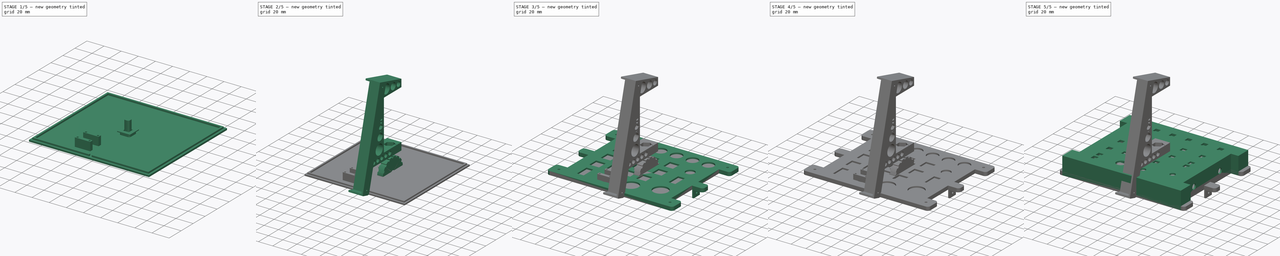
[diagram: build sequence overview — one tinted view per stage of 5, left to right]
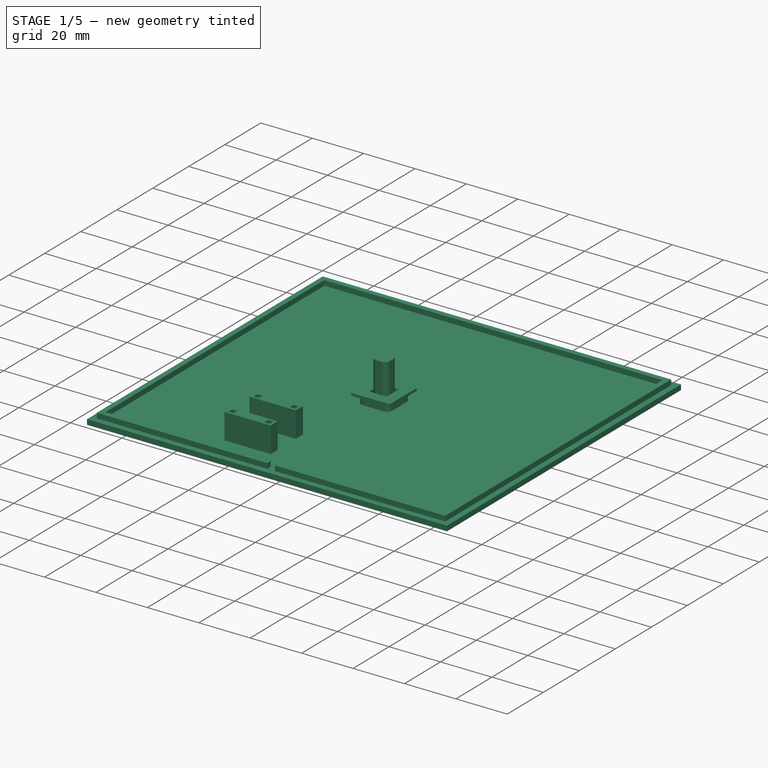
[diagram: stage 1 of 5 — iso view after this stage's code; geometry added in this stage tinted green]
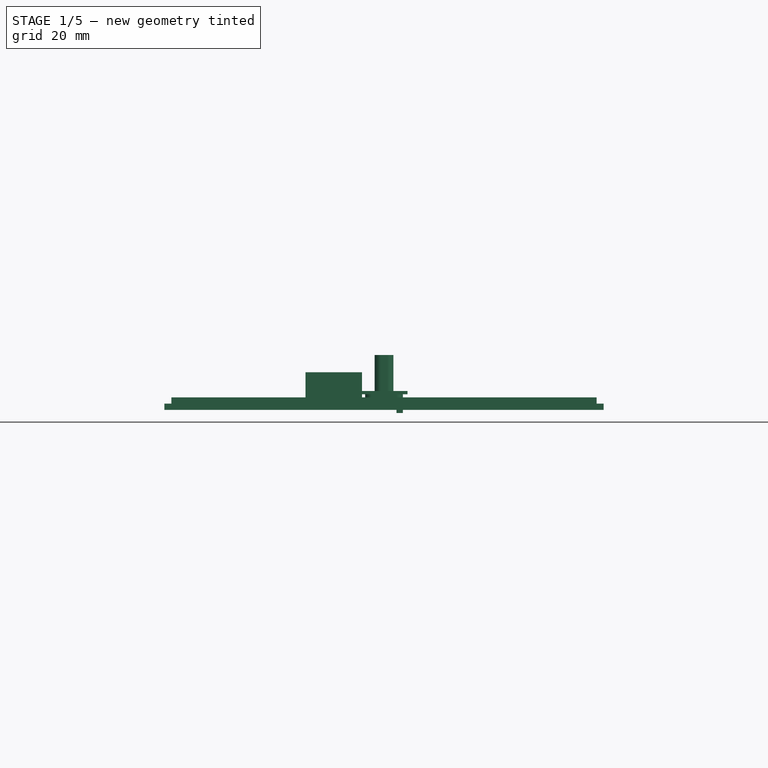
[diagram: stage 1 of 5 — front view after this stage's code; geometry added in this stage tinted green]
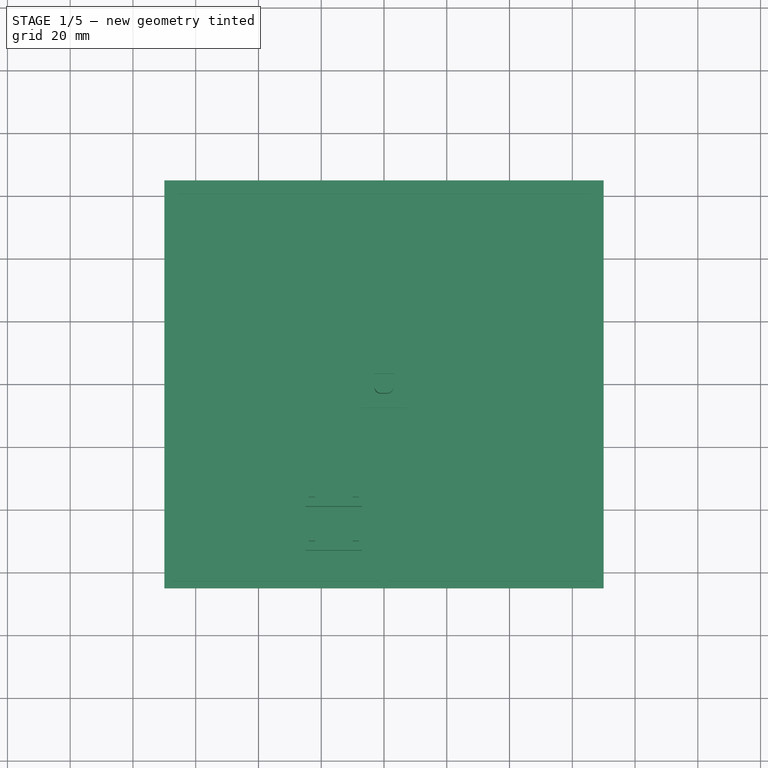
[diagram: stage 1 of 5 — top view after this stage's code; geometry added in this stage tinted green]
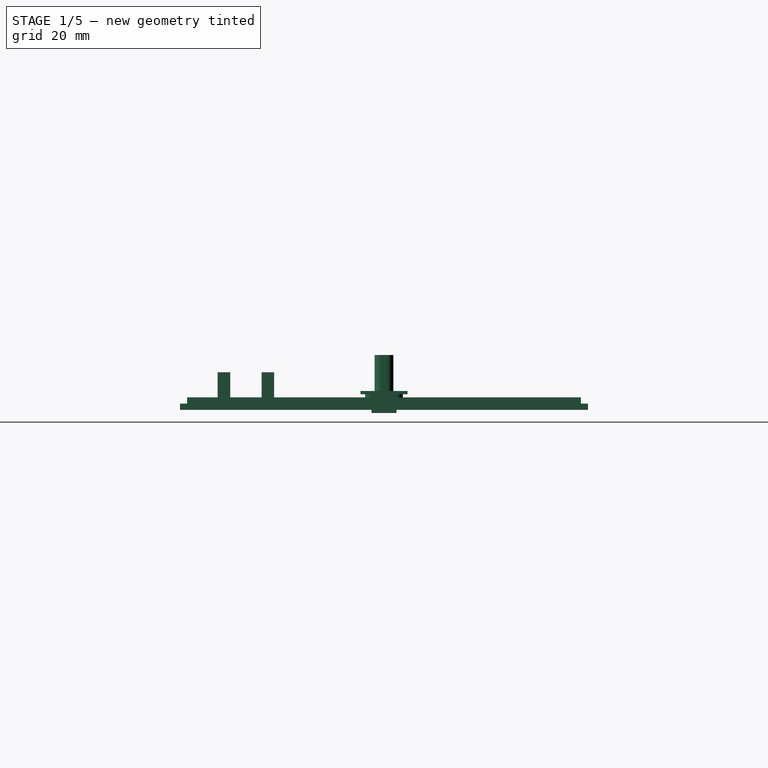
[diagram: stage 1 of 5 — right view after this stage's code; geometry added in this stage tinted green]
FCSTD DOCUMENT  (FreeCAD 0.20R29410 (Git))
Label: ICP.v2
License: All rights reserved
LicenseURL: http://en.wikipedia.org/wiki/All_rights_reserved
objects: Sketcher::SketchObject×60, PartDesign::Pocket×38, PartDesign::Pad×22, PartDesign::Body×14, PartDesign::Fillet×5, Spreadsheet::Sheet×1, Image::ImagePlane×1
note: 204 computed .brp shape members not serialized (recipe doc carries the construction recipe); baked Part::Feature solids carry a one-line shape summary decoded from their .brp

FEATURE [PartDesign::Body] Body015  label="Button.Round.Small"
  Group = -> [Sketch075,Pad042,Sketch076,Pocket027,Sketch077,Pocket028]
  Origin = -> Origin015
  Placement = pos=(47.93,21.99,30.34) rot=(0,1,0;3.14159rad)
  Tip = -> Pocket028
FEATURE [Sketcher::SketchObject] Sketch078
  FullyConstrained = true
  MapMode = 5
  Support = -> [XY_Plane016]
  expr: Constraints[10] = Spreadsheet.Length - 20
  expr: Constraints[11] = Spreadsheet.Width
  sketch-geometry (5):
    g0: LineSegment StartX=-70 StartY=65 StartZ=0 EndX=-70 EndY=-65 EndZ=0
    g1: LineSegment StartX=-70 StartY=-65 StartZ=0 EndX=70 EndY=-65 EndZ=0
    g2: LineSegment StartX=70 StartY=-65 StartZ=0 EndX=70 EndY=65 EndZ=0
    g3: LineSegment StartX=70 StartY=65 StartZ=0 EndX=-70 EndY=65 EndZ=0
    g4: GeomPoint X=0 Y=0 Z=0
  constraints (12):
    c: Coincident(g0,g1)
    c: Coincident(g1,g2)
    c: Coincident(g2,g3)
    c: Coincident(g3,g0)
    c: Horizontal(g1)
    c: Horizontal(g3)
    c: Vertical(g0)
    c: Vertical(g2)
    c: Symmetric(g1,g0,g4)
    c: Coincident(g4,g-1)
    c: DistanceX(g3,g3) = 140
    c: DistanceY(g0,g0) = 130
FEATURE [PartDesign::Pad] Pad043
  Direction = (0,0,1)
  Length = 2
  Length2 = 10
  Profile = -> Sketch078
  ReferenceAxis = -> Sketch078 [N_Axis]
  Type = 0
  expr: Length = Spreadsheet.Thickness
FEATURE [Sketcher::SketchObject] Sketch079
  FullyConstrained = true
  MapMode = 5
  Placement = pos=(0,0,2) rot=(0,0,1;0rad)
  Support = -> [Pad043]
  expr: Constraints[20] = Spreadsheet.Thickness
  expr: Constraints[21] = Spreadsheet.Thickness
  expr: Constraints[22] = Spreadsheet.Length - 20 - 2 * (Spreadsheet.Thickness + Spreadsheet.Tolerance)
  expr: Constraints[23] = Spreadsheet.Width - 2 * (Spreadsheet.Thickness + Spreadsheet.Tolerance)
  sketch-geometry (10):
    g0: LineSegment StartX=-67.75 StartY=62.75 StartZ=0 EndX=-67.75 EndY=-62.75 EndZ=0
    g1: LineSegment StartX=-67.75 StartY=-62.75 StartZ=0 EndX=67.75 EndY=-62.75 EndZ=0
    g2: LineSegment StartX=67.75 StartY=-62.75 StartZ=0 EndX=67.75 EndY=62.75 EndZ=0
    g3: LineSegment StartX=67.75 StartY=62.75 StartZ=0 EndX=-67.75 EndY=62.75 EndZ=0
    g4: GeomPoint X=0 Y=0 Z=0
    g5: LineSegment StartX=-65.75 StartY=60.75 StartZ=0 EndX=-65.75 EndY=-60.75 EndZ=0
    g6: LineSegment StartX=-65.75 StartY=-60.75 StartZ=0 EndX=65.75 EndY=-60.75 EndZ=0
    g7: LineSegment StartX=65.75 StartY=-60.75 StartZ=0 EndX=65.75 EndY=60.75 EndZ=0
    g8: LineSegment StartX=65.75 StartY=60.75 StartZ=0 EndX=-65.75 EndY=60.75 EndZ=0
    g9: GeomPoint X=0 Y=0 Z=0
  constraints (24):
    c: Coincident(g0,g1)
    c: Coincident(g1,g2)
    c: Coincident(g2,g3)
    c: Coincident(g3,g0)
    c: Horizontal(g1)
    c: Horizontal(g3)
    c: Vertical(g0)
    c: Vertical(g2)
    c: Symmetric(g1,g0,g4)
    c: Coincident(g4,g-1)
    c: Coincident(g5,g6)
    c: Coincident(g6,g7)
    c: Coincident(g7,g8)
    c: Coincident(g8,g5)
    c: Horizontal(g6)
    c: Horizontal(g8)
    c: Vertical(g5)
    c: Vertical(g7)
    c: Symmetric(g6,g5,g9)
    c: Coincident(g9,g4)
    c: DistanceY(g5,g0) = 2
    c: DistanceX(g0,g5) = 2
    c: DistanceX(g1,g1) = 135.5
    c: DistanceY(g2,g2) = 125.5
FEATURE [PartDesign::Pad] Pad044
  BaseFeature = -> Pad043
  Direction = (0,0,1)
  Length = 2
  Length2 = 10
  Profile = -> Sketch079
  ReferenceAxis = -> Sketch079 [N_Axis]
  Type = 0
  expr: Length = Spreadsheet.Thickness
FEATURE [Sketcher::SketchObject] Sketch080
  FullyConstrained = true
  MapMode = 5
  Placement = pos=(0,-62.75,0) rot=(1,0,0;1.5708rad)
  Support = -> [Pad044]
  expr: Constraints[12] = Spreadsheet.Thickness
  sketch-geometry (5):
    g0: LineSegment StartX=-1.5 StartY=5 StartZ=0 EndX=-1.5 EndY=2 EndZ=0
    g1: LineSegment StartX=-1.5 StartY=2 StartZ=0 EndX=1.5 EndY=2 EndZ=0
    g2: LineSegment StartX=1.5 StartY=2 StartZ=0 EndX=1.5 EndY=5 EndZ=0
    g3: LineSegment StartX=1.5 StartY=5 StartZ=0 EndX=-1.5 EndY=5 EndZ=0
    g4: GeomPoint X=0 Y=3.5 Z=0
  constraints (13):
    c: Coincident(g0,g1)
    c: Coincident(g1,g2)
    c: Coincident(g2,g3)
    c: Coincident(g3,g0)
    c: Horizontal(g1)
    c: Horizontal(g3)
    c: Vertical(g0)
    c: Vertical(g2)
    c: Symmetric(g1,g0,g4)
    c: PointOnObject(g4,g-2)
    c: Equal(g3,g0)
    c: DistanceX(g3,g3) = 3
    c: DistanceY(g-1,g1) = 2
FEATURE [PartDesign::Pocket] Pocket029
  BaseFeature = -> Pad044
  Direction = (0,1,-2e-16)
  Length = 2
  Length2 = 5
  Profile = -> Sketch080
  ReferenceAxis = -> Sketch080 [N_Axis]
  Type = 0
  expr: Length = Spreadsheet.Thickness
FEATURE [PartDesign::Body] Body018  label="Mount.Center"
  Group = -> [Sketch084,Pad046,Sketch085,Pocket037,Sketch086,Pocket038,Sketch087,Pocket039,Sketch088,Pocket040]
  Origin = -> Origin018
  Placement = pos=(49.98,-50.4653,-65.5448) rot=(-1,0,0;1.309rad)
  Tip = -> Pocket040
FEATURE [Sketcher::SketchObject] Sketch089
  FullyConstrained = true
  MapMode = 5
  Placement = pos=(0,0,2) rot=(0,0,1;0rad)
  Support = -> [Pocket029]
  sketch-geometry (39):
    g0: LineSegment StartX=-25 StartY=-35 StartZ=0 EndX=-7 EndY=-35 EndZ=0
    g1: LineSegment StartX=-7 StartY=-35 StartZ=0 EndX=-7 EndY=-39 EndZ=0
    g2: LineSegment StartX=-7 StartY=-39 StartZ=0 EndX=-25 EndY=-39 EndZ=0
    g3: LineSegment StartX=-25 StartY=-39 StartZ=0 EndX=-25 EndY=-35 EndZ=0
    g4: LineSegment StartX=-25 StartY=-49 StartZ=0 EndX=-7 EndY=-49 EndZ=0
    g5: LineSegment StartX=-7 StartY=-49 StartZ=0 EndX=-7 EndY=-53 EndZ=0
    g6: LineSegment StartX=-7 StartY=-53 StartZ=0 EndX=-25 EndY=-53 EndZ=0
    g7: LineSegment StartX=-25 StartY=-53 StartZ=0 EndX=-25 EndY=-49 EndZ=0
    g8: LineSegment StartX=0 StartY=0 StartZ=0 EndX=0 EndY=-44 EndZ=0
    g9: LineSegment StartX=0 StartY=-44 StartZ=0 EndX=-16 EndY=-44 EndZ=0
    g10: LineSegment StartX=-23 StartY=-37 StartZ=0 EndX=-9 EndY=-37 EndZ=0
    g11: LineSegment StartX=-9 StartY=-37 StartZ=0 EndX=-9 EndY=-51 EndZ=0
    g12: LineSegment StartX=-9 StartY=-51 StartZ=0 EndX=-23 EndY=-51 EndZ=0
    g13: LineSegment StartX=-23 StartY=-51 StartZ=0 EndX=-23 EndY=-37 EndZ=0
    g14: LineSegment StartX=-24 StartY=-36 StartZ=0 EndX=-24 EndY=-38 EndZ=0
    g15: LineSegment StartX=-24 StartY=-38 StartZ=0 EndX=-22 EndY=-38 EndZ=0
    g16: LineSegment StartX=-22 StartY=-38 StartZ=0 EndX=-22 EndY=-36 EndZ=0
    g17: LineSegment StartX=-22 StartY=-36 StartZ=0 EndX=-24 EndY=-36 EndZ=0
    g18: GeomPoint X=-23 Y=-37 Z=0
    g19: LineSegment StartX=-10 StartY=-36 StartZ=0 EndX=-10 EndY=-38 EndZ=0
    g20: LineSegment StartX=-10 StartY=-38 StartZ=0 EndX=-8 EndY=-38 EndZ=0
    g21: LineSegment StartX=-8 StartY=-38 StartZ=0 EndX=-8 EndY=-36 EndZ=0
    g22: LineSegment StartX=-8 StartY=-36 StartZ=0 EndX=-10 EndY=-36 EndZ=0
    g23: GeomPoint X=-9 Y=-37 Z=0
    g24: LineSegment StartX=-24 StartY=-50 StartZ=0 EndX=-24 EndY=-52 EndZ=0
    g25: LineSegment StartX=-24 StartY=-52 StartZ=0 EndX=-22 EndY=-52 EndZ=0
    g26: LineSegment StartX=-22 StartY=-52 StartZ=0 EndX=-22 EndY=-50 EndZ=0
    g27: LineSegment StartX=-22 StartY=-50 StartZ=0 EndX=-24 EndY=-50 EndZ=0
    g28: GeomPoint X=-23 Y=-51 Z=0
    g29: LineSegment StartX=-10 StartY=-50 StartZ=0 EndX=-10 EndY=-52 EndZ=0
    g30: LineSegment StartX=-10 StartY=-52 StartZ=0 EndX=-8 EndY=-52 EndZ=0
    g31: LineSegment StartX=-8 StartY=-52 StartZ=0 EndX=-8 EndY=-50 EndZ=0
    g32: LineSegment StartX=-8 StartY=-50 StartZ=0 EndX=-10 EndY=-50 EndZ=0
    g33: GeomPoint X=-9 Y=-51 Z=0
    g34: LineSegment StartX=-24 StartY=-36 StartZ=0 EndX=-25 EndY=-36 EndZ=0
    g35: LineSegment StartX=-8 StartY=-36 StartZ=0 EndX=-7 EndY=-36 EndZ=0
    g36: LineSegment StartX=-22 StartY=-36 StartZ=0 EndX=-22 EndY=-35 EndZ=0
    g37: LineSegment StartX=-22 StartY=-50 StartZ=0 EndX=-22 EndY=-49 EndZ=0
    g38: LineSegment StartX=-22 StartY=-52 StartZ=0 EndX=-22 EndY=-53 EndZ=0
  constraints (104):
    c: Coincident(g0,g1)
    c: Coincident(g1,g2)
    c: Coincident(g2,g3)
    c: Coincident(g3,g0)
    c: Horizontal(g0)
    c: Horizontal(g2)
    c: Vertical(g1)
    c: Vertical(g3)
    c: Coincident(g4,g5)
    c: Coincident(g5,g6)
    c: Coincident(g6,g7)
    c: Coincident(g7,g4)
    c: Horizontal(g4)
    c: Horizontal(g6)
    c: Vertical(g5)
    c: Vertical(g7)
    c: Coincident(g8,g-1)
    c: Vertical(g8)
    c: Coincident(g9,g8)
    c: Horizontal(g9)
    c: DistanceY(g8,g8) = 44
    c: DistanceX(g9,g9) = 16
    c: Coincident(g10,g11)
    c: Coincident(g11,g12)
    c: Coincident(g12,g13)
    c: Coincident(g13,g10)
    c: Horizontal(g10)
    c: Horizontal(g12)
    c: Vertical(g11)
    c: Vertical(g13)
    c: Coincident(g14,g15)
    c: Coincident(g15,g16)
    c: Coincident(g16,g17)
    c: Coincident(g17,g14)
    c: Horizontal(g15)
    c: Horizontal(g17)
    c: Vertical(g14)
    c: Vertical(g16)
    c: Symmetric(g15,g14,g18)
    c: Coincident(g18,g10)
    c: Coincident(g19,g20)
    c: Coincident(g20,g21)
    c: Coincident(g21,g22)
    c: Coincident(g22,g19)
    c: Horizontal(g20)
    c: Horizontal(g22)
    c: Vertical(g19)
    c: Vertical(g21)
    c: Symmetric(g20,g19,g23)
    c: Coincident(g23,g10)
    c: Coincident(g24,g25)
    c: Coincident(g25,g26)
    c: Coincident(g26,g27)
    c: Coincident(g27,g24)
    c: Horizontal(g25)
    c: Horizontal(g27)
    c: Vertical(g24)
    c: Vertical(g26)
    c: Symmetric(g25,g24,g28)
    c: Coincident(g28,g12)
    c: Coincident(g29,g30)
    c: Coincident(g30,g31)
    c: Coincident(g31,g32)
    c: Coincident(g32,g29)
    c: Horizontal(g30)
    c: Horizontal(g32)
    c: Vertical(g29)
    c: Vertical(g31)
    c: Symmetric(g30,g29,g33)
    c: Coincident(g33,g11)
    c: Equal(g24,g27)
    c: Equal(g27,g14)
    c: Equal(g14,g17)
    c: Equal(g17,g19)
    c: Equal(g19,g22)
    c: Equal(g22,g29)
    c: Equal(g29,g32)
    c: DistanceX(g0,g0) = 18
    c: DistanceX(g10,g10) = 14
    c: Equal(g13,g10)
    c: Symmetric(g10,g12,g9)
    c: DistanceX(g15,g15) = 2
    c: Coincident(g34,g14)
    c: PointOnObject(g34,g3)
    c: Horizontal(g34)
    c: Coincident(g35,g21)
    c: PointOnObject(g35,g1)
    c: Horizontal(g35)
    c: Coincident(g36,g16)
    c: PointOnObject(g36,g0)
    c: Vertical(g36)
    c: Equal(g34,g36)
    c: Equal(g36,g35)
    c: Coincident(g37,g26)
    c: PointOnObject(g37,g4)
    c: Vertical(g37)
    c: Coincident(g38,g25)
    c: PointOnObject(g38,g6)
    c: Vertical(g38)
    c: Equal(g38,g37)
    c: Equal(g34,g37)
    c: Vertical(g2,g4)
    c: Vertical(g1,g4)
    c: Equal(g3,g7)
FEATURE [PartDesign::Pad] Pad047
  BaseFeature = -> Pocket029
  Direction = (0,0,1)
  Length = 10
  Length2 = 10
  Profile = -> Sketch089
  ReferenceAxis = -> Sketch089 [N_Axis]
  Type = 0
FEATURE [PartDesign::Body] Body016  label="Cap"
  Group = -> [Sketch078,Pad043,Sketch079,Pad044,Sketch080,Pocket029,Sketch089,Pad047]
  Origin = -> Origin016
  Placement = pos=(0,0,-1.98) rot=(0,0,1;0rad)
  Tip = -> Pad047
FEATURE [Sketcher::SketchObject] Sketch090
  FullyConstrained = true
  MapMode = 5
  Support = -> [XY_Plane019]
  sketch-geometry (5):
    g0: LineSegment StartX=-4.5 StartY=4.5 StartZ=0 EndX=-4.5 EndY=-4.5 EndZ=0
    g1: LineSegment StartX=-4.5 StartY=-4.5 StartZ=0 EndX=4.5 EndY=-4.5 EndZ=0
    g2: LineSegment StartX=4.5 StartY=-4.5 StartZ=0 EndX=4.5 EndY=4.5 EndZ=0
    g3: LineSegment StartX=4.5 StartY=4.5 StartZ=0 EndX=-4.5 EndY=4.5 EndZ=0
    g4: GeomPoint X=0 Y=0 Z=0
  constraints (12):
    c: Coincident(g0,g1)
    c: Coincident(g1,g2)
    c: Coincident(g2,g3)
    c: Coincident(g3,g0)
    c: Horizontal(g1)
    c: Horizontal(g3)
    c: Vertical(g0)
    c: Vertical(g2)
    c: Symmetric(g1,g0,g4)
    c: Coincident(g4,g-1)
    c: DistanceX(g3,g3) = 9
    c: Equal(g0,g3)
FEATURE [PartDesign::Pad] Pad048
  Direction = (0,0,1)
  Length = 17.5
  Length2 = 10
  Profile = -> Sketch090
  ReferenceAxis = -> Sketch090 [N_Axis]
  Type = 0
FEATURE [Sketcher::SketchObject] Sketch091
  FullyConstrained = true
  MapMode = 5
  Placement = pos=(0,0,0) rot=(1,0,0;3.14159rad)
  Support = -> [Pad048]
  sketch-geometry (5):
    g0: LineSegment StartX=-2 StartY=2 StartZ=0 EndX=-2 EndY=-2 EndZ=0
    g1: LineSegment StartX=-2 StartY=-2 StartZ=0 EndX=2 EndY=-2 EndZ=0
    g2: LineSegment StartX=2 StartY=-2 StartZ=0 EndX=2 EndY=2 EndZ=0
    g3: LineSegment StartX=2 StartY=2 StartZ=0 EndX=-2 EndY=2 EndZ=0
    g4: GeomPoint X=0 Y=0 Z=0
  constraints (12):
    c: Coincident(g0,g1)
    c: Coincident(g1,g2)
    c: Coincident(g2,g3)
    c: Coincident(g3,g0)
    c: Horizontal(g1)
    c: Horizontal(g3)
    c: Vertical(g0)
    c: Vertical(g2)
    c: Symmetric(g1,g0,g4)
    c: Coincident(g4,g-1)
    c: Equal(g0,g3)
    c: DistanceX(g3,g3) = 4
FEATURE [PartDesign::Pocket] Pocket041
  BaseFeature = -> Pad048
  Direction = (0,0,1)
  Length = 15.5
  Length2 = 5
  Profile = -> Sketch091
  ReferenceAxis = -> Sketch091 [N_Axis]
  Type = 0
FEATURE [Sketcher::SketchObject] Sketch092
  FullyConstrained = true
  MapMode = 5
  Support = -> [XY_Plane020]
  expr: Constraints[11] = 2 * (Spreadsheet.ButtonWidth + 6 * Spreadsheet.Tolerance)
  sketch-geometry (5):
    g0: LineSegment StartX=-7.5 StartY=7.5 StartZ=0 EndX=-7.5 EndY=-7.5 EndZ=0
    g1: LineSegment StartX=-7.5 StartY=-7.5 StartZ=0 EndX=7.5 EndY=-7.5 EndZ=0
    g2: LineSegment StartX=7.5 StartY=-7.5 StartZ=0 EndX=7.5 EndY=7.5 EndZ=0
    g3: LineSegment StartX=7.5 StartY=7.5 StartZ=0 EndX=-7.5 EndY=7.5 EndZ=0
    g4: GeomPoint X=0 Y=0 Z=0
  constraints (12):
    c: Coincident(g0,g1)
    c: Coincident(g1,g2)
    c: Coincident(g2,g3)
    c: Coincident(g3,g0)
    c: Horizontal(g1)
    c: Horizontal(g3)
    c: Vertical(g0)
    c: Vertical(g2)
    c: Symmetric(g1,g0,g4)
    c: Coincident(g4,g-1)
    c: Equal(g0,g3)
    c: DistanceX(g1,g1) = 15
FEATURE [PartDesign::Pad] Pad049
  Direction = (0,0,1)
  Length = 6
  Length2 = 10
  Profile = -> Sketch092
  ReferenceAxis = -> Sketch092 [N_Axis]
  Type = 0
FEATURE [Sketcher::SketchObject] Sketch093
  FullyConstrained = true
  MapMode = 5
  Placement = pos=(0,0,6) rot=(0,0,1;0rad)
  Support = -> [Pad049]
  expr: Constraints[11] = Spreadsheet.ButtonWidth + 3 * Spreadsheet.Tolerance
  sketch-geometry (5):
    g0: LineSegment StartX=-3.375 StartY=3.375 StartZ=0 EndX=-3.375 EndY=-3.375 EndZ=0
    g1: LineSegment StartX=-3.375 StartY=-3.375 StartZ=0 EndX=3.375 EndY=-3.375 EndZ=0
    g2: LineSegment StartX=3.375 StartY=-3.375 StartZ=0 EndX=3.375 EndY=3.375 EndZ=0
    g3: LineSegment StartX=3.375 StartY=3.375 StartZ=0 EndX=-3.375 EndY=3.375 EndZ=0
    g4: GeomPoint X=0 Y=0 Z=0
  constraints (12):
    c: Coincident(g0,g1)
    c: Coincident(g1,g2)
    c: Coincident(g2,g3)
    c: Coincident(g3,g0)
    c: Horizontal(g1)
    c: Horizontal(g3)
    c: Vertical(g0)
    c: Vertical(g2)
    c: Symmetric(g1,g0,g4)
    c: Coincident(g4,g-1)
    c: Equal(g0,g3)
    c: DistanceX(g1,g1) = 6.75
FEATURE [PartDesign::Pocket] Pocket042
  BaseFeature = -> Pad049
  Direction = (0,0,-1)
  Length = 3
  Length2 = 5
  Profile = -> Sketch093
  ReferenceAxis = -> Sketch093 [N_Axis]
  Type = 0
  expr: Length = 3
FEATURE [Sketcher::SketchObject] Sketch094
  FullyConstrained = true
  MapMode = 5
  Placement = pos=(0,0,0) rot=(1,0,0;3.14159rad)
  Support = -> [Pocket042]
  expr: Constraints[11] = 2 * (Spreadsheet.ButtonWidth + 6 * Spreadsheet.Tolerance)
  expr: Constraints[22] = 2 * Spreadsheet.ButtonWidth
  sketch-geometry (10):
    g0: LineSegment StartX=-7.5 StartY=7.5 StartZ=0 EndX=-7.5 EndY=-7.5 EndZ=0
    g1: LineSegment StartX=-7.5 StartY=-7.5 StartZ=0 EndX=7.5 EndY=-7.5 EndZ=0
    g2: LineSegment StartX=7.5 StartY=-7.5 StartZ=0 EndX=7.5 EndY=7.5 EndZ=0
    g3: LineSegment StartX=7.5 StartY=7.5 StartZ=0 EndX=-7.5 EndY=7.5 EndZ=0
    g4: GeomPoint X=0 Y=0 Z=0
    g5: LineSegment StartX=-6 StartY=6 StartZ=0 EndX=-6 EndY=-6 EndZ=0
    g6: LineSegment StartX=-6 StartY=-6 StartZ=0 EndX=6 EndY=-6 EndZ=0
    g7: LineSegment StartX=6 StartY=-6 StartZ=0 EndX=6 EndY=6 EndZ=0
    g8: LineSegment StartX=6 StartY=6 StartZ=0 EndX=-6 EndY=6 EndZ=0
    g9: GeomPoint X=0 Y=0 Z=0
  constraints (24):
    c: Coincident(g0,g1)
    c: Coincident(g1,g2)
    c: Coincident(g2,g3)
    c: Coincident(g3,g0)
    c: Horizontal(g1)
    c: Horizontal(g3)
    c: Vertical(g0)
    c: Vertical(g2)
    c: Symmetric(g1,g0,g4)
    c: Coincident(g4,g-1)
    c: Equal(g0,g3)
    c: DistanceX(g1,g1) = 15
    c: Coincident(g5,g6)
    c: Coincident(g6,g7)
    c: Coincident(g7,g8)
    c: Coincident(g8,g5)
    c: Horizontal(g6)
    c: Horizontal(g8)
    c: Vertical(g5)
    c: Vertical(g7)
    c: Symmetric(g6,g5,g9)
    c: Coincident(g9,g4)
    c: DistanceX(g6,g6) = 12
    c: Equal(g5,g8)
FEATURE [PartDesign::Pocket] Pocket043
  BaseFeature = -> Pocket042
  Direction = (0,0,1)
  Length = 5
  Length2 = 5
  Profile = -> Sketch094
  ReferenceAxis = -> Sketch094 [N_Axis]
  Type = 0
FEATURE [PartDesign::Fillet] Fillet004
  Base = -> Pocket043 [Edge22,Edge21,Edge24,Edge26]
  BaseFeature = -> Pocket043
  Radius = 2
  SupportTransform = false
  UseAllEdges = false
  expr: Radius = Spreadsheet.Thickness
FEATURE [Sketcher::SketchObject] Sketch095
  ExternalGeometry = -> [Fillet004]
  FullyConstrained = true
  MapMode = 5
  Placement = pos=(0,0,0) rot=(1,0,0;3.14159rad)
  Support = -> [Fillet004]
  sketch-geometry (4):
    g0: LineSegment StartX=4 StartY=4 StartZ=0 EndX=6 EndY=4 EndZ=0
    g1: LineSegment StartX=6 StartY=4 StartZ=0 EndX=6 EndY=-4 EndZ=0
    g2: LineSegment StartX=6 StartY=-4 StartZ=0 EndX=4 EndY=-4 EndZ=0
    g3: LineSegment StartX=4 StartY=-4 StartZ=0 EndX=4 EndY=4 EndZ=0
  constraints (10):
    c: Coincident(g0,g1)
    c: Coincident(g1,g2)
    c: Coincident(g2,g3)
    c: Coincident(g3,g0)
    c: Horizontal(g0)
    c: Horizontal(g2)
    c: Vertical(g3)
    c: Coincident(g0,g-3)
    c: Coincident(g1,g-3)
    c: DistanceX(g0,g0) = 2
FEATURE [PartDesign::Pad] Pad050
  BaseFeature = -> Fillet004
  Direction = (0,0,-1)
  Length = 1
  Length2 = 10
  Profile = -> Sketch095
  ReferenceAxis = -> Sketch095 [N_Axis]
  Type = 0
FEATURE [PartDesign::Body] Body020  label="Button.Square.Edge"
  Group = -> [Sketch092,Pad049,Sketch093,Pocket042,Sketch094,Pocket043,Fillet004,Sketch095,Pad050]
  Origin = -> Origin020
  Placement = pos=(20.9,2.48,30.42) rot=(1,0,0;3.14159rad)
  Tip = -> Pad050
FEATURE [Sketcher::SketchObject] Sketch096
  FullyConstrained = true
  MapMode = 5
  Placement = pos=(0,0,17.5) rot=(0,0,1;0rad)
  Support = -> [Pocket041]
  sketch-geometry (10):
    g0: LineSegment StartX=-4.5 StartY=4.5 StartZ=0 EndX=-4.5 EndY=-4.5 EndZ=0
    g1: LineSegment StartX=-4.5 StartY=-4.5 StartZ=0 EndX=4.5 EndY=-4.5 EndZ=0
    g2: LineSegment StartX=4.5 StartY=-4.5 StartZ=0 EndX=4.5 EndY=4.5 EndZ=0
    g3: LineSegment StartX=4.5 StartY=4.5 StartZ=0 EndX=-4.5 EndY=4.5 EndZ=0
    g4: GeomPoint X=-1e-16 Y=-3e-16 Z=0
    g5: LineSegment StartX=-3 StartY=3 StartZ=0 EndX=-3 EndY=-3 EndZ=0
    g6: LineSegment StartX=-3 StartY=-3 StartZ=0 EndX=3 EndY=-3 EndZ=0
    g7: LineSegment StartX=3 StartY=-3 StartZ=0 EndX=3 EndY=3 EndZ=0
    g8: LineSegment StartX=3 StartY=3 StartZ=0 EndX=-3 EndY=3 EndZ=0
    g9: GeomPoint X=-1e-16 Y=-3e-16 Z=0
  constraints (24):
    c: Coincident(g0,g1)
    c: Coincident(g1,g2)
    c: Coincident(g2,g3)
    c: Coincident(g3,g0)
    c: Horizontal(g1)
    c: Horizontal(g3)
    c: Vertical(g0)
    c: Vertical(g2)
    c: Symmetric(g1,g0,g4)
    c: Coincident(g4,g-1)
    c: Coincident(g5,g6)
    c: Coincident(g6,g7)
    c: Coincident(g7,g8)
    c: Coincident(g8,g5)
    c: Horizontal(g6)
    c: Horizontal(g8)
    c: Vertical(g5)
    c: Vertical(g7)
    c: Symmetric(g6,g5,g9)
    c: Coincident(g9,g4)
    c: Equal(g0,g3)
    c: DistanceX(g1,g1) = 9
    c: Equal(g5,g8)
    c: DistanceX(g6,g6) = 6
FEATURE [PartDesign::Pocket] Pocket044
  BaseFeature = -> Pocket041
  Direction = (0,0,-1)
  Length = 16.5
  Length2 = 5
  Profile = -> Sketch096
  ReferenceAxis = -> Sketch096 [N_Axis]
  Type = 0
FEATURE [PartDesign::Fillet] Fillet005
  Base = -> Pocket044 [Edge29,Edge34,Edge32,Edge30,Edge12,Edge20,Edge4,Edge2]
  BaseFeature = -> Pocket044
  Radius = 2
  SupportTransform = false
  UseAllEdges = false
FEATURE [PartDesign::Body] Body019  label="Stick"
  Group = -> [Sketch090,Pad048,Sketch091,Pocket041,Sketch096,Pocket044,Fillet005]
  Origin = -> Origin019
  Tip = -> Fillet005
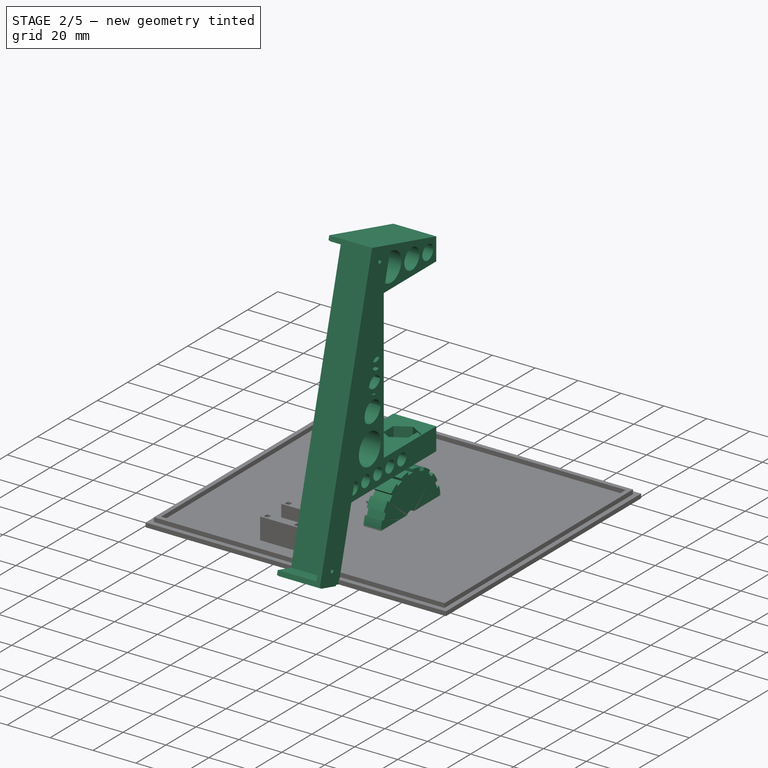
[diagram: stage 2 of 5 — iso view after this stage's code; geometry added in this stage tinted green]
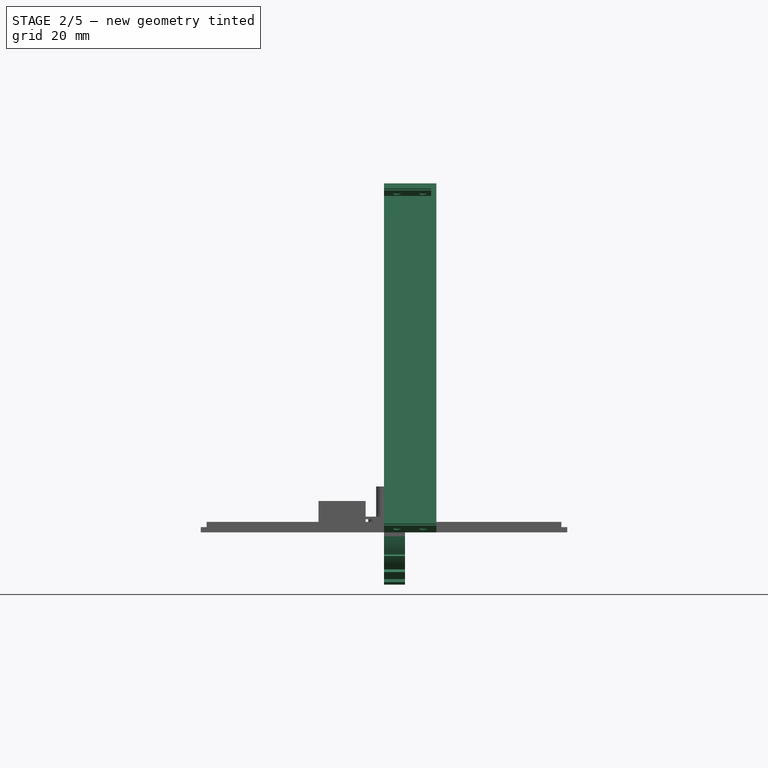
[diagram: stage 2 of 5 — front view after this stage's code; geometry added in this stage tinted green]
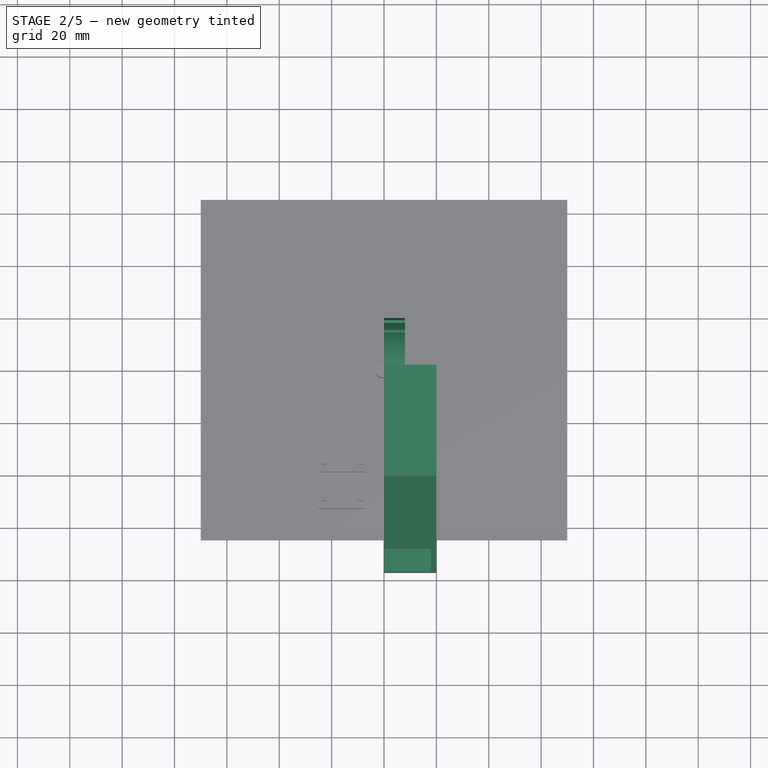
[diagram: stage 2 of 5 — top view after this stage's code; geometry added in this stage tinted green]
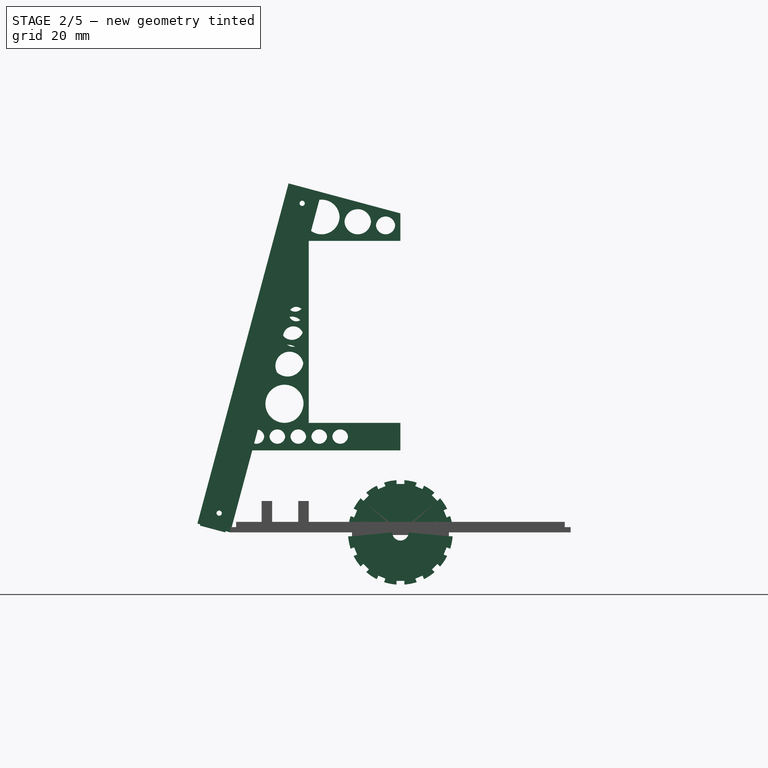
[diagram: stage 2 of 5 — right view after this stage's code; geometry added in this stage tinted green]
FEATURE [Sketcher::SketchObject] Sketch035  label="Mount.Pad.Sketch"
  FullyConstrained = true
  MapMode = 5
  Placement = pos=(0,0,0) rot=(0.57735,0.57735,0.57735;2.0944rad)
  Support = -> [YZ_Plane013]
  expr: Constraints[10] = 10
  expr: Constraints[130] = Spreadsheet.Thickness
  expr: Constraints[142] = Spreadsheet.Width + 2 * (Spreadsheet.Thickness + Spreadsheet.Tolerance)
  expr: Constraints[20] = Spreadsheet.Height / 2
  expr: Constraints[27] = Spreadsheet.TableWidth / 2
  expr: Constraints[38] = Spreadsheet.Thickness
  expr: Constraints[39] = Spreadsheet.Thickness
  expr: Constraints[41] = Spreadsheet.Thickness
  expr: Constraints[64] = Spreadsheet.Thickness
  expr: Constraints[65] = Spreadsheet.Thickness
  expr: Constraints[66] = Spreadsheet.Thickness
  expr: Constraints[67] = 20
  expr: Constraints[7] = Spreadsheet.TableWidth
  sketch-geometry (42):
    g0: LineSegment StartX=-42.7125 StartY=133.282 StartZ=0 EndX=0 EndY=121.837 EndZ=0
    g1: LineSegment StartX=0 StartY=121.837 StartZ=0 EndX=0 EndY=111.837 EndZ=0
    g2: LineSegment StartX=0 StartY=111.837 StartZ=0 EndX=-35 EndY=111.837 EndZ=0
    g3: LineSegment StartX=-35 StartY=111.837 StartZ=0 EndX=-35 EndY=41.8369 EndZ=0
    g4: LineSegment StartX=-35 StartY=41.8369 StartZ=0 EndX=0 EndY=41.8369 EndZ=0
    g5: LineSegment StartX=-77.5236 StartY=3.36465 StartZ=0 EndX=-42.7125 EndY=133.282 EndZ=0
    g6: LineSegment StartX=0 StartY=41.8369 StartZ=0 EndX=0 EndY=31.8369 EndZ=0
    g7: LineSegment StartX=0 StartY=31.8369 StartZ=0 EndX=-56.4359 EndY=31.8369 EndZ=0
    g8: LineSegment StartX=-56.4359 StartY=31.8369 StartZ=0 EndX=-64.9666 EndY=0 EndZ=0
    g9: LineSegment StartX=-30.1554 StartY=129.917 StartZ=0 EndX=-56.4359 EndY=31.8369 EndZ=0
    g10: LineSegment StartX=-77.5236 StartY=3.36465 StartZ=0 EndX=-64.9666 EndY=0 EndZ=0
    g11: LineSegment StartX=-30.6731 StartY=127.985 StartZ=0 EndX=0 EndY=119.766 EndZ=0
    g12: LineSegment StartX=0 StartY=113.837 StartZ=0 EndX=-34.4641 EndY=113.837 EndZ=0
    g13: LineSegment StartX=-2 StartY=111.837 StartZ=0 EndX=-2 EndY=122.373 EndZ=0
    g14: Circle CenterX=-16.2817 CenterY=118.894 CenterZ=0 NormalX=0 NormalY=0 NormalZ=1 AngleXU=0 Radius=5.05687
    g15: Circle CenterX=-5.65826 CenterY=117.495 CenterZ=0 NormalX=0 NormalY=0 NormalZ=1 AngleXU=0 Radius=3.65826
    g16: LineSegment StartX=-11.2681 StartY=118.234 StartZ=0 EndX=-9.28523 EndY=117.973 EndZ=0
    g17: LineSegment StartX=-20 StartY=41.8369 StartZ=0 EndX=-20 EndY=31.8369 EndZ=0
    g18: LineSegment StartX=-20 StartY=39.8369 StartZ=0 EndX=-54.2923 EndY=39.8369 EndZ=0
    g19: LineSegment StartX=-20 StartY=33.8369 StartZ=0 EndX=-55.9 EndY=33.8369 EndZ=0
    g20: LineSegment StartX=-35 StartY=41.8369 StartZ=0 EndX=-53.7564 EndY=41.8369 EndZ=0
    g21: LineSegment StartX=-37 StartY=41.8369 StartZ=0 EndX=-37 EndY=104.373 EndZ=0
    g22: Circle CenterX=-47 CenterY=36.8369 CenterZ=0 NormalX=0 NormalY=0 NormalZ=1 AngleXU=0 Radius=3
    g23: Circle CenterX=-39 CenterY=36.8369 CenterZ=0 NormalX=0 NormalY=0 NormalZ=1 AngleXU=0 Radius=3
    g24: Circle CenterX=-31 CenterY=36.8369 CenterZ=0 NormalX=0 NormalY=0 NormalZ=1 AngleXU=0 Radius=3
    g25: Circle CenterX=-23 CenterY=36.8369 CenterZ=0 NormalX=0 NormalY=0 NormalZ=1 AngleXU=0 Radius=3
    g26: Circle CenterX=-44.2752 CenterY=49.1121 CenterZ=0 NormalX=0 NormalY=0 NormalZ=1 AngleXU=0 Radius=7.27521
    g27: Circle CenterX=-42.3644 CenterY=63.6264 CenterZ=0 NormalX=0 NormalY=0 NormalZ=1 AngleXU=0 Radius=5.36436
    g28: LineSegment StartX=-43.0646 StartY=58.308 StartZ=0 EndX=-43.3256 EndY=56.3251 EndZ=0
    g29: Circle CenterX=-40.8948 CenterY=74.7892 CenterZ=0 NormalX=0 NormalY=0 NormalZ=1 AngleXU=0 Radius=3.89475
    g30: LineSegment StartX=-41.4031 StartY=70.9278 StartZ=0 EndX=-41.6642 EndY=68.9449 EndZ=0
    g31: Circle CenterX=-39.7645 CenterY=83.3744 CenterZ=0 NormalX=0 NormalY=0 NormalZ=1 AngleXU=0 Radius=2.76449
    g32: LineSegment StartX=-40.1253 StartY=80.6335 StartZ=0 EndX=-40.3864 EndY=78.6507 EndZ=0
    g33: ArcOfCircle CenterX=-30.0948 CenterY=120.712 CenterZ=0 NormalX=0 NormalY=0 NormalZ=1 AngleXU=0 Radius=6.87539 StartAngle=4.08765 EndAngle=7.95512
    g34: LineSegment StartX=-23.2782 StartY=119.815 StartZ=0 EndX=-21.2953 EndY=119.554 EndZ=0
    g35: LineSegment StartX=-30.789 StartY=127.553 StartZ=0 EndX=-34.1161 EndY=115.136 EndZ=0
    g36: LineSegment StartX=-26 StartY=36.8369 StartZ=0 EndX=-28 EndY=36.8369 EndZ=0
    g37: LineSegment StartX=-34 StartY=36.8369 StartZ=0 EndX=-36 EndY=36.8369 EndZ=0
    g38: ArcOfCircle CenterX=-55 CenterY=36.8369 CenterZ=0 NormalX=0 NormalY=0 NormalZ=1 AngleXU=0 Radius=3 StartAngle=4.41961 EndAngle=7.62316
    g39: LineSegment StartX=-52 StartY=36.8369 StartZ=0 EndX=-50 EndY=36.8369 EndZ=0
    g40: LineSegment StartX=-54.3137 StartY=39.7573 StartZ=0 EndX=-55.8658 EndY=33.9646 EndZ=0
    g41: LineSegment StartX=-44 StartY=36.8369 StartZ=0 EndX=-42 EndY=36.8369 EndZ=0
  constraints (144):
    c: Coincident(g0,g1)
    c: Vertical(g1)
    c: Coincident(g1,g2)
    c: Horizontal(g2)
    c: Coincident(g2,g3)
    c: Vertical(g3)
    c: Horizontal(g4)
    c: DistanceY(g3,g3) = 70
    c: Perpendicular(g5,g0)
    c: Coincident(g3,g4)
    c: DistanceY(g1,g1) = 10
    c: Coincident(g4,g6)
    c: Vertical(g6)
    c: Coincident(g6,g7)
    c: Horizontal(g7)
    c: Coincident(g7,g8)
    c: Equal(g6,g1)
    c: PointOnObject(g4,g1)
    c: PointOnObject(g9,g0)
    c: Parallel(g9,g5)
    c: Distance(g0,g9) = 13
    c: PointOnObject(g2,g9)
    c: Coincident(g10,g5)
    c: Perpendicular(g5,g10)
    c: Coincident(g10,g8)
    c: Perpendicular(g10,g8)
    c: Coincident(g7,g9)
    c: DistanceX(g2,g2) = 35
    c: DistanceX(g6,g-1) = 0
    c: DistanceY(g8,g-1) = 0
    c: PointOnObject(g11,g9)
    c: PointOnObject(g11,g1)
    c: PointOnObject(g12,g1)
    c: PointOnObject(g12,g9)
    c: Horizontal(g12)
    c: PointOnObject(g13,g2)
    c: PointOnObject(g13,g0)
    c: Vertical(g13)
    c: DistanceX(g13,g1) = 2
    c: DistanceY(g1,g12) = 2
    c: Parallel(g11,g0)
    c: Distance(g9,g11) = 2
    c: Tangent(g15,g13)
    c: Tangent(g14,g11)
    c: Tangent(g14,g12)
    c: Tangent(g15,g11)
    c: Tangent(g15,g12)
    c: PointOnObject(g16,g15)
    c: Perpendicular(g15,g16)
    c: PointOnObject(g17,g4)
    c: PointOnObject(g17,g7)
    c: Vertical(g17)
    c: PointOnObject(g18,g17)
    c: PointOnObject(g18,g9)
    c: Horizontal(g18)
    c: PointOnObject(g19,g17)
    c: PointOnObject(g19,g9)
    c: Horizontal(g19)
    c: Coincident(g20,g3)
    c: PointOnObject(g20,g9)
    c: Horizontal(g20)
    c: PointOnObject(g21,g20)
    c: PointOnObject(g21,g9)
    c: Vertical(g21)
    c: DistanceX(g21,g3) = 2
    c: DistanceY(g18,g17) = 2
    c: DistanceY(g17,g19) = 2
    c: DistanceX(g17,g6) = 20
    c: Tangent(g22,g19)
    c: Tangent(g23,g19)
    c: Tangent(g22,g18)
    c: Tangent(g23,g18)
    c: Tangent(g24,g18)
    c: Tangent(g24,g19)
    c: Tangent(g25,g19)
    c: Tangent(g25,g18)
    c: Tangent(g25,g17)
    c: Tangent(g26,g20)
    c: Tangent(g9,g26)
    c: Tangent(g26,g21)
    c: Tangent(g27,g9)
    c: Tangent(g27,g21)
    c: PointOnObject(g28,g27)
    c: PointOnObject(g28,g26)
    c: Perpendicular(g26,g28)
    c: Perpendicular(g27,g28)
    c: Tangent(g29,g9)
    c: Tangent(g29,g21)
    c: PointOnObject(g30,g27)
    c: PointOnObject(g30,g29)
    c: Perpendicular(g27,g30)
    c: Perpendicular(g29,g30)
    c: Equal(g28,g30)
    c: Tangent(g31,g9)
    c: Tangent(g31,g21)
    c: PointOnObject(g32,g31)
    c: PointOnObject(g32,g29)
    c: Perpendicular(g31,g32)
    c: Perpendicular(g29,g32)
    c: Equal(g32,g30)
    c: Coincident(g0,g5)
    c: PointOnObject(g16,g14)
    c: Perpendicular(g14,g16)
    c: PointOnObject(g33,g9)
    c: PointOnObject(g33,g9)
    c: Tangent(g33,g11)
    c: Tangent(g33,g12)
    c: PointOnObject(g34,g33)
    c: PointOnObject(g34,g14)
    c: Perpendicular(g33,g34)
    c: Perpendicular(g14,g34)
    c: Equal(g16,g34)
    c: Coincident(g35,g33)
    c: Coincident(g35,g33)
    c: PointOnObject(g36,g25)
    c: PointOnObject(g36,g24)
    c: PointOnObject(g37,g24)
    c: PointOnObject(g37,g23)
    c: Perpendicular(g25,g36)
    c: Perpendicular(g24,g36)
    c: Perpendicular(g24,g37)
    c: Perpendicular(g23,g37)
    c: PointOnObject(g38,g9)
    c: PointOnObject(g38,g9)
    c: Tangent(g38,g18)
    c: Tangent(g38,g19)
    c: PointOnObject(g39,g38)
    c: PointOnObject(g39,g22)
    c: Perpendicular(g38,g39)
    c: Perpendicular(g22,g39)
    c: DistanceX(g39,g39) = 2
    c: Equal(g36,g37)
    c: Equal(g28,g39)
    c: Equal(g34,g39)
    c: Coincident(g40,g38)
    c: Coincident(g40,g38)
    c: PointOnObject(g41,g22)
    c: PointOnObject(g41,g23)
    c: Perpendicular(g23,g41)
    c: Perpendicular(g22,g41)
    c: Equal(g41,g39)
    c: Equal(g37,g39)
    c: Distance(g5,g0) = 134.5
    c: Angle(g-1,g5) = 1.309
FEATURE [PartDesign::Pad] Pad026  label="Mount.Pad"
  Direction = (1,-2e-16,3e-16)
  Length = 20
  Length2 = 10
  Placement = pos=(0,0,0) rot=(0.57735,0.57735,0.57735;2.0944rad)
  Profile = -> Sketch035
  ReferenceAxis = -> Sketch035 [N_Axis]
  Type = 0
  expr: Length = 20
FEATURE [Sketcher::SketchObject] Sketch036  label="Mount.Pocket.Sketch"
  ExternalGeometry = -> [Pad026]
  FullyConstrained = true
  MapMode = 5
  Placement = pos=(-2e-16,0,0) rot=(0.57735,0.57735,-0.57735;4.18879rad)
  Support = -> [Pad026]
  expr: Constraints[10] = Spreadsheet.Thickness
  expr: Constraints[11] = Spreadsheet.Thickness
  expr: Constraints[7] = Spreadsheet.Height / 2 - Spreadsheet.Thickness
  sketch-geometry (4):
    g0: LineSegment StartX=-77.006 StartY=-5.2965 StartZ=0 EndX=-43.2301 EndY=-131.35 EndZ=0
    g1: LineSegment StartX=-43.2301 StartY=-131.35 StartZ=0 EndX=-32.6049 EndY=-128.503 EndZ=0
    g2: LineSegment StartX=-32.6049 StartY=-128.503 StartZ=0 EndX=-66.3808 EndY=-2.44949 EndZ=0
    g3: LineSegment StartX=-66.3808 StartY=-2.44949 StartZ=0 EndX=-77.006 EndY=-5.2965 EndZ=0
  constraints (12):
    c: Coincident(g0,g1)
    c: Coincident(g1,g2)
    c: Coincident(g2,g3)
    c: Coincident(g3,g0)
    c: Perpendicular(g3,g2)
    c: Parallel(g3,g1)
    c: Parallel(g2,g0)
    c: Distance(g3) = 11
    c: PointOnObject(g-4,g0)
    c: PointOnObject(g-3,g0)
    c: Distance(g-4,g0) = 2
    c: Distance(g0,g-3) = 2
FEATURE [PartDesign::Pocket] Pocket030  label="Mount.Pocket"
  BaseFeature = -> Pad026
  Direction = (1,-4e-16,4e-16)
  Length = 18
  Length2 = 5
  Placement = pos=(0,0,0) rot=(0.57735,0.57735,0.57735;2.0944rad)
  Profile = -> Sketch036
  ReferenceAxis = -> Sketch036 [N_Axis]
  Type = 0
  expr: Length = 20 - Spreadsheet.Thickness
FEATURE [Sketcher::SketchObject] Sketch053  label="Mount.Bolt.Pocket.Sketch"
  FullyConstrained = true
  MapMode = 5
  Placement = pos=(-1.17e-14,1.84e-14,41.8369) rot=(0,0,-1;1.5708rad)
  Support = -> [Pocket030]
  expr: Constraints[19] = Spreadsheet.Height / 2
  expr: Constraints[20] = Spreadsheet.Height / 2
  sketch-geometry (7):
    g0: LineSegment StartX=20.5 StartY=13 StartZ=0 EndX=16.75 EndY=19.4952 EndZ=0
    g1: LineSegment StartX=16.75 StartY=19.4952 StartZ=0 EndX=9.25 EndY=19.4952 EndZ=0
    g2: LineSegment StartX=9.25 StartY=19.4952 StartZ=0 EndX=5.5 EndY=13 EndZ=0
    g3: LineSegment StartX=5.5 StartY=13 StartZ=0 EndX=9.25 EndY=6.50481 EndZ=0
    g4: LineSegment StartX=9.25 StartY=6.50481 StartZ=0 EndX=16.75 EndY=6.50481 EndZ=0
    g5: LineSegment StartX=16.75 StartY=6.50481 StartZ=0 EndX=20.5 EndY=13 EndZ=0
    g6: Circle CenterX=13 CenterY=13 CenterZ=0 NormalX=0 NormalY=0 NormalZ=1 AngleXU=0 Radius=7.5
  constraints (17):
    c: Coincident(g0,g1)
    c: Coincident(g1,g2)
    c: Coincident(g2,g3)
    c: Coincident(g3,g4)
    c: Coincident(g4,g5)
    c: Coincident(g5,g0)
    c: Equal(g0, g1-g5) x5
    c: PointOnObject(g0,g6)
    c: PointOnObject(g1,g6)
    c: PointOnObject(g2,g6)
    c: PointOnObject(g3,g6)
    c: PointOnObject(g4,g6)
    c: PointOnObject(g5,g6)
    c: Horizontal(g4)
    c: Diameter(g6) = 15
    c: DistanceY(g-1,g6) = 13
    c: DistanceX(g-1,g6) = 13
FEATURE [PartDesign::Pocket] Pocket031  label="Mount.Bolt.Pocket"
  BaseFeature = -> Pocket030
  Direction = (7e-16,-7e-16,-1)
  Length = 6.5
  Length2 = 5
  Placement = pos=(0,0,0) rot=(0.57735,0.57735,0.57735;2.0944rad)
  Profile = -> Sketch053
  ReferenceAxis = -> Sketch053 [N_Axis]
  Type = 0
FEATURE [Sketcher::SketchObject] Sketch054  label="Mount.BoltShaft.Pocket.Sketch"
  FullyConstrained = true
  MapMode = 5
  Placement = pos=(-2.9e-14,1.66e-14,35.3369) rot=(0,0,-1;1.5708rad)
  Support = -> [Pocket031]
  expr: Constraints[0] = 8 + Spreadsheet.Tolerance
  expr: Constraints[1] = Spreadsheet.Height / 2
  expr: Constraints[2] = Spreadsheet.Height / 2
  sketch-geometry (1):
    g0: Circle CenterX=13 CenterY=13 CenterZ=0 NormalX=0 NormalY=0 NormalZ=1 AngleXU=0 Radius=4.125
  constraints (3):
    c: Diameter(g0) = 8.25
    c: DistanceX(g-1,g0) = 13
    c: DistanceY(g-1,g0) = 13
FEATURE [PartDesign::Pocket] Pocket032  label="Mount.BoltShaft.Pocket"
  BaseFeature = -> Pocket031
  Direction = (1.2e-15,-6e-16,-1)
  Length = 5
  Length2 = 5
  Placement = pos=(0,0,0) rot=(0.57735,0.57735,0.57735;2.0944rad)
  Profile = -> Sketch054
  ReferenceAxis = -> Sketch054 [N_Axis]
  Type = 1
FEATURE [Sketcher::SketchObject] Sketch055  label="Mount.ConnectScrewSide.Pocket.Sketch"
  ExternalGeometry = -> [Pocket032]
  FullyConstrained = true
  MapMode = 5
  Placement = pos=(18,-7.9e-15,7.9e-15) rot=(0.57735,0.57735,-0.57735;4.18879rad)
  Support = -> [Pocket032]
  expr: Constraints[10] = Spreadsheet.Thickness * 2
  expr: Constraints[11] = Spreadsheet.Thickness * 2
  expr: Constraints[1] = Spreadsheet.Thickness
  expr: Constraints[5] = Spreadsheet.Thickness * 2
  expr: Constraints[6] = Spreadsheet.Thickness * 2
  sketch-geometry (4):
    g0: Circle CenterX=-37.5039 CenterY=-125.674 CenterZ=0 NormalX=0 NormalY=0 NormalZ=1 AngleXU=0 Radius=1
    g1: Circle CenterX=-69.2092 CenterY=-7.34847 CenterZ=0 NormalX=0 NormalY=0 NormalZ=1 AngleXU=0 Radius=1
    g2: LineSegment StartX=-37.5039 StartY=-125.674 StartZ=0 EndX=-33.6402 EndY=-124.639 EndZ=0
    g3: LineSegment StartX=-69.2092 StartY=-7.34847 StartZ=0 EndX=-65.3455 EndY=-6.31319 EndZ=0
  constraints (12):
    c: Equal(g1,g0)
    c: Diameter(g0) = 2
    c: Coincident(g2,g0)
    c: PointOnObject(g2,g-3)
    c: Perpendicular(g-3,g2)
    c: Distance(g2) = 4
    c: Distance(g-3,g2) = 4
    c: Coincident(g3,g1)
    c: PointOnObject(g3,g-3)
    c: Perpendicular(g-3,g3)
    c: Distance(g3) = 4
    c: Distance(g3,g-3) = 4
FEATURE [PartDesign::Pocket] Pocket033  label="Mount.ConnectScrewSide.Pocket"
  BaseFeature = -> Pocket032
  Direction = (1,-1e-15,9e-16)
  Length = 5
  Length2 = 5
  Placement = pos=(0,0,0) rot=(0.57735,0.57735,0.57735;2.0944rad)
  Profile = -> Sketch055
  ReferenceAxis = -> Sketch055 [N_Axis]
  Type = 1
FEATURE [Sketcher::SketchObject] Sketch056  label="Mount.ConnectScrewBack.Pocket.Sketch"
  ExternalGeometry = -> [Pocket033]
  FullyConstrained = true
  MapMode = 5
  Placement = pos=(-4.92e-14,-62.5465,16.7593) rot=(0.519988,0.519988,-0.677661;1.95044rad)
  Support = -> [Pocket033]
  expr: Constraints[0] = Spreadsheet.Thickness
  expr: Constraints[4] = Spreadsheet.Thickness * 2
  expr: Constraints[5] = Spreadsheet.Thickness * 2
  sketch-geometry (2):
    g0: Circle CenterX=10.8146 CenterY=4 CenterZ=0 NormalX=0 NormalY=0 NormalZ=1 AngleXU=0 Radius=1
    g1: LineSegment StartX=10.8146 StartY=4 StartZ=0 EndX=14.8146 EndY=4 EndZ=0
  constraints (6):
    c: Diameter(g0) = 2
    c: PointOnObject(g1,g-4)
    c: Horizontal(g1)
    c: Coincident(g0,g1)
    c: DistanceX(g1,g1) = 4
    c: DistanceY(g-4,g1) = 4
FEATURE [PartDesign::Pocket] Pocket034  label="Mount.ConnectScrewBack.Pocket"
  BaseFeature = -> Pocket033
  Direction = (1e-15,0.965926,-0.258819)
  Length = 5
  Length2 = 5
  Placement = pos=(0,0,0) rot=(0.57735,0.57735,0.57735;2.0944rad)
  Profile = -> Sketch056
  ReferenceAxis = -> Sketch056 [N_Axis]
  Type = 1
FEATURE [PartDesign::Body] Body013  label="Mount"
  Group = -> [Sketch035,Pad026,Sketch036,Pocket030,Sketch053,Pocket031,Sketch054,Pocket032,Sketch055,Pocket033,Sketch056,Pocket034,Sketch081,Pocket035]
  Origin = -> Origin013
  Placement = pos=(63.14,-50.4653,-65.5448) rot=(-1,0,0;1.309rad)
  Tip = -> Pocket035
FEATURE [Sketcher::SketchObject] Sketch082
  FullyConstrained = true
  MapMode = 5
  Placement = pos=(0,0,0) rot=(0.57735,0.57735,0.57735;2.0944rad)
  Support = -> [YZ_Plane017]
  expr: Constraints[2] = 6 + Spreadsheet.Tolerance
  sketch-geometry (2):
    g0: Circle CenterX=0 CenterY=0 CenterZ=0 NormalX=0 NormalY=0 NormalZ=1 AngleXU=0 Radius=3.125
    g1: Circle CenterX=0 CenterY=0 CenterZ=0 NormalX=0 NormalY=0 NormalZ=1 AngleXU=0 Radius=20
  constraints (4):
    c: Coincident(g0,g-1)
    c: Coincident(g1,g0)
    c: Diameter(g0) = 6.25
    c: Diameter(g1) = 40
FEATURE [PartDesign::Pad] Pad045
  Direction = (1,-2e-16,3e-16)
  Length = 8
  Length2 = 10
  Placement = pos=(0,0,0) rot=(0.57735,0.57735,0.57735;2.0944rad)
  Profile = -> Sketch082
  ReferenceAxis = -> Sketch082 [N_Axis]
  Type = 0
FEATURE [Sketcher::SketchObject] Sketch083
  ExternalGeometry = -> [Pad045]
  FullyConstrained = true
  MapMode = 5
  Placement = pos=(0,0,0) rot=(0.57735,0.57735,-0.57735;4.18879rad)
  Support = -> [Pad045]
  sketch-geometry (80):
    g0: LineSegment StartX=1.5 StartY=18.5 StartZ=0 EndX=-1.5 EndY=18.5 EndZ=0
    g1: LineSegment StartX=-1.5 StartY=18.5 StartZ=0 EndX=-1.5 EndY=21.5 EndZ=0
    g2: LineSegment StartX=-1.5 StartY=21.5 StartZ=0 EndX=1.5 EndY=21.5 EndZ=0
    g3: LineSegment StartX=1.5 StartY=21.5 StartZ=0 EndX=1.5 EndY=18.5 EndZ=0
    g4: LineSegment StartX=0 StartY=20 StartZ=0 EndX=-4.19e-13 EndY=-20 EndZ=0
    g5: LineSegment StartX=-1.5 StartY=-18.5 StartZ=0 EndX=1.5 EndY=-18.5 EndZ=0
    g6: LineSegment StartX=1.5 StartY=-18.5 StartZ=0 EndX=1.5 EndY=-21.5 EndZ=0
    g7: LineSegment StartX=1.5 StartY=-21.5 StartZ=0 EndX=-1.5 EndY=-21.5 EndZ=0
    g8: LineSegment StartX=-1.5 StartY=-21.5 StartZ=0 EndX=-1.5 EndY=-18.5 EndZ=0
    g9: LineSegment StartX=-18.5 StartY=1.5 StartZ=0 EndX=-18.5 EndY=-1.5 EndZ=0
    g10: LineSegment StartX=-18.5 StartY=-1.5 StartZ=0 EndX=-21.5 EndY=-1.5 EndZ=0
    g11: LineSegment StartX=-21.5 StartY=-1.5 StartZ=0 EndX=-21.5 EndY=1.5 EndZ=0
    g12: LineSegment StartX=-21.5 StartY=1.5 StartZ=0 EndX=-18.5 EndY=1.5 EndZ=0
    g13: LineSegment StartX=-20 StartY=4.814e-13 StartZ=0 EndX=20 EndY=-4.871e-13 EndZ=0
    g14: LineSegment StartX=18.5 StartY=-1.5 StartZ=0 EndX=18.5 EndY=1.5 EndZ=0
    g15: LineSegment StartX=18.5 StartY=1.5 StartZ=0 EndX=21.5 EndY=1.5 EndZ=0
    g16: LineSegment StartX=21.5 StartY=1.5 StartZ=0 EndX=21.5 EndY=-1.5 EndZ=0
    g17: LineSegment StartX=21.5 StartY=-1.5 StartZ=0 EndX=18.5 EndY=-1.5 EndZ=0
    g18: LineSegment StartX=-17.6658 StartY=-5.69382 StartZ=0 EndX=-16.5177 EndY=-8.46546 EndZ=0
    g19: LineSegment StartX=-16.5177 StartY=-8.46546 StartZ=0 EndX=-19.2894 EndY=-9.61351 EndZ=0
    g20: LineSegment StartX=-19.2894 StartY=-9.61351 StartZ=0 EndX=-20.4374 EndY=-6.84187 EndZ=0
    g21: LineSegment StartX=-20.4374 StartY=-6.84187 StartZ=0 EndX=-17.6658 EndY=-5.69382 EndZ=0
    g22: LineSegment StartX=-18.4776 StartY=-7.65367 StartZ=0 EndX=18.4776 EndY=7.65367 EndZ=0
    g23: LineSegment StartX=17.6658 StartY=5.69382 StartZ=0 EndX=16.5177 EndY=8.46546 EndZ=0
    g24: LineSegment StartX=16.5177 StartY=8.46546 StartZ=0 EndX=19.2894 EndY=9.61351 EndZ=0
    g25: LineSegment StartX=19.2894 StartY=9.61351 StartZ=0 EndX=20.4374 EndY=6.84187 EndZ=0
    g26: LineSegment StartX=20.4374 StartY=6.84187 StartZ=0 EndX=17.6658 EndY=5.69382 EndZ=0
    g27: LineSegment StartX=-8.46546 StartY=-16.5177 StartZ=0 EndX=-5.69382 EndY=-17.6658 EndZ=0
    g28: LineSegment StartX=-5.69382 StartY=-17.6658 StartZ=0 EndX=-6.84187 EndY=-20.4374 EndZ=0
    g29: LineSegment StartX=-6.84187 StartY=-20.4374 StartZ=0 EndX=-9.61351 EndY=-19.2894 EndZ=0
    g30: LineSegment StartX=-9.61351 StartY=-19.2894 StartZ=0 EndX=-8.46546 EndY=-16.5177 EndZ=0
    g31: LineSegment StartX=-7.65367 StartY=-18.4776 StartZ=0 EndX=7.65367 EndY=18.4776 EndZ=0
    g32: LineSegment StartX=8.46546 StartY=16.5177 StartZ=0 EndX=5.69382 EndY=17.6658 EndZ=0
    g33: LineSegment StartX=5.69382 StartY=17.6658 StartZ=0 EndX=6.84187 EndY=20.4374 EndZ=0
    g34: LineSegment StartX=6.84187 StartY=20.4374 StartZ=0 EndX=9.61351 EndY=19.2894 EndZ=0
    g35: LineSegment StartX=9.61351 StartY=19.2894 StartZ=0 EndX=8.46546 EndY=16.5177 EndZ=0
    g36: LineSegment StartX=-16.5177 StartY=8.46546 StartZ=0 EndX=-17.6658 EndY=5.69382 EndZ=0
    g37: LineSegment StartX=-17.6658 StartY=5.69382 StartZ=0 EndX=-20.4374 EndY=6.84187 EndZ=0
    g38: LineSegment StartX=-20.4374 StartY=6.84187 StartZ=0 EndX=-19.2894 EndY=9.61351 EndZ=0
    g39: LineSegment StartX=-19.2894 StartY=9.61351 StartZ=0 EndX=-16.5177 EndY=8.46546 EndZ=0
    g40: LineSegment StartX=-18.4776 StartY=7.65367 StartZ=0 EndX=18.4776 EndY=-7.65367 EndZ=0
    g41: LineSegment StartX=16.5177 StartY=-8.46546 StartZ=0 EndX=17.6658 EndY=-5.69382 EndZ=0
    g42: LineSegment StartX=17.6658 StartY=-5.69382 StartZ=0 EndX=20.4374 EndY=-6.84187 EndZ=0
    g43: LineSegment StartX=20.4374 StartY=-6.84187 StartZ=0 EndX=19.2894 EndY=-9.61351 EndZ=0
    g44: LineSegment StartX=19.2894 StartY=-9.61351 StartZ=0 EndX=16.5177 EndY=-8.46546 EndZ=0
    g45: LineSegment StartX=-5.69382 StartY=17.6658 StartZ=0 EndX=-8.46546 EndY=16.5177 EndZ=0
    g46: LineSegment StartX=-8.46546 StartY=16.5177 StartZ=0 EndX=-9.61351 EndY=19.2894 EndZ=0
    g47: LineSegment StartX=-9.61351 StartY=19.2894 StartZ=0 EndX=-6.84187 EndY=20.4374 EndZ=0
    g48: LineSegment StartX=-6.84187 StartY=20.4374 StartZ=0 EndX=-5.69382 EndY=17.6658 EndZ=0
    g49: LineSegment StartX=-7.65367 StartY=18.4776 StartZ=0 EndX=7.65367 EndY=-18.4776 EndZ=0
    g50: LineSegment StartX=5.69382 StartY=-17.6658 StartZ=0 EndX=8.46546 EndY=-16.5177 EndZ=0
    g51: LineSegment StartX=8.46546 StartY=-16.5177 StartZ=0 EndX=9.61351 EndY=-19.2894 EndZ=0
    g52: LineSegment StartX=9.61351 StartY=-19.2894 StartZ=0 EndX=6.84187 EndY=-20.4374 EndZ=0
    g53: LineSegment StartX=6.84187 StartY=-20.4374 StartZ=0 EndX=5.69382 EndY=-17.6658 EndZ=0
    g54: LineSegment StartX=-12.0208 StartY=14.1421 StartZ=0 EndX=-14.1421 EndY=12.0208 EndZ=0
    g55: LineSegment StartX=-14.1421 StartY=12.0208 StartZ=0 EndX=-16.2635 EndY=14.1421 EndZ=0
    g56: LineSegment StartX=-16.2635 StartY=14.1421 StartZ=0 EndX=-14.1421 EndY=16.2635 EndZ=0
    g57: LineSegment StartX=-14.1421 StartY=16.2635 StartZ=0 EndX=-12.0208 EndY=14.1421 EndZ=0
    g58: LineSegment StartX=-14.1421 StartY=14.1421 StartZ=0 EndX=14.1421 EndY=-14.1421 EndZ=0
    g59: LineSegment StartX=12.0208 StartY=-14.1421 StartZ=0 EndX=14.1421 EndY=-12.0208 EndZ=0
    g60: LineSegment StartX=14.1421 StartY=-12.0208 StartZ=0 EndX=16.2635 EndY=-14.1421 EndZ=0
    g61: LineSegment StartX=16.2635 StartY=-14.1421 StartZ=0 EndX=14.1421 EndY=-16.2635 EndZ=0
    g62: LineSegment StartX=14.1421 StartY=-16.2635 StartZ=0 EndX=12.0208 EndY=-14.1421 EndZ=0
    g63: LineSegment StartX=14.1421 StartY=12.0208 StartZ=0 EndX=12.0208 EndY=14.1421 EndZ=0
    g64: LineSegment StartX=12.0208 StartY=14.1421 StartZ=0 EndX=14.1421 EndY=16.2635 EndZ=0
    g65: LineSegment StartX=14.1421 StartY=16.2635 StartZ=0 EndX=16.2635 EndY=14.1421 EndZ=0
    g66: LineSegment StartX=16.2635 StartY=14.1421 StartZ=0 EndX=14.1421 EndY=12.0208 EndZ=0
    g67: LineSegment StartX=14.1421 StartY=14.1421 StartZ=0 EndX=-14.1421 EndY=-14.1421 EndZ=0
    g68: LineSegment StartX=-14.1421 StartY=-12.0208 StartZ=0 EndX=-12.0208 EndY=-14.1421 EndZ=0
    g69: LineSegment StartX=-12.0208 StartY=-14.1421 StartZ=0 EndX=-14.1421 EndY=-16.2635 EndZ=0
    g70: LineSegment StartX=-14.1421 StartY=-16.2635 StartZ=0 EndX=-16.2635 EndY=-14.1421 EndZ=0
    g71: LineSegment StartX=-16.2635 StartY=-14.1421 StartZ=0 EndX=-14.1421 EndY=-12.0208 EndZ=0
    g72: LineSegment StartX=-18.4776 StartY=-7.65367 StartZ=0 EndX=-20 EndY=4.814e-13 EndZ=0
    g73: LineSegment StartX=-20 StartY=4.814e-13 StartZ=0 EndX=-18.4776 EndY=7.65367 EndZ=0
    g74: LineSegment StartX=-18.4776 StartY=7.65367 StartZ=0 EndX=-14.1421 EndY=14.1421 EndZ=0
    g75: LineSegment StartX=-14.1421 StartY=14.1421 StartZ=0 EndX=-7.65367 EndY=18.4776 EndZ=0
    g76: LineSegment StartX=-7.65367 StartY=18.4776 StartZ=0 EndX=0 EndY=20 EndZ=0
    g77: LineSegment StartX=0 StartY=20 StartZ=0 EndX=7.65367 EndY=18.4776 EndZ=0
    g78: LineSegment StartX=7.65367 StartY=18.4776 StartZ=0 EndX=14.1421 EndY=14.1421 EndZ=0
    g79: LineSegment StartX=14.1421 StartY=14.1421 StartZ=0 EndX=18.4776 EndY=7.65367 EndZ=0
  constraints (216):
    c: Coincident(g0,g1)
    c: Coincident(g1,g2)
    c: Coincident(g3,g0)
    c: Perpendicular(g0,g3)
    c: Perpendicular(g1,g2)
    c: Perpendicular(g1,g0)
    c: Equal(g3,g0)
    c: Symmetric(g0,g1,g4)
    c: Perpendicular(g4,g2)
    c: Coincident(g5,g6)
    c: Coincident(g6,g7)
    c: Coincident(g7,g8)
    c: Coincident(g8,g5)
    c: Perpendicular(g5,g8)
    c: Perpendicular(g6,g7)
    c: Perpendicular(g6,g5)
    c: Equal(g8,g5)
    c: Symmetric(g5,g7,g4)
    c: Perpendicular(g4,g5)
    c: Equal(g0,g5)
    c: Distance(g2) = 3
    c: Coincident(g9,g10)
    c: Coincident(g10,g11)
    c: Coincident(g11,g12)
    c: Coincident(g12,g9)
    c: Perpendicular(g9,g12)
    c: Perpendicular(g10,g11)
    c: Perpendicular(g10,g9)
    c: Equal(g12,g9)
    c: Symmetric(g9,g10,g13)
    c: Perpendicular(g13,g11)
    c: Coincident(g14,g15)
    c: Coincident(g15,g16)
    c: Coincident(g16,g17)
    c: Coincident(g17,g14)
    c: Perpendicular(g14,g17)
    c: Perpendicular(g15,g16)
    c: Perpendicular(g15,g14)
    c: Equal(g17,g14)
    c: Symmetric(g14,g16,g13)
    c: Perpendicular(g13,g14)
    c: Equal(g9,g14)
    c: Equal(g2,g11) = 3
    c: Coincident(g18,g19)
    c: Coincident(g19,g20)
    c: Coincident(g20,g21)
    c: Coincident(g21,g18)
    c: Perpendicular(g18,g21)
    c: Perpendicular(g19,g20)
    c: Perpendicular(g19,g18)
    c: Equal(g21,g18)
    c: Symmetric(g18,g19,g22)
    c: Perpendicular(g22,g20)
    c: Coincident(g23,g24)
    c: Coincident(g24,g25)
    c: Coincident(g25,g26)
    c: Coincident(g26,g23)
    c: Perpendicular(g23,g26)
    c: Perpendicular(g24,g25)
    c: Perpendicular(g24,g23)
    c: Equal(g26,g23)
    c: Symmetric(g23,g25,g22)
    c: Perpendicular(g22,g23)
    c: Equal(g18,g23)
    c: Equal(g2,g20) = 3
    c: Coincident(g27,g28)
    c: Coincident(g28,g29)
    c: Coincident(g29,g30)
    c: Coincident(g30,g27)
    c: Perpendicular(g27,g30)
    c: Perpendicular(g28,g29)
    c: Perpendicular(g28,g27)
    c: Equal(g30,g27)
    c: Symmetric(g27,g28,g31)
    c: Perpendicular(g31,g29)
    c: Coincident(g32,g33)
    c: Coincident(g33,g34)
    c: Coincident(g34,g35)
    c: Coincident(g35,g32)
    c: Perpendicular(g32,g35)
    c: Perpendicular(g33,g34)
    c: Perpendicular(g33,g32)
    c: Equal(g35,g32)
    c: Symmetric(g32,g34,g31)
    c: Perpendicular(g31,g32)
    c: Equal(g27,g32)
    c: Equal(g2,g29) = 3
    c: Coincident(g36,g37)
    c: Coincident(g37,g38)
    c: Coincident(g38,g39)
    c: Coincident(g39,g36)
    c: Perpendicular(g36,g39)
    c: Perpendicular(g37,g38)
    c: Perpendicular(g37,g36)
    c: Equal(g39,g36)
    c: Symmetric(g36,g37,g40)
    c: Perpendicular(g40,g38)
    c: Coincident(g41,g42)
    c: Coincident(g42,g43)
    c: Coincident(g43,g44)
    c: Coincident(g44,g41)
    c: Perpendicular(g41,g44)
    c: Perpendicular(g42,g43)
    c: Perpendicular(g42,g41)
    c: Equal(g44,g41)
    c: Symmetric(g41,g43,g40)
    c: Perpendicular(g40,g41)
    c: Equal(g36,g41)
    c: Equal(g2,g38) = 3
    c: Coincident(g45,g46)
    c: Coincident(g46,g47)
    c: Coincident(g47,g48)
    c: Coincident(g48,g45)
    c: Perpendicular(g45,g48)
    c: Perpendicular(g46,g47)
    c: Perpendicular(g46,g45)
    c: Equal(g48,g45)
    c: Symmetric(g45,g46,g49)
    c: Perpendicular(g49,g47)
    c: Coincident(g50,g51)
    c: Coincident(g51,g52)
    c: Coincident(g52,g53)
    c: Coincident(g53,g50)
    c: Perpendicular(g50,g53)
    c: Perpendicular(g51,g52)
    c: Perpendicular(g51,g50)
    c: Equal(g53,g50)
    c: Symmetric(g50,g52,g49)
    c: Perpendicular(g49,g50)
    c: Equal(g45,g50)
    c: Equal(g2,g47) = 3
    c: Coincident(g2,g3)
    c: Symmetric(g4,g4,g-3)
    c: Symmetric(g40,g40,g-3)
    c: Symmetric(g49,g49,g-3)
    c: Symmetric(g22,g22,g-3)
    c: Symmetric(g31,g31,g-3)
    c: Symmetric(g13,g13,g-3)
    c: Coincident(g54,g55)
    c: Coincident(g55,g56)
    c: Coincident(g56,g57)
    c: Coincident(g57,g54)
    c: Perpendicular(g54,g57)
    c: Perpendicular(g55,g56)
    c: Perpendicular(g55,g54)
    c: Equal(g57,g54)
    c: Symmetric(g54,g55,g58)
    c: Perpendicular(g58,g56)
    c: Coincident(g59,g60)
    c: Coincident(g60,g61)
    c: Coincident(g61,g62)
    c: Coincident(g62,g59)
    c: Perpendicular(g59,g62)
    c: Perpendicular(g60,g61)
    c: Perpendicular(g60,g59)
    c: Equal(g62,g59)
    c: Symmetric(g59,g61,g58)
    c: Perpendicular(g58,g59)
    c: Equal(g54,g59)
    c: Equal(g56,g2)
    c: Symmetric(g58,g58,g-3)
    c: Coincident(g63,g64)
    c: Coincident(g64,g65)
    c: Coincident(g65,g66)
    c: Coincident(g66,g63)
    c: Perpendicular(g63,g66)
    c: Perpendicular(g64,g65)
    c: Perpendicular(g64,g63)
    c: Equal(g66,g63)
    c: Symmetric(g63,g64,g67)
    c: Perpendicular(g67,g65)
    c: Coincident(g68,g69)
    c: Coincident(g69,g70)
    c: Coincident(g70,g71)
    c: Coincident(g71,g68)
    c: Perpendicular(g68,g71)
    c: Perpendicular(g69,g70)
    c: Perpendicular(g69,g68)
    c: Equal(g71,g68)
    c: Symmetric(g68,g70,g67)
    c: Perpendicular(g67,g68)
    c: Equal(g63,g68)
    c: Equal(g2,g65)
    c: Symmetric(g67,g67,g-3)
    c: Equal(g22,g13)
    c: Equal(g13,g40)
    c: Equal(g40,g58)
    c: Equal(g58,g49)
    c: Equal(g49,g4)
    c: Equal(g4,g31)
    c: Equal(g31,g67)
    c: Coincident(g22,g72)
    c: Coincident(g72,g13)
    c: Coincident(g72,g73)
    c: Coincident(g73,g40)
    c: Coincident(g73,g74)
    c: Coincident(g74,g58)
    c: Coincident(g74,g75)
    c: Coincident(g75,g49)
    c: Coincident(g75,g76)
    c: Coincident(g76,g4)
    c: Coincident(g76,g77)
    c: Coincident(g77,g31)
    c: Coincident(g77,g78)
    c: Coincident(g78,g67)
    c: Coincident(g78,g79)
    c: Coincident(g79,g22)
    c: Equal(g72,g73)
    c: Equal(g73,g74)
    c: Equal(g74,g75)
    c: Equal(g75,g76)
    c: Equal(g76,g77)
    c: Equal(g77,g78)
    c: Equal(g78,g79)
    c: PointOnObject(g4,g-3)
    c: PointOnObject(g4,g-2)
FEATURE [PartDesign::Pocket] Pocket036
  BaseFeature = -> Pad045
  Direction = (1,-4e-16,4e-16)
  Length = 5
  Length2 = 5
  Placement = pos=(0,0,0) rot=(0.57735,0.57735,0.57735;2.0944rad)
  Profile = -> Sketch083
  ReferenceAxis = -> Sketch083 [N_Axis]
  Type = 1
FEATURE [PartDesign::Body] Body017  label="Button.Rotary"
  Group = -> [Sketch082,Pad045,Sketch083,Pocket036]
  Origin = -> Origin017
  Placement = pos=(72.64,25.04,10.93) rot=(0,0,1;0rad)
  Tip = -> Pocket036
FEATURE [Sketcher::SketchObject] Sketch084  label="Mount.Pad.Sketch001"
  FullyConstrained = true
  MapMode = 5
  Placement = pos=(0,0,0) rot=(0.57735,0.57735,0.57735;2.0944rad)
  Support = -> [YZ_Plane018]
  expr: Constraints[10] = 10
  expr: Constraints[129] = Spreadsheet.Thickness
  expr: Constraints[141] = Spreadsheet.Width + 2 * (Spreadsheet.Thickness + Spreadsheet.Tolerance)
  expr: Constraints[146] = Spreadsheet.Thickness
  expr: Constraints[20] = 10
  expr: Constraints[26] = Spreadsheet.TableWidth / 2
  expr: Constraints[37] = Spreadsheet.Thickness
  expr: Constraints[38] = Spreadsheet.Thickness
  expr: Constraints[40] = Spreadsheet.Thickness
  expr: Constraints[63] = Spreadsheet.Thickness
  expr: Constraints[64] = Spreadsheet.Thickness
  expr: Constraints[65] = Spreadsheet.Thickness
  expr: Constraints[66] = 20
  expr: Constraints[7] = Spreadsheet.TableWidth
  sketch-geometry (43):
    g0: LineSegment StartX=-41.7466 StartY=132.505 StartZ=0 EndX=0 EndY=121.319 EndZ=0
    g1: LineSegment StartX=0 StartY=121.319 StartZ=0 EndX=0 EndY=111.319 EndZ=0
    g2: LineSegment StartX=0 StartY=111.319 StartZ=0 EndX=-35 EndY=111.319 EndZ=0
    g3: LineSegment StartX=-35 StartY=111.319 StartZ=0 EndX=-35 EndY=41.3193 EndZ=0
    g4: LineSegment StartX=-35 StartY=41.3193 StartZ=0 EndX=0 EndY=41.3193 EndZ=0
    g5: LineSegment StartX=-76.5577 StartY=2.58819 StartZ=0 EndX=-41.7466 EndY=132.505 EndZ=0
    g6: LineSegment StartX=0 StartY=41.3193 StartZ=0 EndX=0 EndY=31.3193 EndZ=0
    g7: LineSegment StartX=0 StartY=31.3193 StartZ=0 EndX=-58.5065 EndY=31.3193 EndZ=0
    g8: LineSegment StartX=-58.5065 StartY=31.3193 StartZ=0 EndX=-66.8985 EndY=0 EndZ=0
    g9: LineSegment StartX=-32.0873 StartY=129.917 StartZ=0 EndX=-58.5065 EndY=31.3193 EndZ=0
    g10: LineSegment StartX=-76.5577 StartY=2.58819 StartZ=0 EndX=-66.8985 EndY=0 EndZ=0
    g11: LineSegment StartX=-32.6049 StartY=127.985 StartZ=0 EndX=0 EndY=119.249 EndZ=0
    g12: LineSegment StartX=0 StartY=113.319 StartZ=0 EndX=-36.5347 EndY=113.319 EndZ=0
    g13: LineSegment StartX=-2 StartY=111.319 StartZ=0 EndX=-2 EndY=121.855 EndZ=0
    g14: Circle CenterX=-16.2817 CenterY=118.376 CenterZ=0 NormalX=0 NormalY=0 NormalZ=1 AngleXU=0 Radius=5.05687
    g15: Circle CenterX=-5.65826 CenterY=116.978 CenterZ=0 NormalX=0 NormalY=0 NormalZ=1 AngleXU=0 Radius=3.65826
    g16: LineSegment StartX=-11.2681 StartY=117.716 StartZ=0 EndX=-9.28523 EndY=117.455 EndZ=0
    g17: LineSegment StartX=-20 StartY=41.3193 StartZ=0 EndX=-20 EndY=31.3193 EndZ=0
    g18: LineSegment StartX=-20 StartY=39.3193 StartZ=0 EndX=-56.3629 EndY=39.3193 EndZ=0
    g19: LineSegment StartX=-20 StartY=33.3193 StartZ=0 EndX=-57.9706 EndY=33.3193 EndZ=0
    g20: LineSegment StartX=-35 StartY=41.3193 StartZ=0 EndX=-55.827 EndY=41.3193 EndZ=0
    g21: LineSegment StartX=-37 StartY=41.3193 StartZ=0 EndX=-37 EndY=111.583 EndZ=0
    g22: Circle CenterX=-47 CenterY=36.3193 CenterZ=0 NormalX=0 NormalY=0 NormalZ=1 AngleXU=0 Radius=3
    g23: Circle CenterX=-39 CenterY=36.3193 CenterZ=0 NormalX=0 NormalY=0 NormalZ=1 AngleXU=0 Radius=3
    g24: Circle CenterX=-31 CenterY=36.3193 CenterZ=0 NormalX=0 NormalY=0 NormalZ=1 AngleXU=0 Radius=3
    g25: Circle CenterX=-23 CenterY=36.3193 CenterZ=0 NormalX=0 NormalY=0 NormalZ=1 AngleXU=0 Radius=3
    g26: Circle CenterX=-45.1742 CenterY=49.4934 CenterZ=0 NormalX=0 NormalY=0 NormalZ=1 AngleXU=0 Radius=8.17419
    g27: Circle CenterX=-43.0558 CenterY=65.5845 CenterZ=0 NormalX=0 NormalY=0 NormalZ=1 AngleXU=0 Radius=6.05575
    g28: LineSegment StartX=-43.8462 StartY=59.5806 StartZ=0 EndX=-44.1072 EndY=57.5977 EndZ=0
    g29: Circle CenterX=-41.4265 CenterY=77.96 CenterZ=0 NormalX=0 NormalY=0 NormalZ=1 AngleXU=0 Radius=4.42649
    g30: LineSegment StartX=-42.0043 StartY=73.5714 StartZ=0 EndX=-42.2653 EndY=71.5885 EndZ=0
    g31: Circle CenterX=-40.1735 CenterY=87.4778 CenterZ=0 NormalX=0 NormalY=0 NormalZ=1 AngleXU=0 Radius=3.17345
    g32: LineSegment StartX=-40.5877 StartY=84.3315 StartZ=0 EndX=-40.8487 EndY=82.3486 EndZ=0
    g33: ArcOfCircle CenterX=-30.0948 CenterY=120.195 CenterZ=0 NormalX=0 NormalY=0 NormalZ=1 AngleXU=0 Radius=6.87539 StartAngle=3.74836 EndAngle=8.29441
    g34: LineSegment StartX=-23.2782 StartY=119.297 StartZ=0 EndX=-21.2953 EndY=119.036 EndZ=0
    g35: LineSegment StartX=-33.0259 StartY=126.414 StartZ=0 EndX=-35.7429 EndY=116.274 EndZ=0
    g36: LineSegment StartX=-26 StartY=36.3193 StartZ=0 EndX=-28 EndY=36.3193 EndZ=0
    g37: LineSegment StartX=-34 StartY=36.3193 StartZ=0 EndX=-36 EndY=36.3193 EndZ=0
    g38: ArcOfCircle CenterX=-55 CenterY=36.3193 CenterZ=0 NormalX=0 NormalY=0 NormalZ=1 AngleXU=0 Radius=3 StartAngle=3.6785 EndAngle=8.36428
    g39: LineSegment StartX=-52 StartY=36.3193 StartZ=0 EndX=-50 EndY=36.3193 EndZ=0
    g40: LineSegment StartX=-56.4653 StartY=38.9371 StartZ=0 EndX=-57.5779 EndY=34.7848 EndZ=0
    g41: LineSegment StartX=-44 StartY=36.3193 StartZ=0 EndX=-42 EndY=36.3193 EndZ=0
    g42: LineSegment StartX=-36.9319 StartY=111.837 StartZ=0 EndX=-35 EndY=111.319 EndZ=0
  constraints (147):
    c: Coincident(g0,g1)
    c: Vertical(g1)
    c: Coincident(g1,g2)
    c: Horizontal(g2)
    c: Coincident(g2,g3)
    c: Vertical(g3)
    c: Horizontal(g4)
    c: DistanceY(g3,g3) = 70
    c: Perpendicular(g5,g0)
    c: Coincident(g3,g4)
    c: DistanceY(g1,g1) = 10
    c: Coincident(g4,g6)
    c: Vertical(g6)
    c: Coincident(g6,g7)
    c: Horizontal(g7)
    c: Coincident(g7,g8)
    c: Equal(g6,g1)
    c: PointOnObject(g4,g1)
    c: PointOnObject(g9,g0)
    c: Parallel(g9,g5)
    c: Distance(g0,g9) = 10
    c: Coincident(g10,g5)
    c: Perpendicular(g5,g10)
    c: Coincident(g10,g8)
    c: Perpendicular(g10,g8)
    c: Coincident(g7,g9)
    c: DistanceX(g2,g2) = 35
    c: DistanceX(g6,g-1) = 0
    c: DistanceY(g8,g-1) = 0
    c: PointOnObject(g11,g9)
    c: PointOnObject(g11,g1)
    c: PointOnObject(g12,g1)
    c: PointOnObject(g12,g9)
    c: Horizontal(g12)
    c: PointOnObject(g13,g2)
    c: PointOnObject(g13,g0)
    c: Vertical(g13)
    c: DistanceX(g13,g1) = 2
    c: DistanceY(g1,g12) = 2
    c: Parallel(g11,g0)
    c: Distance(g9,g11) = 2
    c: Tangent(g15,g13)
    c: Tangent(g14,g11)
    c: Tangent(g14,g12)
    c: Tangent(g15,g11)
    c: Tangent(g15,g12)
    c: PointOnObject(g16,g15)
    c: Perpendicular(g15,g16)
    c: PointOnObject(g17,g4)
    c: PointOnObject(g17,g7)
    c: Vertical(g17)
    c: PointOnObject(g18,g17)
    c: PointOnObject(g18,g9)
    c: Horizontal(g18)
    c: PointOnObject(g19,g17)
    c: PointOnObject(g19,g9)
    c: Horizontal(g19)
    c: Coincident(g20,g3)
    c: PointOnObject(g20,g9)
    c: Horizontal(g20)
    c: PointOnObject(g21,g20)
    c: PointOnObject(g21,g9)
    c: Vertical(g21)
    c: DistanceX(g21,g3) = 2
    c: DistanceY(g18,g17) = 2
    c: DistanceY(g17,g19) = 2
    c: DistanceX(g17,g6) = 20
    c: Tangent(g22,g19)
    c: Tangent(g23,g19)
    c: Tangent(g22,g18)
    c: Tangent(g23,g18)
    c: Tangent(g24,g18)
    c: Tangent(g24,g19)
    c: Tangent(g25,g19)
    c: Tangent(g25,g18)
    c: Tangent(g25,g17)
    c: Tangent(g26,g20)
    c: Tangent(g9,g26)
    c: Tangent(g26,g21)
    c: Tangent(g27,g9)
    c: Tangent(g27,g21)
    c: PointOnObject(g28,g27)
    c: PointOnObject(g28,g26)
    c: Perpendicular(g26,g28)
    c: Perpendicular(g27,g28)
    c: Tangent(g29,g9)
    c: Tangent(g29,g21)
    c: PointOnObject(g30,g27)
    c: PointOnObject(g30,g29)
    c: Perpendicular(g27,g30)
    c: Perpendicular(g29,g30)
    c: Equal(g28,g30)
    c: Tangent(g31,g9)
    c: Tangent(g31,g21)
    c: PointOnObject(g32,g31)
    c: PointOnObject(g32,g29)
    c: Perpendicular(g31,g32)
    c: Perpendicular(g29,g32)
    c: Equal(g32,g30)
    c: Coincident(g0,g5)
    c: PointOnObject(g16,g14)
    c: Perpendicular(g14,g16)
    c: PointOnObject(g33,g9)
    c: PointOnObject(g33,g9)
    c: Tangent(g33,g11)
    c: Tangent(g33,g12)
    c: PointOnObject(g34,g33)
    c: PointOnObject(g34,g14)
    c: Perpendicular(g33,g34)
    c: Perpendicular(g14,g34)
    c: Equal(g16,g34)
    c: Coincident(g35,g33)
    c: Coincident(g35,g33)
    c: PointOnObject(g36,g25)
    c: PointOnObject(g36,g24)
    c: PointOnObject(g37,g24)
    c: PointOnObject(g37,g23)
    c: Perpendicular(g25,g36)
    c: Perpendicular(g24,g36)
    c: Perpendicular(g24,g37)
    c: Perpendicular(g23,g37)
    c: PointOnObject(g38,g9)
    c: PointOnObject(g38,g9)
    c: Tangent(g38,g18)
    c: Tangent(g38,g19)
    c: PointOnObject(g39,g38)
    c: PointOnObject(g39,g22)
    c: Perpendicular(g38,g39)
    c: Perpendicular(g22,g39)
    c: DistanceX(g39,g39) = 2
    c: Equal(g36,g37)
    c: Equal(g28,g39)
    c: Equal(g34,g39)
    c: Coincident(g40,g38)
    c: Coincident(g40,g38)
    c: PointOnObject(g41,g22)
    c: PointOnObject(g41,g23)
    c: Perpendicular(g23,g41)
    c: Perpendicular(g22,g41)
    c: Equal(g41,g39)
    c: Equal(g37,g39)
    c: Distance(g5,g0) = 134.5
    c: Angle(g-1,g5) = 1.309
    c: PointOnObject(g42,g9)
    c: Coincident(g42,g2)
    c: Perpendicular(g9,g42)
    c: Distance(g42) = 2
FEATURE [PartDesign::Pad] Pad046  label="Mount.Pad001"
  Direction = (1,-2e-16,3e-16)
  Length = 20
  Length2 = 10
  Placement = pos=(0,0,0) rot=(0.57735,0.57735,0.57735;2.0944rad)
  Profile = -> Sketch084
  ReferenceAxis = -> Sketch084 [N_Axis]
  Type = 0
  expr: Length = 20
FEATURE [Sketcher::SketchObject] Sketch085  label="Mount.Pocket.Sketch001"
  ExternalGeometry = -> [Pad046]
  FullyConstrained = true
  MapMode = 5
  Placement = pos=(-2e-16,0,0) rot=(0.57735,0.57735,-0.57735;4.18879rad)
  Support = -> [Pad046]
  expr: Constraints[10] = Spreadsheet.Thickness
  expr: Constraints[11] = Spreadsheet.Thickness
  sketch-geometry (4):
    g0: LineSegment StartX=-76.0401 StartY=-4.52004 StartZ=0 EndX=-42.2642 EndY=-130.573 EndZ=0
    g1: LineSegment StartX=-42.2642 StartY=-130.573 StartZ=0 EndX=-34.5368 EndY=-128.503 EndZ=0
    g2: LineSegment StartX=-34.5368 StartY=-128.503 StartZ=0 EndX=-68.3127 EndY=-2.44949 EndZ=0
    g3: LineSegment StartX=-68.3127 StartY=-2.44949 StartZ=0 EndX=-76.0401 EndY=-4.52004 EndZ=0
  constraints (12):
    c: Coincident(g0,g1)
    c: Coincident(g1,g2)
    c: Coincident(g2,g3)
    c: Coincident(g3,g0)
    c: Perpendicular(g3,g2)
    c: Parallel(g3,g1)
    c: Parallel(g2,g0)
    c: Distance(g3) = 8
    c: PointOnObject(g-4,g0)
    c: PointOnObject(g-3,g0)
    c: Distance(g-4,g0) = 2
    c: Distance(g0,g-3) = 2
FEATURE [PartDesign::Pocket] Pocket037  label="Mount.Pocket001"
  BaseFeature = -> Pad046
  Direction = (1,-4e-16,4e-16)
  Length = 18
  Length2 = 5
  Placement = pos=(0,0,0) rot=(0.57735,0.57735,0.57735;2.0944rad)
  Profile = -> Sketch085
  ReferenceAxis = -> Sketch085 [N_Axis]
  Type = 1
  expr: Length = 20 - Spreadsheet.Thickness
FEATURE [Sketcher::SketchObject] Sketch086  label="Mount.Bolt.Pocket.Sketch001"
  FullyConstrained = true
  MapMode = 5
  Placement = pos=(-1.16e-14,1.82e-14,41.3193) rot=(0,0,-1;1.5708rad)
  Support = -> [Pocket037]
  expr: Constraints[19] = 10
  expr: Constraints[20] = 10
  sketch-geometry (7):
    g0: LineSegment StartX=17.5 StartY=10 StartZ=0 EndX=13.75 EndY=16.4952 EndZ=0
    g1: LineSegment StartX=13.75 StartY=16.4952 StartZ=0 EndX=6.25 EndY=16.4952 EndZ=0
    g2: LineSegment StartX=6.25 StartY=16.4952 StartZ=0 EndX=2.5 EndY=10 EndZ=0
    g3: LineSegment StartX=2.5 StartY=10 StartZ=0 EndX=6.25 EndY=3.50481 EndZ=0
    g4: LineSegment StartX=6.25 StartY=3.50481 StartZ=0 EndX=13.75 EndY=3.50481 EndZ=0
    g5: LineSegment StartX=13.75 StartY=3.50481 StartZ=0 EndX=17.5 EndY=10 EndZ=0
    g6: Circle CenterX=10 CenterY=10 CenterZ=0 NormalX=0 NormalY=0 NormalZ=1 AngleXU=0 Radius=7.5
  constraints (17):
    c: Coincident(g0,g1)
    c: Coincident(g1,g2)
    c: Coincident(g2,g3)
    c: Coincident(g3,g4)
    c: Coincident(g4,g5)
    c: Coincident(g5,g0)
    c: Equal(g0, g1-g5) x5
    c: PointOnObject(g0,g6)
    c: PointOnObject(g1,g6)
    c: PointOnObject(g2,g6)
    c: PointOnObject(g3,g6)
    c: PointOnObject(g4,g6)
    c: PointOnObject(g5,g6)
    c: Horizontal(g4)
    c: Diameter(g6) = 15
    c: DistanceY(g-1,g6) = 10
    c: DistanceX(g-1,g6) = 10
FEATURE [PartDesign::Pocket] Pocket038  label="Mount.Bolt.Pocket001"
  BaseFeature = -> Pocket037
  Direction = (7e-16,-7e-16,-1)
  Length = 6.5
  Length2 = 5
  Placement = pos=(0,0,0) rot=(0.57735,0.57735,0.57735;2.0944rad)
  Profile = -> Sketch086
  ReferenceAxis = -> Sketch086 [N_Axis]
  Type = 0
FEATURE [Sketcher::SketchObject] Sketch087  label="Mount.BoltShaft.Pocket.Sketch001"
  FullyConstrained = true
  MapMode = 5
  Placement = pos=(-1.92e-14,3.31e-14,34.8193) rot=(0,0,-1;1.5708rad)
  Support = -> [Pocket038]
  expr: Constraints[0] = 8 + Spreadsheet.Tolerance
  sketch-geometry (1):
    g0: Circle CenterX=10 CenterY=10 CenterZ=0 NormalX=0 NormalY=0 NormalZ=1 AngleXU=0 Radius=4.125
  constraints (3):
    c: Diameter(g0) = 8.25
    c: DistanceX(g-1,g0) = 10
    c: DistanceY(g-1,g0) = 10
FEATURE [PartDesign::Pocket] Pocket039  label="Mount.BoltShaft.Pocket001"
  BaseFeature = -> Pocket038
  Direction = (9e-16,-1.1e-15,-1)
  Length = 5
  Length2 = 5
  Placement = pos=(0,0,0) rot=(0.57735,0.57735,0.57735;2.0944rad)
  Profile = -> Sketch087
  ReferenceAxis = -> Sketch087 [N_Axis]
  Type = 1
FEATURE [Sketcher::SketchObject] Sketch088
  ExternalGeometry = -> [Pocket039]
  FullyConstrained = true
  MapMode = 5
  Placement = pos=(-1.76e-14,30.3298,113.192) rot=(-0.129428,-0.129428,-0.983106;1.58783rad)
  Support = -> [Pocket039]
  sketch-geometry (4):
    g0: Circle CenterX=69.6189 CenterY=15 CenterZ=0 NormalX=0 NormalY=0 NormalZ=1 AngleXU=0 Radius=1.5
    g1: Circle CenterX=69.6189 CenterY=5 CenterZ=0 NormalX=0 NormalY=0 NormalZ=1 AngleXU=0 Radius=1.5
    g2: LineSegment StartX=69.6189 StartY=10 StartZ=0 EndX=74.6189 EndY=10 EndZ=0
    g3: LineSegment StartX=69.6189 StartY=15 StartZ=0 EndX=74.6189 EndY=15 EndZ=0
  constraints (10):
    c: Equal(g0,g1)
    c: Diameter(g0) = 3
    c: Horizontal(g2)
    c: Symmetric(g0,g1,g2)
    c: Vertical(g0,g1)
    c: Symmetric(g-3,g-3,g2)
    c: DistanceX(g2,g2) = 5
    c: Coincident(g3,g0)
    c: Horizontal(g3)
    c: Symmetric(g-3,g2,g3)
FEATURE [PartDesign::Pocket] Pocket040
  BaseFeature = -> Pocket039
  Direction = (1.2e-15,-0.258819,-0.965926)
  Length = 5
  Length2 = 5
  Placement = pos=(0,0,0) rot=(0.57735,0.57735,0.57735;2.0944rad)
  Profile = -> Sketch088
  ReferenceAxis = -> Sketch088 [N_Axis]
  Type = 1
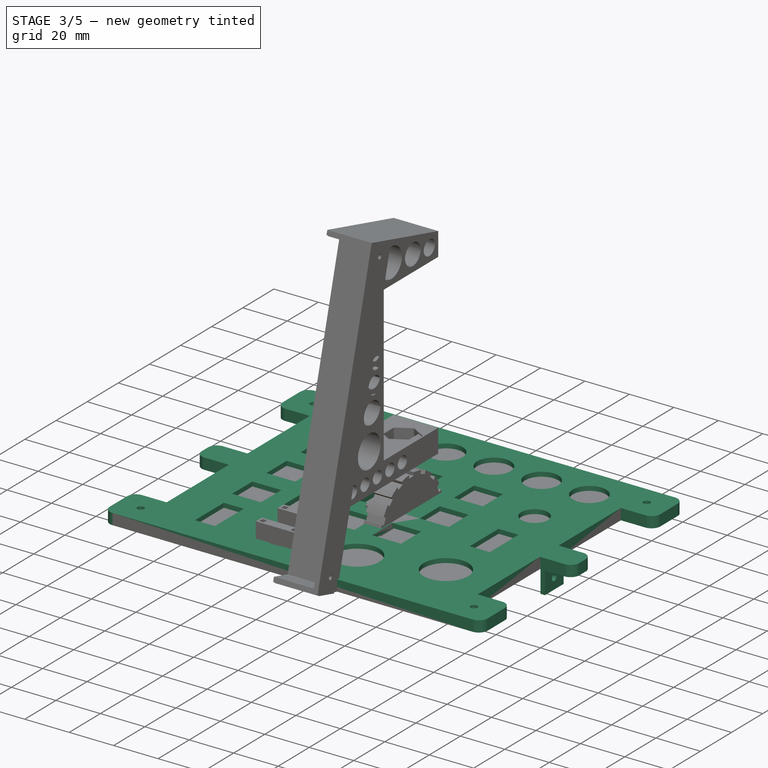
[diagram: stage 3 of 5 — iso view after this stage's code; geometry added in this stage tinted green]
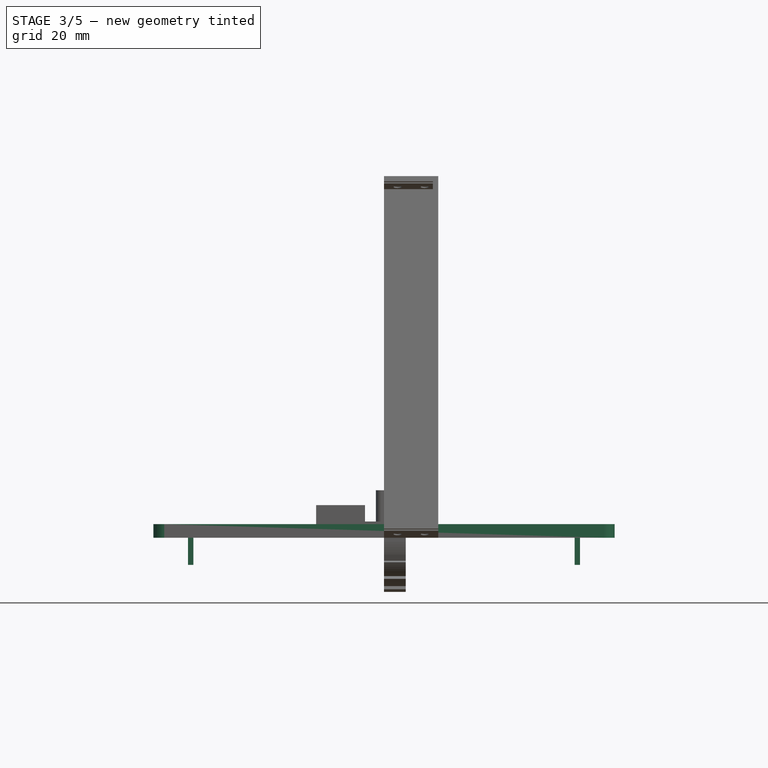
[diagram: stage 3 of 5 — front view after this stage's code; geometry added in this stage tinted green]
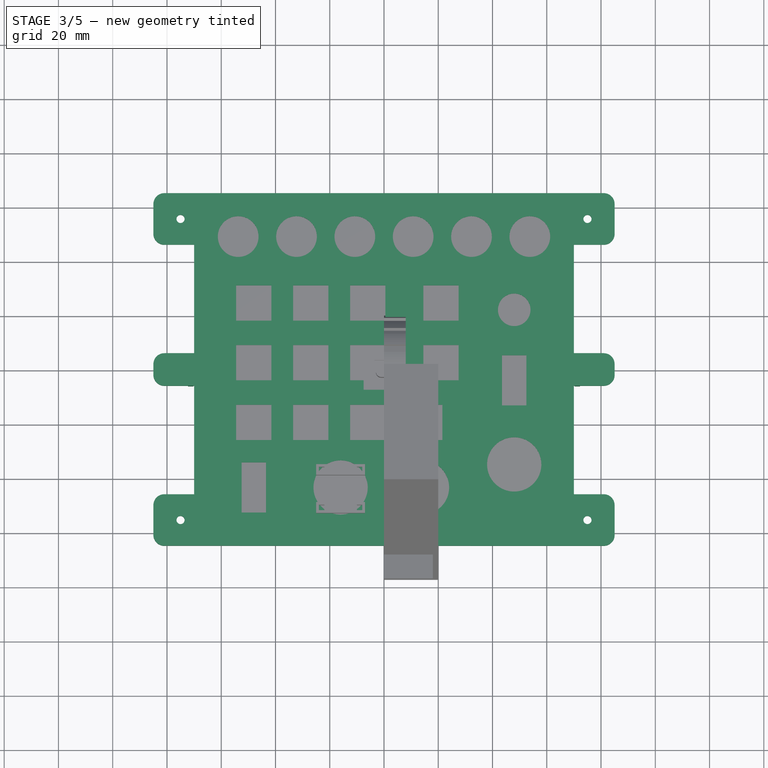
[diagram: stage 3 of 5 — top view after this stage's code; geometry added in this stage tinted green]
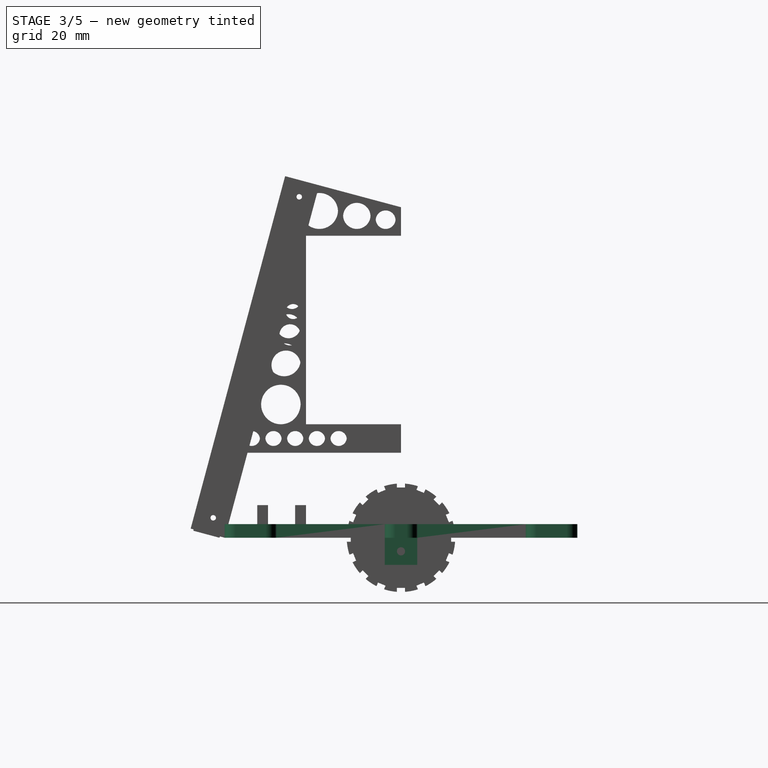
[diagram: stage 3 of 5 — right view after this stage's code; geometry added in this stage tinted green]
FEATURE [PartDesign::Body] Body001  label="Panel"
  Group = -> [Sketch003,Pad001,Sketch004,Pocket002,Sketch005,Pocket003,Sketch006,Pocket004,Sketch002,Pocket,Sketch,Pad]
  Origin = -> Origin001
  Tip = -> Pad
FEATURE [Sketcher::SketchObject] Sketch009
  FullyConstrained = true
  MapMode = 5
  Support = -> [XY_Plane002]
  expr: Constraints[29] = Spreadsheet.Length + 10
  expr: Constraints[30] = Spreadsheet.Width
  sketch-geometry (21):
    g0: LineSegment StartX=-85 StartY=-65 StartZ=0 EndX=85 EndY=-65 EndZ=0
    g1: LineSegment StartX=85 StartY=65 StartZ=0 EndX=-85 EndY=65 EndZ=0
    g2: GeomPoint X=0 Y=0 Z=0
    g3: LineSegment StartX=-85 StartY=46 StartZ=0 EndX=-70 EndY=46 EndZ=0
    g4: LineSegment StartX=-70 StartY=-46 StartZ=0 EndX=-85 EndY=-46 EndZ=0
    g5: LineSegment StartX=85 StartY=46 StartZ=0 EndX=70 EndY=46 EndZ=0
    g6: LineSegment StartX=70 StartY=-46 StartZ=0 EndX=85 EndY=-46 EndZ=0
    g7: LineSegment StartX=-85 StartY=65 StartZ=0 EndX=-85 EndY=46 EndZ=0
    g8: LineSegment StartX=-85 StartY=-46 StartZ=0 EndX=-85 EndY=-65 EndZ=0
    g9: LineSegment StartX=85 StartY=65 StartZ=0 EndX=85 EndY=46 EndZ=0
    g10: LineSegment StartX=85 StartY=-46 StartZ=0 EndX=85 EndY=-65 EndZ=0
    g11: LineSegment StartX=-70 StartY=46 StartZ=0 EndX=-70 EndY=6 EndZ=0
    g12: LineSegment StartX=-70 StartY=-6 StartZ=0 EndX=-70 EndY=-46 EndZ=0
    g13: LineSegment StartX=-85 StartY=-6 StartZ=0 EndX=-70 EndY=-6 EndZ=0
    g14: LineSegment StartX=-70 StartY=6 StartZ=0 EndX=-85 EndY=6 EndZ=0
    g15: LineSegment StartX=-85 StartY=6 StartZ=0 EndX=-85 EndY=-6 EndZ=0
    g16: LineSegment StartX=70 StartY=46 StartZ=0 EndX=70 EndY=6 EndZ=0
    g17: LineSegment StartX=70 StartY=-6 StartZ=0 EndX=70 EndY=-46 EndZ=0
    g18: LineSegment StartX=85 StartY=-6 StartZ=0 EndX=70 EndY=-6 EndZ=0
    g19: LineSegment StartX=70 StartY=6 StartZ=0 EndX=85 EndY=6 EndZ=0
    g20: LineSegment StartX=85 StartY=6 StartZ=0 EndX=85 EndY=-6 EndZ=0
  constraints (60):
    c: Horizontal(g0)
    c: Horizontal(g1)
    c: Symmetric(g0,g1,g2)
    c: Coincident(g2,g-1)
    c: Horizontal(g3)
    c: Coincident(g3,g11)
    c: Coincident(g12,g4)
    c: Coincident(g5,g16)
    c: Coincident(g17,g6)
    c: Horizontal(g6)
    c: Horizontal(g5)
    c: Horizontal(g4)
    c: Coincident(g1,g7)
    c: Coincident(g7,g3)
    c: Vertical(g7)
    c: Coincident(g4,g8)
    c: Coincident(g8,g0)
    c: Vertical(g8)
    c: Coincident(g1,g9)
    c: Coincident(g9,g5)
    c: Coincident(g6,g10)
    c: Coincident(g10,g0)
    c: Vertical(g9)
    c: Vertical(g10)
    c: Equal(g5,g3)
    c: Equal(g9,g7)
    c: Equal(g4,g3)
    c: Equal(g5,g6)
    c: Equal(g8,g7)
    c: DistanceX(g0,g0) = 170
    c: DistanceY(g0,g1) = 130
    c: DistanceX(g3,g3) = 15
    c: DistanceY(g12,g11) = 92
    c: Coincident(g11,g14)
    c: Vertical(g11)
    c: Coincident(g13,g12)
    c: Vertical(g12)
    c: Coincident(g15,g13)
    c: Coincident(g14,g15)
    c: Vertical(g15)
    c: Horizontal(g14)
    c: Horizontal(g13)
    c: Vertical(g14,g3)
    c: Equal(g11,g12)
    c: Equal(g13,g14)
    c: DistanceY(g15,g15) = 12
    c: Coincident(g16,g19)
    c: Vertical(g16)
    c: Coincident(g18,g17)
    c: Vertical(g17)
    c: Coincident(g20,g18)
    c: Coincident(g19,g20)
    c: Vertical(g20)
    c: Equal(g19,g18)
    c: Horizontal(g18)
    c: Horizontal(g19)
    c: Vertical(g5,g19)
    c: Equal(g17,g16)
    c: Equal(g16,g11)
    c: Equal(g20,g15)
FEATURE [PartDesign::Pad] Pad003
  Direction = (0,0,1)
  Length = 5
  Length2 = 10
  Profile = -> Sketch009
  ReferenceAxis = -> Sketch009 [N_Axis]
  Type = 0
  expr: Length = Spreadsheet.Thickness + 3
FEATURE [Sketcher::SketchObject] Sketch010
  FullyConstrained = true
  MapMode = 5
  Placement = pos=(0,0,0) rot=(1,0,0;3.14159rad)
  Support = -> [Pad003]
  expr: Constraints[10] = Spreadsheet.Length - 20 - 2 * Spreadsheet.Thickness
  expr: Constraints[11] = Spreadsheet.Width - 2 * Spreadsheet.Thickness
  sketch-geometry (5):
    g0: LineSegment StartX=-68 StartY=63 StartZ=0 EndX=-68 EndY=-63 EndZ=0
    g1: LineSegment StartX=-68 StartY=-63 StartZ=0 EndX=68 EndY=-63 EndZ=0
    g2: LineSegment StartX=68 StartY=-63 StartZ=0 EndX=68 EndY=63 EndZ=0
    g3: LineSegment StartX=68 StartY=63 StartZ=0 EndX=-68 EndY=63 EndZ=0
    g4: GeomPoint X=0 Y=0 Z=0
  constraints (12):
    c: Coincident(g0,g1)
    c: Coincident(g1,g2)
    c: Coincident(g2,g3)
    c: Coincident(g3,g0)
    c: Horizontal(g1)
    c: Horizontal(g3)
    c: Vertical(g0)
    c: Vertical(g2)
    c: Symmetric(g1,g0,g4)
    c: Coincident(g4,g-1)
    c: DistanceX(g1,g1) = 136
    c: DistanceY(g2,g2) = 126
FEATURE [PartDesign::Pocket] Pocket006
  BaseFeature = -> Pad003
  Direction = (0,0,1)
  Length = 3
  Length2 = 5
  Profile = -> Sketch010
  ReferenceAxis = -> Sketch010 [N_Axis]
  Type = 0
  expr: Length = 3
FEATURE [Sketcher::SketchObject] Sketch011
  ExternalGeometry = -> [Pocket006]
  FullyConstrained = true
  MapMode = 5
  Placement = pos=(70,0,0) rot=(0.57735,0.57735,0.57735;2.0944rad)
  Support = -> [Pocket006]
  expr: Constraints[4] = Spreadsheet.Height / 2
  sketch-geometry (2):
    g0: Circle CenterX=-25 CenterY=-13 CenterZ=0 NormalX=0 NormalY=0 NormalZ=1 AngleXU=0 Radius=3.5
    g1: Circle CenterX=25 CenterY=-13 CenterZ=0 NormalX=0 NormalY=0 NormalZ=1 AngleXU=0 Radius=3.5
  constraints (5):
    c: Equal(g0,g1)
    c: Diameter(g0) = 7
    c: Symmetric(g0,g1,g-2)
    c: DistanceX(g0,g1) = 50
    c: DistanceY(g0,g-3) = 13
FEATURE [PartDesign::Pocket] Pocket007
  BaseFeature = -> Pocket006
  Direction = (-1,0,0)
  Length = 5
  Length2 = 5
  Profile = -> Sketch011
  ReferenceAxis = -> Sketch011 [N_Axis]
  Type = 1
FEATURE [PartDesign::Fillet] Fillet
  Base = -> Pocket007 [Edge64,Edge63,Edge1,Edge2,Edge55,Edge53,Edge61,Edge5,Edge8,Edge54,Edge56,Edge62]
  BaseFeature = -> Pocket007
  Radius = 4
  SupportTransform = false
  UseAllEdges = false
  expr: Radius = Spreadsheet.Thickness * 2
FEATURE [Sketcher::SketchObject] Sketch012
  ExternalGeometry = -> [Fillet]
  FullyConstrained = true
  MapMode = 5
  Placement = pos=(0,0,5) rot=(0,0,1;0rad)
  Support = -> [Fillet]
  sketch-geometry (20):
    g0: Circle CenterX=-75 CenterY=55.5 CenterZ=0 NormalX=0 NormalY=0 NormalZ=1 AngleXU=0 Radius=1.5
    g1: LineSegment StartX=-70 StartY=46 StartZ=0 EndX=-70 EndY=55.5 EndZ=0
    g2: LineSegment StartX=70 StartY=46 StartZ=0 EndX=70 EndY=55.5 EndZ=0
    g3: Circle CenterX=75 CenterY=55.5 CenterZ=0 NormalX=0 NormalY=0 NormalZ=1 AngleXU=0 Radius=1.5
    g4: LineSegment StartX=-70 StartY=-46 StartZ=0 EndX=-70 EndY=-55.5 EndZ=0
    g5: Circle CenterX=-75 CenterY=-55.5 CenterZ=0 NormalX=0 NormalY=0 NormalZ=1 AngleXU=0 Radius=1.5
    g6: Circle CenterX=75 CenterY=-55.5 CenterZ=0 NormalX=0 NormalY=0 NormalZ=1 AngleXU=0 Radius=1.5
    g7: LineSegment StartX=-85 StartY=55.5 StartZ=0 EndX=-80 EndY=55.5 EndZ=0
    g8: LineSegment StartX=-80 StartY=55.5 StartZ=0 EndX=-75 EndY=55.5 EndZ=0
    g9: LineSegment StartX=-75 StartY=55.5 StartZ=0 EndX=-70 EndY=55.5 EndZ=0
    g10: LineSegment StartX=70 StartY=55.5 StartZ=0 EndX=75 EndY=55.5 EndZ=0
    g11: LineSegment StartX=75 StartY=55.5 StartZ=0 EndX=80 EndY=55.5 EndZ=0
    g12: LineSegment StartX=80 StartY=55.5 StartZ=0 EndX=85 EndY=55.5 EndZ=0
    g13: LineSegment StartX=80 StartY=-55.5 StartZ=0 EndX=85 EndY=-55.5 EndZ=0
    g14: LineSegment StartX=-85 StartY=-55.5 StartZ=0 EndX=-80 EndY=-55.5 EndZ=0
    g15: LineSegment StartX=-80 StartY=-55.5 StartZ=0 EndX=-75 EndY=-55.5 EndZ=0
    g16: LineSegment StartX=-75 StartY=-55.5 StartZ=0 EndX=-70 EndY=-55.5 EndZ=0
    g17: LineSegment StartX=70 StartY=-55.5 StartZ=0 EndX=75 EndY=-55.5 EndZ=0
    g18: LineSegment StartX=75 StartY=-55.5 StartZ=0 EndX=80 EndY=-55.5 EndZ=0
    g19: LineSegment StartX=70 StartY=-46 StartZ=0 EndX=70 EndY=-55.5 EndZ=0
  constraints (52):
    c: Diameter(g0) = 3
    c: Coincident(g1,g-10)
    c: Vertical(g1)
    c: Coincident(g2,g-5)
    c: Vertical(g2)
    c: Equal(g0,g3) = 3
    c: Coincident(g4,g-8)
    c: Vertical(g4)
    c: Equal(g0,g5) = 3
    c: Equal(g0,g6) = 3
    c: Coincident(g7,g8)
    c: Coincident(g8,g9)
    c: Symmetric(g-3,g-3,g7)
    c: Horizontal(g7)
    c: Horizontal(g8)
    c: Horizontal(g9)
    c: Equal(g7,g8)
    c: Equal(g8,g9)
    c: Coincident(g1,g9)
    c: Coincident(g0,g8)
    c: Coincident(g10,g2)
    c: Coincident(g10,g11)
    c: Horizontal(g10)
    c: Coincident(g11,g12)
    c: Horizontal(g11)
    c: Horizontal(g12)
    c: Equal(g12,g11)
    c: Equal(g11,g10)
    c: Coincident(g3,g10)
    c: Symmetric(g-4,g-4,g12)
    c: Coincident(g18,g13)
    c: Coincident(g4,g16)
    c: Coincident(g14,g15)
    c: Horizontal(g14)
    c: Coincident(g15,g16)
    c: Horizontal(g15)
    c: Horizontal(g16)
    c: Equal(g16,g15)
    c: Equal(g15,g14)
    c: Coincident(g5,g15)
    c: Symmetric(g-9,g-9,g14)
    c: Coincident(g17,g18)
    c: Horizontal(g17)
    c: Horizontal(g18)
    c: Horizontal(g13)
    c: Equal(g17,g18)
    c: Equal(g18,g13)
    c: Symmetric(g-6,g-6,g13)
    c: Coincident(g19,g-7)
    c: Coincident(g19,g17)
    c: Vertical(g19)
    c: Coincident(g6,g17)
FEATURE [PartDesign::Pocket] Pocket008
  BaseFeature = -> Fillet
  Direction = (0,0,-1)
  Length = 5
  Length2 = 5
  Profile = -> Sketch012
  ReferenceAxis = -> Sketch012 [N_Axis]
  Type = 1
FEATURE [Sketcher::SketchObject] Sketch008
  FullyConstrained = true
  MapMode = 5
  Placement = pos=(0,0,5) rot=(0,0,1;0rad)
  Support = -> [Pocket008]
  expr: Constraints[219] = 2 * (Spreadsheet.ButtonWidth + 2 * Spreadsheet.Tolerance)
  sketch-geometry (111):
    g0: LineSegment StartX=-48 StartY=24.5 StartZ=0 EndX=-48 EndY=2.5 EndZ=0
    g1: LineSegment StartX=-48 StartY=2.5 StartZ=0 EndX=-48 EndY=-19.5 EndZ=0
    g2: LineSegment StartX=-48 StartY=-19.5 StartZ=0 EndX=-48 EndY=-43.5 EndZ=0
    g3: LineSegment StartX=-48 StartY=24.5 StartZ=0 EndX=-27 EndY=24.5 EndZ=0
    g4: LineSegment StartX=-27 StartY=24.5 StartZ=0 EndX=-6 EndY=24.5 EndZ=0
    g5: LineSegment StartX=-6 StartY=24.5 StartZ=0 EndX=21 EndY=24.5 EndZ=0
    g6: LineSegment StartX=-48 StartY=2.5 StartZ=0 EndX=-27 EndY=2.5 EndZ=0
    g7: LineSegment StartX=-27 StartY=2.5 StartZ=0 EndX=-6 EndY=2.5 EndZ=0
    g8: LineSegment StartX=-6 StartY=2.5 StartZ=0 EndX=21 EndY=2.5 EndZ=0
    g9: LineSegment StartX=-48 StartY=-19.5 StartZ=0 EndX=-27 EndY=-19.5 EndZ=0
    g10: LineSegment StartX=-27 StartY=-19.5 StartZ=0 EndX=-6 EndY=-19.5 EndZ=0
    g11: LineSegment StartX=-6 StartY=-19.5 StartZ=0 EndX=15 EndY=-19.5 EndZ=0
    g12: LineSegment StartX=-48 StartY=-43.5 StartZ=0 EndX=-16 EndY=-43.5 EndZ=0
    g13: LineSegment StartX=-16 StartY=-43.5 StartZ=0 EndX=14 EndY=-43.5 EndZ=0
    g14: LineSegment StartX=14 StartY=-43.5 StartZ=0 EndX=14 EndY=-35 EndZ=0
    g15: LineSegment StartX=14 StartY=-35 StartZ=0 EndX=48 EndY=-35 EndZ=0
    g16: LineSegment StartX=48 StartY=-35 StartZ=0 EndX=48 EndY=-4 EndZ=0
    g17: LineSegment StartX=48 StartY=-4 StartZ=0 EndX=48 EndY=22 EndZ=0
    g18: GeomPoint X=-53.75 Y=49 Z=0
    g19: GeomPoint X=-32.25 Y=49 Z=0
    g20: GeomPoint X=-10.75 Y=49 Z=0
    g21: GeomPoint X=10.75 Y=49 Z=0
    g22: GeomPoint X=32.25 Y=49 Z=0
    g23: GeomPoint X=53.75 Y=49 Z=0
    g24: LineSegment StartX=-53.75 StartY=49 StartZ=0 EndX=-32.25 EndY=49 EndZ=0
    g25: LineSegment StartX=-32.25 StartY=49 StartZ=0 EndX=-10.75 EndY=49 EndZ=0
    g26: LineSegment StartX=10.75 StartY=49 StartZ=0 EndX=32.25 EndY=49 EndZ=0
    g27: LineSegment StartX=32.25 StartY=49 StartZ=0 EndX=53.75 EndY=49 EndZ=0
    g28: LineSegment StartX=-10.75 StartY=49 StartZ=0 EndX=10.75 EndY=49 EndZ=0
    g29: LineSegment StartX=-54.5 StartY=31 StartZ=0 EndX=-54.5 EndY=18 EndZ=0
    g30: LineSegment StartX=-54.5 StartY=18 StartZ=0 EndX=-41.5 EndY=18 EndZ=0
    g31: LineSegment StartX=-41.5 StartY=18 StartZ=0 EndX=-41.5 EndY=31 EndZ=0
    g32: LineSegment StartX=-41.5 StartY=31 StartZ=0 EndX=-54.5 EndY=31 EndZ=0
    g33: GeomPoint X=-48 Y=24.5 Z=0
    g34: LineSegment StartX=-48 StartY=24.5 StartZ=0 EndX=-26.5 EndY=24.5 EndZ=0
    g35: LineSegment StartX=-33.5 StartY=31 StartZ=0 EndX=-33.5 EndY=18 EndZ=0
    g36: LineSegment StartX=-33.5 StartY=18 StartZ=0 EndX=-20.5 EndY=18 EndZ=0
    g37: LineSegment StartX=-20.5 StartY=18 StartZ=0 EndX=-20.5 EndY=31 EndZ=0
    g38: LineSegment StartX=-20.5 StartY=31 StartZ=0 EndX=-33.5 EndY=31 EndZ=0
    g39: GeomPoint X=-27 Y=24.5 Z=0
    g40: LineSegment StartX=-12.5 StartY=31 StartZ=0 EndX=-12.5 EndY=18 EndZ=0
    g41: LineSegment StartX=-12.5 StartY=18 StartZ=0 EndX=0.5 EndY=18 EndZ=0
    g42: LineSegment StartX=0.5 StartY=18 StartZ=0 EndX=0.5 EndY=31 EndZ=0
    g43: LineSegment StartX=0.5 StartY=31 StartZ=0 EndX=-12.5 EndY=31 EndZ=0
    g44: GeomPoint X=-6 Y=24.5 Z=0
    g45: LineSegment StartX=14.5 StartY=31 StartZ=0 EndX=14.5 EndY=18 EndZ=0
    g46: LineSegment StartX=14.5 StartY=18 StartZ=0 EndX=27.5 EndY=18 EndZ=0
    g47: LineSegment StartX=27.5 StartY=18 StartZ=0 EndX=27.5 EndY=31 EndZ=0
    g48: LineSegment StartX=27.5 StartY=31 StartZ=0 EndX=14.5 EndY=31 EndZ=0
    g49: GeomPoint X=21 Y=24.5 Z=0
    g50: LineSegment StartX=-54.5 StartY=9 StartZ=0 EndX=-54.5 EndY=-4 EndZ=0
    g51: LineSegment StartX=-54.5 StartY=-4 StartZ=0 EndX=-41.5 EndY=-4 EndZ=0
    g52: LineSegment StartX=-41.5 StartY=-4 StartZ=0 EndX=-41.5 EndY=9 EndZ=0
    g53: LineSegment StartX=-41.5 StartY=9 StartZ=0 EndX=-54.5 EndY=9 EndZ=0
    g54: GeomPoint X=-48 Y=2.5 Z=0
    g55: LineSegment StartX=-33.5 StartY=9 StartZ=0 EndX=-33.5 EndY=-4 EndZ=0
    g56: LineSegment StartX=-33.5 StartY=-4 StartZ=0 EndX=-20.5 EndY=-4 EndZ=0
    g57: LineSegment StartX=-20.5 StartY=-4 StartZ=0 EndX=-20.5 EndY=9 EndZ=0
    g58: LineSegment StartX=-20.5 StartY=9 StartZ=0 EndX=-33.5 EndY=9 EndZ=0
    g59: GeomPoint X=-27 Y=2.5 Z=0
    g60: LineSegment StartX=-12.5 StartY=9 StartZ=0 EndX=-12.5 EndY=-4 EndZ=0
    g61: LineSegment StartX=-12.5 StartY=-4 StartZ=0 EndX=0.5 EndY=-4 EndZ=0
    g62: LineSegment StartX=0.5 StartY=-4 StartZ=0 EndX=0.5 EndY=9 EndZ=0
    g63: LineSegment StartX=0.5 StartY=9 StartZ=0 EndX=-12.5 EndY=9 EndZ=0
    g64: GeomPoint X=-6 Y=2.5 Z=0
    g65: LineSegment StartX=14.5 StartY=9 StartZ=0 EndX=14.5 EndY=-4 EndZ=0
    g66: LineSegment StartX=14.5 StartY=-4 StartZ=0 EndX=27.5 EndY=-4 EndZ=0
    g67: LineSegment StartX=27.5 StartY=-4 StartZ=0 EndX=27.5 EndY=9 EndZ=0
    g68: LineSegment StartX=27.5 StartY=9 StartZ=0 EndX=14.5 EndY=9 EndZ=0
    g69: GeomPoint X=21 Y=2.5 Z=0
    g70: LineSegment StartX=-54.5 StartY=-13 StartZ=0 EndX=-54.5 EndY=-26 EndZ=0
    g71: LineSegment StartX=-54.5 StartY=-26 StartZ=0 EndX=-41.5 EndY=-26 EndZ=0
    g72: LineSegment StartX=-41.5 StartY=-26 StartZ=0 EndX=-41.5 EndY=-13 EndZ=0
    g73: LineSegment StartX=-41.5 StartY=-13 StartZ=0 EndX=-54.5 EndY=-13 EndZ=0
    g74: GeomPoint X=-48 Y=-19.5 Z=0
    g75: LineSegment StartX=-33.5 StartY=-13 StartZ=0 EndX=-33.5 EndY=-26 EndZ=0
    g76: LineSegment StartX=-33.5 StartY=-26 StartZ=0 EndX=-20.5 EndY=-26 EndZ=0
    g77: LineSegment StartX=-20.5 StartY=-26 StartZ=0 EndX=-20.5 EndY=-13 EndZ=0
    g78: LineSegment StartX=-20.5 StartY=-13 StartZ=0 EndX=-33.5 EndY=-13 EndZ=0
    g79: GeomPoint X=-27 Y=-19.5 Z=0
    g80: LineSegment StartX=-12.5 StartY=-13 StartZ=0 EndX=-12.5 EndY=-26 EndZ=0
    g81: LineSegment StartX=-12.5 StartY=-26 StartZ=0 EndX=0.5 EndY=-26 EndZ=0
    g82: LineSegment StartX=0.5 StartY=-26 StartZ=0 EndX=0.5 EndY=-13 EndZ=0
    g83: LineSegment StartX=0.5 StartY=-13 StartZ=0 EndX=-12.5 EndY=-13 EndZ=0
    g84: GeomPoint X=-6 Y=-19.5 Z=0
    g85: LineSegment StartX=8.5 StartY=-13 StartZ=0 EndX=8.5 EndY=-26 EndZ=0
    g86: LineSegment StartX=8.5 StartY=-26 StartZ=0 EndX=21.5 EndY=-26 EndZ=0
    g87: LineSegment StartX=21.5 StartY=-26 StartZ=0 EndX=21.5 EndY=-13 EndZ=0
    g88: LineSegment StartX=21.5 StartY=-13 StartZ=0 EndX=8.5 EndY=-13 EndZ=0
    g89: GeomPoint X=15 Y=-19.5 Z=0
    g90: GeomPoint X=48 Y=22 Z=0
    g91: Circle CenterX=48 CenterY=-35 CenterZ=0 NormalX=0 NormalY=0 NormalZ=1 AngleXU=0 Radius=10
    g92: Circle CenterX=-16 CenterY=-43.5 CenterZ=0 NormalX=0 NormalY=0 NormalZ=1 AngleXU=0 Radius=10
    g93: Circle CenterX=14 CenterY=-43.5 CenterZ=0 NormalX=0 NormalY=0 NormalZ=1 AngleXU=0 Radius=10
    g94: Circle CenterX=48 CenterY=22 CenterZ=0 NormalX=0 NormalY=0 NormalZ=1 AngleXU=0 Radius=6
    g95: Circle CenterX=-53.75 CenterY=49 CenterZ=0 NormalX=0 NormalY=0 NormalZ=1 AngleXU=0 Radius=7.5
    g96: Circle CenterX=-32.25 CenterY=49 CenterZ=0 NormalX=0 NormalY=0 NormalZ=1 AngleXU=0 Radius=7.5
    g97: Circle CenterX=-10.75 CenterY=49 CenterZ=0 NormalX=0 NormalY=0 NormalZ=1 AngleXU=0 Radius=7.5
    g98: Circle CenterX=10.75 CenterY=49 CenterZ=0 NormalX=0 NormalY=0 NormalZ=1 AngleXU=0 Radius=7.5
    g99: Circle CenterX=32.25 CenterY=49 CenterZ=0 NormalX=0 NormalY=0 NormalZ=1 AngleXU=0 Radius=7.5
    g100: Circle CenterX=53.75 CenterY=49 CenterZ=0 NormalX=0 NormalY=0 NormalZ=1 AngleXU=0 Radius=7.5
    g101: LineSegment StartX=43.5 StartY=5.25 StartZ=0 EndX=43.5 EndY=-13.25 EndZ=0
    g102: LineSegment StartX=43.5 StartY=-13.25 StartZ=0 EndX=52.5 EndY=-13.25 EndZ=0
    g103: LineSegment StartX=52.5 StartY=-13.25 StartZ=0 EndX=52.5 EndY=5.25 EndZ=0
    g104: LineSegment StartX=52.5 StartY=5.25 StartZ=0 EndX=43.5 EndY=5.25 EndZ=0
    g105: GeomPoint X=48 Y=-4 Z=0
    g106: LineSegment StartX=-52.5 StartY=-34.25 StartZ=0 EndX=-52.5 EndY=-52.75 EndZ=0
    g107: LineSegment StartX=-52.5 StartY=-52.75 StartZ=0 EndX=-43.5 EndY=-52.75 EndZ=0
    g108: LineSegment StartX=-43.5 StartY=-52.75 StartZ=0 EndX=-43.5 EndY=-34.25 EndZ=0
    g109: LineSegment StartX=-43.5 StartY=-34.25 StartZ=0 EndX=-52.5 EndY=-34.25 EndZ=0
    g110: GeomPoint X=-48 Y=-43.5 Z=0
  constraints (268):
    c: Vertical(g0)
    c: Coincident(g0,g1)
    c: Coincident(g1,g2)
    c: Vertical(g2)
    c: Coincident(g0,g3)
    c: Horizontal(g3)
    c: Coincident(g3,g4)
    c: Horizontal(g4)
    c: Coincident(g4,g5)
    c: Horizontal(g5)
    c: Coincident(g0,g6)
    c: Horizontal(g6)
    c: Coincident(g6,g7)
    c: Horizontal(g7)
    c: Coincident(g7,g8)
    c: Horizontal(g8)
    c: Coincident(g1,g9)
    c: Horizontal(g9)
    c: Coincident(g9,g10)
    c: Horizontal(g10)
    c: Coincident(g10,g11)
    c: Horizontal(g11)
    c: DistanceX(g3,g3) = 21
    c: Vertical(g1)
    c: Equal(g3,g6)
    c: Equal(g6,g7)
    c: Equal(g7,g4)
    c: Equal(g4,g11)
    c: Equal(g11,g10)
    c: Equal(g10,g9)
    c: Equal(g5,g8)
    c: DistanceX(g5,g5) = 27
    c: DistanceY(g2,g2) = 24
    c: DistanceY(g-1,g6) = 2.5
    c: DistanceX(g6,g-1) = 27
    c: Equal(g0,g1)
    c: DistanceY(g0,g0) = 22
    c: Coincident(g12,g2)
    c: Horizontal(g12)
    c: Coincident(g13,g12)
    c: Horizontal(g13)
    c: Coincident(g13,g14)
    c: Vertical(g14)
    c: Coincident(g14,g15)
    c: Horizontal(g15)
    c: Coincident(g15,g16)
    c: Vertical(g16)
    c: Coincident(g16,g17)
    c: DistanceX(g15,g15) = 34
    c: DistanceY(g16,g16) = 31
    c: Vertical(g17)
    c: DistanceY(g17,g17) = 26
    c: DistanceY(g14,g14) = 8.5
    c: DistanceX(g13,g13) = 30
    c: DistanceX(g12,g12) = 32
    c: Coincident(g24,g18)
    c: Coincident(g24,g19)
    c: Horizontal(g24)
    c: Coincident(g24,g25)
    c: Coincident(g25,g20)
    c: Horizontal(g25)
    c: Coincident(g26,g22)
    c: Horizontal(g26)
    c: Coincident(g26,g27)
    c: Coincident(g27,g23)
    c: Horizontal(g27)
    c: Equal(g24,g25)
    c: Equal(g26,g27)
    c: DistanceX(g24,g24) = 21.5
    c: Coincident(g20,g28)
    c: Coincident(g28,g21)
    c: Coincident(g28,g26)
    c: Symmetric(g20,g21,g-2)
    c: DistanceY(g-1,g18) = 49
    c: Equal(g28,g24)
    c: Equal(g26,g24)
    c: Coincident(g29,g30)
    c: Coincident(g30,g31)
    c: Coincident(g31,g32)
    c: Coincident(g32,g29)
    c: Horizontal(g30)
    c: Horizontal(g32)
    c: Vertical(g29)
    c: Vertical(g31)
    c: Symmetric(g30,g29,g33)
    c: Equal(g29,g32)
    c: Coincident(g34,g33)
    c: Horizontal(g34)
    c: Equal(g24,g34) = 21.5
    c: Coincident(g34,g0)
    c: Coincident(g35,g36)
    c: Coincident(g36,g37)
    c: Coincident(g37,g38)
    c: Coincident(g38,g35)
    c: Horizontal(g36)
    c: Horizontal(g38)
    c: Vertical(g35)
    c: Vertical(g37)
    c: Symmetric(g36,g35,g39)
    c: Equal(g35,g38)
    c: Coincident(g39,g3)
    c: Coincident(g40,g41)
    c: Coincident(g41,g42)
    c: Coincident(g42,g43)
    c: Coincident(g43,g40)
    c: Horizontal(g41)
    c: Horizontal(g43)
    c: Vertical(g40)
    c: Vertical(g42)
    c: Symmetric(g41,g40,g44)
    c: Equal(g40,g43)
    c: Coincident(g44,g4)
    c: Coincident(g45,g46)
    c: Coincident(g46,g47)
    c: Coincident(g47,g48)
    c: Coincident(g48,g45)
    c: Horizontal(g46)
    c: Horizontal(g48)
    c: Vertical(g45)
    c: Vertical(g47)
    c: Symmetric(g46,g45,g49)
    c: Equal(g45,g48)
    c: Coincident(g49,g5)
    c: Coincident(g50,g51)
    c: Coincident(g51,g52)
    c: Coincident(g52,g53)
    c: Coincident(g53,g50)
    c: Horizontal(g51)
    c: Horizontal(g53)
    c: Vertical(g50)
    c: Vertical(g52)
    c: Symmetric(g51,g50,g54)
    c: Equal(g50,g53)
    c: Coincident(g54,g0)
    c: Coincident(g55,g56)
    c: Coincident(g56,g57)
    c: Coincident(g57,g58)
    c: Coincident(g58,g55)
    c: Horizontal(g56)
    c: Horizontal(g58)
    c: Vertical(g55)
    c: Vertical(g57)
    c: Symmetric(g56,g55,g59)
    c: Equal(g55,g58)
    c: Coincident(g59,g6)
    c: Coincident(g60,g61)
    c: Coincident(g61,g62)
    c: Coincident(g62,g63)
    c: Coincident(g63,g60)
    c: Horizontal(g61)
    c: Horizontal(g63)
    c: Vertical(g60)
    c: Vertical(g62)
    c: Symmetric(g61,g60,g64)
    c: Equal(g60,g63)
    c: Coincident(g64,g7)
    c: Coincident(g65,g66)
    c: Coincident(g66,g67)
    c: Coincident(g67,g68)
    c: Coincident(g68,g65)
    c: Horizontal(g66)
    c: Horizontal(g68)
    c: Vertical(g65)
    c: Vertical(g67)
    c: Symmetric(g66,g65,g69)
    c: Equal(g65,g68)
    c: Coincident(g69,g8)
    c: Coincident(g70,g71)
    c: Coincident(g71,g72)
    c: Coincident(g72,g73)
    c: Coincident(g73,g70)
    c: Horizontal(g71)
    c: Horizontal(g73)
    c: Vertical(g70)
    c: Vertical(g72)
    c: Symmetric(g71,g70,g74)
    c: Equal(g70,g73)
    c: Coincident(g74,g1)
    c: Coincident(g75,g76)
    c: Coincident(g76,g77)
    c: Coincident(g77,g78)
    c: Coincident(g78,g75)
    c: Horizontal(g76)
    c: Horizontal(g78)
    c: Vertical(g75)
    c: Vertical(g77)
    c: Symmetric(g76,g75,g79)
    c: Equal(g75,g78)
    c: Coincident(g79,g9)
    c: Coincident(g80,g81)
    c: Coincident(g81,g82)
    c: Coincident(g82,g83)
    c: Coincident(g83,g80)
    c: Horizontal(g81)
    c: Horizontal(g83)
    c: Vertical(g80)
    c: Vertical(g82)
    c: Symmetric(g81,g80,g84)
    c: Equal(g80,g83)
    c: Coincident(g84,g10)
    c: Coincident(g85,g86)
    c: Coincident(g86,g87)
    c: Coincident(g87,g88)
    c: Coincident(g88,g85)
    c: Horizontal(g86)
    c: Horizontal(g88)
    c: Vertical(g85)
    c: Vertical(g87)
    c: Symmetric(g86,g85,g89)
    c: Equal(g85,g88)
    c: Coincident(g89,g11)
    c: Coincident(g90,g17)
    c: Coincident(g91,g15)
    c: Coincident(g92,g12)
    c: Diameter(g92) = 20
    c: Coincident(g93,g13)
    c: Equal(g91,g93)
    c: Coincident(g94,g17)
    c: Diameter(g94) = 12
    c: DistanceY(g29,g29) = 13
    c: Coincident(g95,g18)
    c: Coincident(g96,g19)
    c: Coincident(g97,g20)
    c: Coincident(g98,g21)
    c: Coincident(g99,g22)
    c: Coincident(g100,g23)
    c: Equal(g100,g99)
    c: Equal(g99,g98)
    c: Equal(g98,g97)
    c: Equal(g97,g96)
    c: Equal(g96,g95)
    c: Diameter(g95) = 15
    c: Equal(g29,g35)
    c: Equal(g35,g40)
    c: Equal(g40,g45)
    c: Equal(g45,g65)
    c: Equal(g65,g85)
    c: Equal(g85,g60)
    c: Equal(g60,g55)
    c: Equal(g55,g50)
    c: Equal(g50,g70)
    c: Equal(g70,g75)
    c: Equal(g75,g80)
    c: Coincident(g101,g102)
    c: Coincident(g102,g103)
    c: Coincident(g103,g104)
    c: Coincident(g104,g101)
    c: Horizontal(g102)
    c: Horizontal(g104)
    c: Vertical(g101)
    c: Vertical(g103)
    c: Symmetric(g102,g101,g105)
    c: Coincident(g105,g16)
    c: Coincident(g106,g107)
    c: Coincident(g107,g108)
    c: Coincident(g108,g109)
    c: Coincident(g109,g106)
    c: Horizontal(g107)
    c: Horizontal(g109)
    c: Vertical(g106)
    c: Vertical(g108)
    c: Symmetric(g107,g106,g110)
    c: DistanceX(g109,g109) = 9
    c: DistanceY(g106,g106) = 18.5
    c: Coincident(g2,g110)
    c: Equal(g109,g104)
    c: Equal(g101,g106)
    c: Equal(g93,g92)
FEATURE [PartDesign::Pocket] Pocket009
  BaseFeature = -> Pocket008
  Direction = (0,0,-1)
  Length = 5
  Length2 = 5
  Profile = -> Sketch008
  ReferenceAxis = -> Sketch008 [N_Axis]
  Type = 1
FEATURE [Sketcher::SketchObject] Sketch013
  ExternalGeometry = -> [Pocket009]
  FullyConstrained = true
  MapMode = 5
  Placement = pos=(0,0,3) rot=(1,0,0;3.14159rad)
  Support = -> [Pocket009]
  expr: Constraints[35] = Spreadsheet.Thickness
  sketch-geometry (24):
    g0: LineSegment StartX=-54.5 StartY=9.5 StartZ=0 EndX=27.5 EndY=9.5 EndZ=0
    g1: LineSegment StartX=27.5 StartY=9.5 StartZ=0 EndX=27.5 EndY=7.5 EndZ=0
    g2: LineSegment StartX=27.5 StartY=7.5 StartZ=0 EndX=-54.5 EndY=7.5 EndZ=0
    g3: LineSegment StartX=-54.5 StartY=7.5 StartZ=0 EndX=-54.5 EndY=9.5 EndZ=0
    g4: LineSegment StartX=-54.5 StartY=-12.5 StartZ=0 EndX=27.5 EndY=-12.5 EndZ=0
    g5: LineSegment StartX=27.5 StartY=-12.5 StartZ=0 EndX=27.5 EndY=-14.5 EndZ=0
    g6: LineSegment StartX=27.5 StartY=-14.5 StartZ=0 EndX=-54.5 EndY=-14.5 EndZ=0
    g7: LineSegment StartX=-54.5 StartY=-14.5 StartZ=0 EndX=-54.5 EndY=-12.5 EndZ=0
    g8: LineSegment StartX=-54.5 StartY=-35.25 StartZ=0 EndX=27.5 EndY=-35.25 EndZ=0
    g9: LineSegment StartX=27.5 StartY=-35.25 StartZ=0 EndX=27.5 EndY=-37.25 EndZ=0
    g10: LineSegment StartX=27.5 StartY=-37.25 StartZ=0 EndX=-54.5 EndY=-37.25 EndZ=0
    g11: LineSegment StartX=-54.5 StartY=-37.25 StartZ=0 EndX=-54.5 EndY=-35.25 EndZ=0
    g12: LineSegment StartX=-54.5 StartY=31.125 StartZ=0 EndX=21.5 EndY=31.125 EndZ=0
    g13: LineSegment StartX=21.5 StartY=31.125 StartZ=0 EndX=21.5 EndY=29.125 EndZ=0
    g14: LineSegment StartX=21.5 StartY=29.125 StartZ=0 EndX=-54.5 EndY=29.125 EndZ=0
    g15: LineSegment StartX=-54.5 StartY=29.125 StartZ=0 EndX=-54.5 EndY=31.125 EndZ=0
    g16: LineSegment StartX=-54.5 StartY=-14.5 StartZ=0 EndX=-54.5 EndY=-18 EndZ=0
    g17: LineSegment StartX=-54.5 StartY=-9 StartZ=0 EndX=-54.5 EndY=-12.5 EndZ=0
    g18: LineSegment StartX=-54.5 StartY=13 StartZ=0 EndX=-54.5 EndY=9.5 EndZ=0
    g19: LineSegment StartX=-54.5 StartY=4 StartZ=0 EndX=-54.5 EndY=7.5 EndZ=0
    g20: LineSegment StartX=-52.5 StartY=34.25 StartZ=0 EndX=-52.5 EndY=31.125 EndZ=0
    g21: LineSegment StartX=-54.5 StartY=29.125 StartZ=0 EndX=-54.5 EndY=26 EndZ=0
    g22: LineSegment StartX=-54.5 StartY=-31 StartZ=0 EndX=-54.5 EndY=-35.25 EndZ=0
    g23: LineSegment StartX=-53.75 StartY=-41.5 StartZ=0 EndX=-53.75 EndY=-37.25 EndZ=0
  constraints (67):
    c: Coincident(g0,g1)
    c: Coincident(g1,g2)
    c: Coincident(g2,g3)
    c: Coincident(g3,g0)
    c: Horizontal(g0)
    c: Horizontal(g2)
    c: Vertical(g1)
    c: Vertical(g3)
    c: Coincident(g4,g5)
    c: Coincident(g5,g6)
    c: Coincident(g6,g7)
    c: Coincident(g7,g4)
    c: Horizontal(g4)
    c: Horizontal(g6)
    c: Vertical(g5)
    c: Vertical(g7)
    c: Coincident(g8,g9)
    c: Coincident(g9,g10)
    c: Coincident(g10,g11)
    c: Coincident(g11,g8)
    c: Horizontal(g8)
    c: Horizontal(g10)
    c: Vertical(g9)
    c: Vertical(g11)
    c: Coincident(g12,g13)
    c: Coincident(g13,g14)
    c: Coincident(g14,g15)
    c: Coincident(g15,g12)
    c: Horizontal(g12)
    c: Horizontal(g14)
    c: Vertical(g13)
    c: Vertical(g15)
    c: Equal(g15,g3)
    c: Equal(g3,g7)
    c: Equal(g7,g11)
    c: DistanceY(g15,g15) = 2
    c: Coincident(g16,g6)
    c: Coincident(g16,g-7)
    c: Vertical(g5,g-11)
    c: Coincident(g17,g-8)
    c: Coincident(g4,g17)
    c: Equal(g17,g16)
    c: Vertical(g4,g17)
    c: Vertical(g-3,g0)
    c: Coincident(g18,g-3)
    c: Coincident(g19,g-6)
    c: Coincident(g2,g19)
    c: Coincident(g0,g18)
    c: Equal(g18,g19)
    c: Vertical(g1,g-5)
    c: Vertical(g14,g-15)
    c: Coincident(g20,g-14)
    c: PointOnObject(g20,g12)
    c: Vertical(g20)
    c: Coincident(g21,g14)
    c: Equal(g21,g20)
    c: Coincident(g21,g-15)
    c: Vertical(g13,g-13)
    c: Vertical(g-9,g8)
    c: Vertical(g8,g-10)
    c: Coincident(g22,g-9)
    c: Coincident(g22,g8)
    c: PointOnObject(g23,g-16)
    c: PointOnObject(g23,g10)
    c: Vertical(g23)
    c: Perpendicular(g-16,g23)
    c: Equal(g23,g22)
FEATURE [PartDesign::Pad] Pad004
  BaseFeature = -> Pocket009
  Direction = (0,0,-1)
  Length = 3
  Length2 = 10
  Profile = -> Sketch013
  ReferenceAxis = -> Sketch013 [N_Axis]
  Type = 0
  expr: Length = 3
FEATURE [PartDesign::Body] Body014  label="Button.Rocker"
  Group = -> [Sketch059,Pad040,Sketch060,Pocket018,Sketch061,Pocket019,Sketch072,Pocket025]
  Origin = -> Origin014
  Placement = pos=(-47.96,-43.57,31.22) rot=(0,1,0;3.14159rad)
  Tip = -> Pocket025
FEATURE [Sketcher::SketchObject] Sketch073
  ExternalGeometry = -> [Pad004]
  FullyConstrained = true
  MapMode = 5
  Placement = pos=(0,0,0) rot=(1,0,0;3.14159rad)
  Support = -> [Pad004]
  expr: Constraints[10] = Spreadsheet.Thickness
  expr: Constraints[12] = Spreadsheet.Tolerance
  expr: Constraints[25] = Spreadsheet.Tolerance
  sketch-geometry (10):
    g0: LineSegment StartX=-72.25 StartY=-6 StartZ=0 EndX=-72.25 EndY=6 EndZ=0
    g1: LineSegment StartX=-72.25 StartY=6 StartZ=0 EndX=-70.25 EndY=6 EndZ=0
    g2: LineSegment StartX=-70.25 StartY=6 StartZ=0 EndX=-70.25 EndY=-6 EndZ=0
    g3: LineSegment StartX=-70.25 StartY=-6 StartZ=0 EndX=-72.25 EndY=-6 EndZ=0
    g4: GeomPoint X=-71.25 Y=0 Z=0
    g5: LineSegment StartX=70.25 StartY=-6 StartZ=0 EndX=70.25 EndY=6 EndZ=0
    g6: LineSegment StartX=70.25 StartY=6 StartZ=0 EndX=72.25 EndY=6 EndZ=0
    g7: LineSegment StartX=72.25 StartY=6 StartZ=0 EndX=72.25 EndY=-6 EndZ=0
    g8: LineSegment StartX=72.25 StartY=-6 StartZ=0 EndX=70.25 EndY=-6 EndZ=0
    g9: GeomPoint X=71.25 Y=0 Z=0
  constraints (26):
    c: Coincident(g0,g1)
    c: Coincident(g1,g2)
    c: Coincident(g2,g3)
    c: Coincident(g3,g0)
    c: Horizontal(g1)
    c: Horizontal(g3)
    c: Vertical(g0)
    c: Vertical(g2)
    c: Symmetric(g1,g0,g4)
    c: PointOnObject(g4,g-1)
    c: DistanceX(g1,g1) = 2
    c: Horizontal(g1,g-6)
    c: DistanceX(g1,g-6) = 0.25
    c: Coincident(g5,g6)
    c: Coincident(g6,g7)
    c: Coincident(g7,g8)
    c: Coincident(g8,g5)
    c: Horizontal(g6)
    c: Horizontal(g8)
    c: Vertical(g5)
    c: Vertical(g7)
    c: Symmetric(g6,g5,g9)
    c: PointOnObject(g9,g-1)
    c: Equal(g1,g6)
    c: Equal(g5,g2)
    c: DistanceX(g-3,g5) = 0.25
FEATURE [PartDesign::Pad] Pad041
  BaseFeature = -> Pad004
  Direction = (0,0,-1)
  Length = 10
  Length2 = 10
  Profile = -> Sketch073
  ReferenceAxis = -> Sketch073 [N_Axis]
  Type = 0
FEATURE [Sketcher::SketchObject] Sketch074
  ExternalGeometry = -> [Pad041]
  FullyConstrained = true
  MapMode = 5
  Placement = pos=(72.25,0,0) rot=(0.57735,0.57735,0.57735;2.0944rad)
  Support = -> [Pad041]
  sketch-geometry (1):
    g0: Circle CenterX=7e-16 CenterY=-5 CenterZ=0 NormalX=0 NormalY=0 NormalZ=1 AngleXU=0 Radius=1.5
  constraints (2):
    c: Diameter(g0) = 3
    c: Symmetric(g-4,g-3,g0)
FEATURE [PartDesign::Pocket] Pocket026
  BaseFeature = -> Pad041
  Direction = (-1,0,0)
  Length = 5
  Length2 = 5
  Profile = -> Sketch074
  ReferenceAxis = -> Sketch074 [N_Axis]
  Type = 1
FEATURE [PartDesign::Body] Body002  label="Cover"
  Group = -> [Sketch009,Pad003,Sketch010,Pocket006,Sketch011,Pocket007,Fillet,Sketch012,Pocket008,Sketch008,Pocket009,Sketch013,Pad004,Sketch073,Pad041,Sketch074,Pocket026]
  Origin = -> Origin002
  Placement = pos=(0,0,24.28) rot=(0,0,1;0rad)
  Tip = -> Pocket026
FEATURE [Sketcher::SketchObject] Sketch075
  FullyConstrained = true
  MapMode = 5
  Support = -> [XY_Plane015]
  sketch-geometry (1):
    g0: Circle CenterX=0 CenterY=0 CenterZ=0 NormalX=0 NormalY=0 NormalZ=1 AngleXU=0 Radius=7
  constraints (2):
    c: Coincident(g0,g-1)
    c: Diameter(g0) = 14
FEATURE [PartDesign::Pad] Pad042
  Direction = (0,0,1)
  Length = 6
  Length2 = 10
  Profile = -> Sketch075
  ReferenceAxis = -> Sketch075 [N_Axis]
  Type = 0
FEATURE [Sketcher::SketchObject] Sketch076
  FullyConstrained = true
  MapMode = 5
  Placement = pos=(0,0,6) rot=(0,0,1;0rad)
  Support = -> [Pad042]
  expr: Constraints[10] = Spreadsheet.ButtonWidth + 3 * Spreadsheet.Tolerance
  sketch-geometry (5):
    g0: LineSegment StartX=-3.375 StartY=3.375 StartZ=0 EndX=-3.375 EndY=-3.375 EndZ=0
    g1: LineSegment StartX=-3.375 StartY=-3.375 StartZ=0 EndX=3.375 EndY=-3.375 EndZ=0
    g2: LineSegment StartX=3.375 StartY=-3.375 StartZ=0 EndX=3.375 EndY=3.375 EndZ=0
    g3: LineSegment StartX=3.375 StartY=3.375 StartZ=0 EndX=-3.375 EndY=3.375 EndZ=0
    g4: GeomPoint X=0 Y=0 Z=0
  constraints (12):
    c: Coincident(g0,g1)
    c: Coincident(g1,g2)
    c: Coincident(g2,g3)
    c: Coincident(g3,g0)
    c: Horizontal(g1)
    c: Horizontal(g3)
    c: Vertical(g0)
    c: Vertical(g2)
    c: Symmetric(g1,g0,g4)
    c: Coincident(g4,g-1)
    c: DistanceX(g3,g3) = 6.75
    c: Equal(g0,g3)
FEATURE [PartDesign::Pocket] Pocket027
  BaseFeature = -> Pad042
  Direction = (0,0,-1)
  Length = 3
  Length2 = 5
  Profile = -> Sketch076
  ReferenceAxis = -> Sketch076 [N_Axis]
  Type = 0
  expr: Length = 3
FEATURE [Sketcher::SketchObject] Sketch077
  FullyConstrained = true
  MapMode = 5
  Placement = pos=(0,0,0) rot=(1,0,0;3.14159rad)
  Support = -> [Pocket027]
  sketch-geometry (2):
    g0: Circle CenterX=0 CenterY=0 CenterZ=0 NormalX=0 NormalY=0 NormalZ=1 AngleXU=0 Radius=7
    g1: Circle CenterX=0 CenterY=0 CenterZ=0 NormalX=0 NormalY=0 NormalZ=1 AngleXU=0 Radius=5.5
  constraints (4):
    c: Coincident(g0,g-1)
    c: Diameter(g0) = 14
    c: Coincident(g1,g0)
    c: Diameter(g1) = 11
FEATURE [PartDesign::Pocket] Pocket028
  BaseFeature = -> Pocket027
  Direction = (0,0,1)
  Length = 5
  Length2 = 5
  Profile = -> Sketch077
  ReferenceAxis = -> Sketch077 [N_Axis]
  Type = 0
FEATURE [Sketcher::SketchObject] Sketch081
  ExternalGeometry = -> [Pocket034]
  FullyConstrained = true
  MapMode = 5
  Placement = pos=(-2e-16,0,0) rot=(0.57735,0.57735,-0.57735;4.18879rad)
  Support = -> [Pocket034]
  expr: Constraints[16] = Spreadsheet.Thickness
  expr: Constraints[20] = Spreadsheet.Thickness
  sketch-geometry (8):
    g0: GeomPoint X=-49.4929 Y=-65.4761 Z=0
    g1: LineSegment StartX=-55.9634 StartY=-41.328 StartZ=0 EndX=-43.0224 EndY=-89.6243 EndZ=0
    g2: LineSegment StartX=-43.0224 StartY=-89.6243 StartZ=0 EndX=-45.2315 EndY=-90.2162 EndZ=0
    g3: LineSegment StartX=-55.9634 StartY=-41.328 StartZ=0 EndX=-58.1724 EndY=-41.9199 EndZ=0
    g4: Circle CenterX=-45.2315 CenterY=-90.2162 CenterZ=0 NormalX=0 NormalY=0 NormalZ=1 AngleXU=0 Radius=8.23145
    g5: Circle CenterX=-58.1724 CenterY=-41.9199 CenterZ=0 NormalX=0 NormalY=0 NormalZ=1 AngleXU=0 Radius=8.23145
    g6: LineSegment StartX=-37 StartY=-90.2162 StartZ=0 EndX=-35 EndY=-90.2162 EndZ=0
    g7: LineSegment StartX=-56.7754 StartY=-33.8079 StartZ=0 EndX=-56.4359 EndY=-31.8369 EndZ=0
  constraints (21):
    c: Symmetric(g-3,g-3,g0)
    c: Distance(g1) = 50
    c: Parallel(g1,g-3)
    c: Coincident(g2,g1)
    c: Coincident(g3,g1)
    c: Equal(g3,g2)
    c: Symmetric(g1,g1,g0)
    c: Perpendicular(g1,g2)
    c: Perpendicular(g1,g3)
    c: Coincident(g4,g2)
    c: Coincident(g5,g3)
    c: Equal(g5,g4)
    c: PointOnObject(g6,g4)
    c: PointOnObject(g6,g-4)
    c: Perpendicular(g4,g6)
    c: Perpendicular(g-4,g6)
    c: Distance(g6) = 2
    c: PointOnObject(g7,g5)
    c: Coincident(g7,g-5)
    c: Perpendicular(g5,g7)
    c: Distance(g7) = 2
FEATURE [PartDesign::Pocket] Pocket035
  BaseFeature = -> Pocket034
  Direction = (1,-1.5e-15,9e-16)
  Length = 0
  Length2 = 5
  Placement = pos=(0,0,0) rot=(0.57735,0.57735,0.57735;2.0944rad)
  Profile = -> Sketch081
  ReferenceAxis = -> Sketch081 [N_Axis]
  Type = 3
  UpToFace = -> Pocket034 [Face7]
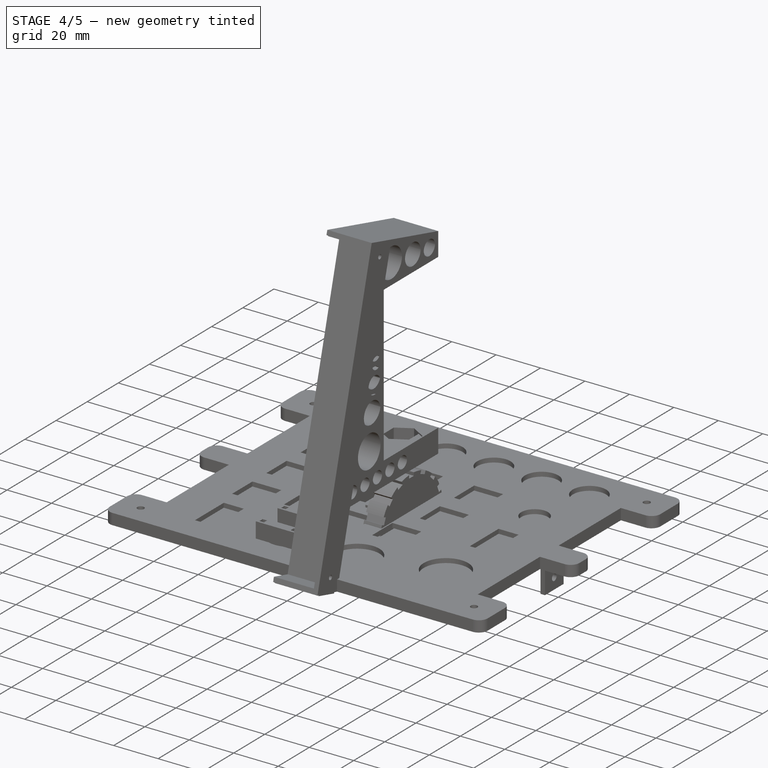
[diagram: stage 4 of 5 — iso view after this stage's code; geometry added in this stage tinted green]
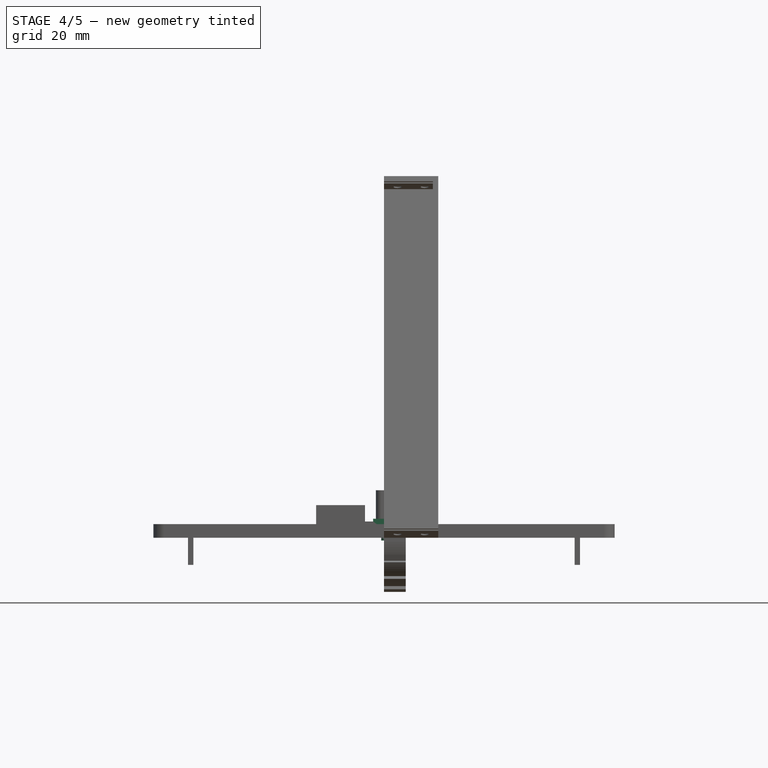
[diagram: stage 4 of 5 — front view after this stage's code; geometry added in this stage tinted green]
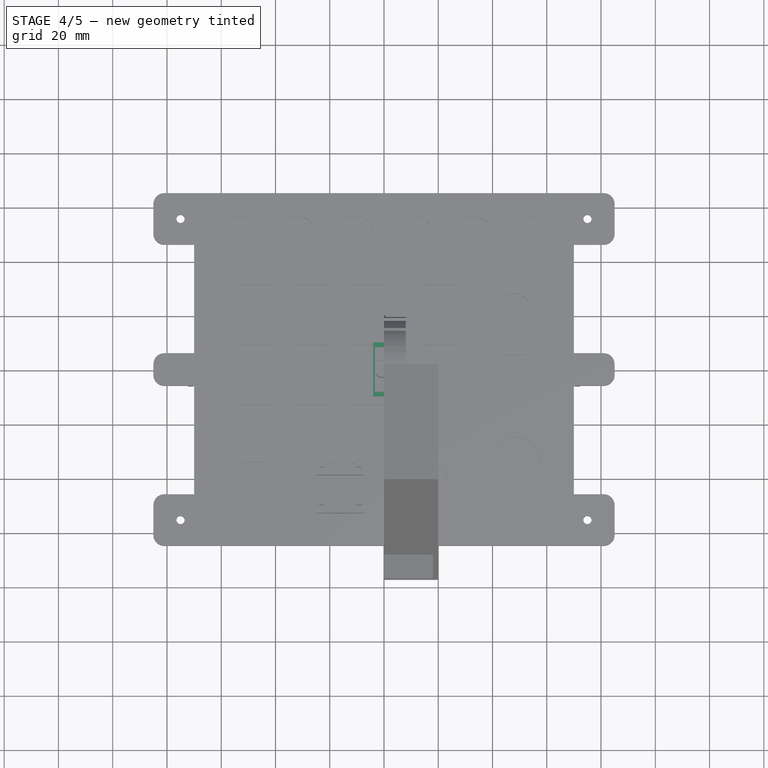
[diagram: stage 4 of 5 — top view after this stage's code; geometry added in this stage tinted green]
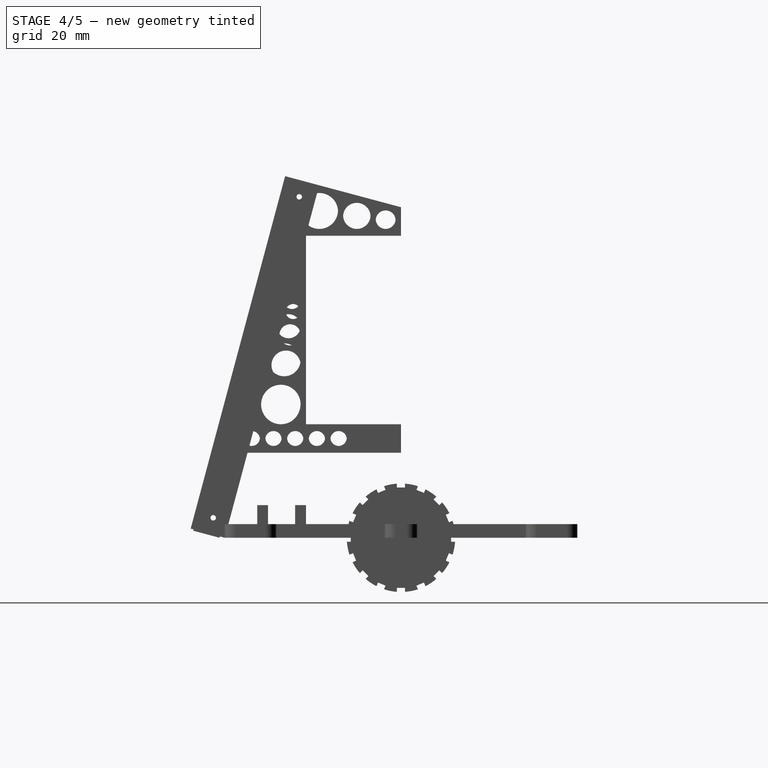
[diagram: stage 4 of 5 — right view after this stage's code; geometry added in this stage tinted green]
FEATURE [PartDesign::Body] Body003  label="Button.Round.Guide"
  Group = -> [Sketch017,Pad006,Sketch018,Pocket012,Sketch019,Pocket013,Sketch020,Pad007]
  Origin = -> Origin003
  Placement = pos=(-32.1,48.92,30.58) rot=(1,0,0;3.14159rad)
  Tip = -> Pad007
FEATURE [Sketcher::SketchObject] Sketch021
  FullyConstrained = true
  MapMode = 5
  Support = -> [XY_Plane004]
  expr: Constraints[11] = 2 * (Spreadsheet.ButtonWidth + 6 * Spreadsheet.Tolerance)
  sketch-geometry (5):
    g0: LineSegment StartX=-7.5 StartY=7.5 StartZ=0 EndX=-7.5 EndY=-7.5 EndZ=0
    g1: LineSegment StartX=-7.5 StartY=-7.5 StartZ=0 EndX=7.5 EndY=-7.5 EndZ=0
    g2: LineSegment StartX=7.5 StartY=-7.5 StartZ=0 EndX=7.5 EndY=7.5 EndZ=0
    g3: LineSegment StartX=7.5 StartY=7.5 StartZ=0 EndX=-7.5 EndY=7.5 EndZ=0
    g4: GeomPoint X=0 Y=0 Z=0
  constraints (12):
    c: Coincident(g0,g1)
    c: Coincident(g1,g2)
    c: Coincident(g2,g3)
    c: Coincident(g3,g0)
    c: Horizontal(g1)
    c: Horizontal(g3)
    c: Vertical(g0)
    c: Vertical(g2)
    c: Symmetric(g1,g0,g4)
    c: Coincident(g4,g-1)
    c: Equal(g0,g3)
    c: DistanceX(g1,g1) = 15
FEATURE [PartDesign::Pad] Pad008
  Direction = (0,0,1)
  Length = 6
  Length2 = 10
  Profile = -> Sketch021
  ReferenceAxis = -> Sketch021 [N_Axis]
  Type = 0
FEATURE [Sketcher::SketchObject] Sketch022
  FullyConstrained = true
  MapMode = 5
  Placement = pos=(0,0,6) rot=(0,0,1;0rad)
  Support = -> [Pad008]
  expr: Constraints[11] = Spreadsheet.ButtonWidth + 3 * Spreadsheet.Tolerance
  sketch-geometry (5):
    g0: LineSegment StartX=-3.375 StartY=3.375 StartZ=0 EndX=-3.375 EndY=-3.375 EndZ=0
    g1: LineSegment StartX=-3.375 StartY=-3.375 StartZ=0 EndX=3.375 EndY=-3.375 EndZ=0
    g2: LineSegment StartX=3.375 StartY=-3.375 StartZ=0 EndX=3.375 EndY=3.375 EndZ=0
    g3: LineSegment StartX=3.375 StartY=3.375 StartZ=0 EndX=-3.375 EndY=3.375 EndZ=0
    g4: GeomPoint X=0 Y=0 Z=0
  constraints (12):
    c: Coincident(g0,g1)
    c: Coincident(g1,g2)
    c: Coincident(g2,g3)
    c: Coincident(g3,g0)
    c: Horizontal(g1)
    c: Horizontal(g3)
    c: Vertical(g0)
    c: Vertical(g2)
    c: Symmetric(g1,g0,g4)
    c: Coincident(g4,g-1)
    c: Equal(g0,g3)
    c: DistanceX(g1,g1) = 6.75
FEATURE [PartDesign::Pocket] Pocket014
  BaseFeature = -> Pad008
  Direction = (0,0,-1)
  Length = 3
  Length2 = 5
  Profile = -> Sketch022
  ReferenceAxis = -> Sketch022 [N_Axis]
  Type = 0
FEATURE [Sketcher::SketchObject] Sketch023
  FullyConstrained = true
  MapMode = 5
  Placement = pos=(0,0,0) rot=(1,0,0;3.14159rad)
  Support = -> [Pocket014]
  expr: Constraints[11] = 2 * (Spreadsheet.ButtonWidth + 6 * Spreadsheet.Tolerance)
  expr: Constraints[22] = 2 * Spreadsheet.ButtonWidth
  sketch-geometry (10):
    g0: LineSegment StartX=-7.5 StartY=7.5 StartZ=0 EndX=-7.5 EndY=-7.5 EndZ=0
    g1: LineSegment StartX=-7.5 StartY=-7.5 StartZ=0 EndX=7.5 EndY=-7.5 EndZ=0
    g2: LineSegment StartX=7.5 StartY=-7.5 StartZ=0 EndX=7.5 EndY=7.5 EndZ=0
    g3: LineSegment StartX=7.5 StartY=7.5 StartZ=0 EndX=-7.5 EndY=7.5 EndZ=0
    g4: GeomPoint X=0 Y=0 Z=0
    g5: LineSegment StartX=-6 StartY=6 StartZ=0 EndX=-6 EndY=-6 EndZ=0
    g6: LineSegment StartX=-6 StartY=-6 StartZ=0 EndX=6 EndY=-6 EndZ=0
    g7: LineSegment StartX=6 StartY=-6 StartZ=0 EndX=6 EndY=6 EndZ=0
    g8: LineSegment StartX=6 StartY=6 StartZ=0 EndX=-6 EndY=6 EndZ=0
    g9: GeomPoint X=0 Y=0 Z=0
  constraints (24):
    c: Coincident(g0,g1)
    c: Coincident(g1,g2)
    c: Coincident(g2,g3)
    c: Coincident(g3,g0)
    c: Horizontal(g1)
    c: Horizontal(g3)
    c: Vertical(g0)
    c: Vertical(g2)
    c: Symmetric(g1,g0,g4)
    c: Coincident(g4,g-1)
    c: Equal(g0,g3)
    c: DistanceX(g1,g1) = 15
    c: Coincident(g5,g6)
    c: Coincident(g6,g7)
    c: Coincident(g7,g8)
    c: Coincident(g8,g5)
    c: Horizontal(g6)
    c: Horizontal(g8)
    c: Vertical(g5)
    c: Vertical(g7)
    c: Symmetric(g6,g5,g9)
    c: Coincident(g9,g4)
    c: DistanceX(g6,g6) = 12
    c: Equal(g5,g8)
FEATURE [PartDesign::Pocket] Pocket015
  BaseFeature = -> Pocket014
  Direction = (0,0,1)
  Length = 5
  Length2 = 5
  Profile = -> Sketch023
  ReferenceAxis = -> Sketch023 [N_Axis]
  Type = 0
FEATURE [PartDesign::Fillet] Fillet001
  Base = -> Pocket015 [Edge22,Edge21,Edge24,Edge26]
  BaseFeature = -> Pocket015
  Radius = 2
  SupportTransform = false
  UseAllEdges = false
  expr: Radius = Spreadsheet.Thickness
FEATURE [Sketcher::SketchObject] Sketch024
  FullyConstrained = true
  MapMode = 5
  Support = -> [XY_Plane005]
  expr: Constraints[11] = 2 * (Spreadsheet.ButtonWidth + 6 * Spreadsheet.Tolerance)
  sketch-geometry (5):
    g0: LineSegment StartX=-7.5 StartY=7.5 StartZ=0 EndX=-7.5 EndY=-7.5 EndZ=0
    g1: LineSegment StartX=-7.5 StartY=-7.5 StartZ=0 EndX=7.5 EndY=-7.5 EndZ=0
    g2: LineSegment StartX=7.5 StartY=-7.5 StartZ=0 EndX=7.5 EndY=7.5 EndZ=0
    g3: LineSegment StartX=7.5 StartY=7.5 StartZ=0 EndX=-7.5 EndY=7.5 EndZ=0
    g4: GeomPoint X=0 Y=0 Z=0
  constraints (12):
    c: Coincident(g0,g1)
    c: Coincident(g1,g2)
    c: Coincident(g2,g3)
    c: Coincident(g3,g0)
    c: Horizontal(g1)
    c: Horizontal(g3)
    c: Vertical(g0)
    c: Vertical(g2)
    c: Symmetric(g1,g0,g4)
    c: Coincident(g4,g-1)
    c: Equal(g0,g3)
    c: DistanceX(g1,g1) = 15
FEATURE [PartDesign::Pad] Pad009
  Direction = (0,0,1)
  Length = 6
  Length2 = 10
  Profile = -> Sketch024
  ReferenceAxis = -> Sketch024 [N_Axis]
  Type = 0
FEATURE [Sketcher::SketchObject] Sketch025
  FullyConstrained = true
  MapMode = 5
  Placement = pos=(0,0,6) rot=(0,0,1;0rad)
  Support = -> [Pad009]
  expr: Constraints[11] = Spreadsheet.ButtonWidth + 3 * Spreadsheet.Tolerance
  sketch-geometry (5):
    g0: LineSegment StartX=-3.375 StartY=3.375 StartZ=0 EndX=-3.375 EndY=-3.375 EndZ=0
    g1: LineSegment StartX=-3.375 StartY=-3.375 StartZ=0 EndX=3.375 EndY=-3.375 EndZ=0
    g2: LineSegment StartX=3.375 StartY=-3.375 StartZ=0 EndX=3.375 EndY=3.375 EndZ=0
    g3: LineSegment StartX=3.375 StartY=3.375 StartZ=0 EndX=-3.375 EndY=3.375 EndZ=0
    g4: GeomPoint X=0 Y=0 Z=0
  constraints (12):
    c: Coincident(g0,g1)
    c: Coincident(g1,g2)
    c: Coincident(g2,g3)
    c: Coincident(g3,g0)
    c: Horizontal(g1)
    c: Horizontal(g3)
    c: Vertical(g0)
    c: Vertical(g2)
    c: Symmetric(g1,g0,g4)
    c: Coincident(g4,g-1)
    c: Equal(g0,g3)
    c: DistanceX(g1,g1) = 6.75
FEATURE [PartDesign::Pocket] Pocket016
  BaseFeature = -> Pad009
  Direction = (0,0,-1)
  Length = 3
  Length2 = 5
  Profile = -> Sketch025
  ReferenceAxis = -> Sketch025 [N_Axis]
  Type = 0
  expr: Length = 3
FEATURE [Sketcher::SketchObject] Sketch026
  FullyConstrained = true
  MapMode = 5
  Placement = pos=(0,0,0) rot=(1,0,0;3.14159rad)
  Support = -> [Pocket016]
  expr: Constraints[11] = 2 * (Spreadsheet.ButtonWidth + 6 * Spreadsheet.Tolerance)
  expr: Constraints[22] = 2 * Spreadsheet.ButtonWidth
  sketch-geometry (10):
    g0: LineSegment StartX=-7.5 StartY=7.5 StartZ=0 EndX=-7.5 EndY=-7.5 EndZ=0
    g1: LineSegment StartX=-7.5 StartY=-7.5 StartZ=0 EndX=7.5 EndY=-7.5 EndZ=0
    g2: LineSegment StartX=7.5 StartY=-7.5 StartZ=0 EndX=7.5 EndY=7.5 EndZ=0
    g3: LineSegment StartX=7.5 StartY=7.5 StartZ=0 EndX=-7.5 EndY=7.5 EndZ=0
    g4: GeomPoint X=0 Y=0 Z=0
    g5: LineSegment StartX=-6 StartY=6 StartZ=0 EndX=-6 EndY=-6 EndZ=0
    g6: LineSegment StartX=-6 StartY=-6 StartZ=0 EndX=6 EndY=-6 EndZ=0
    g7: LineSegment StartX=6 StartY=-6 StartZ=0 EndX=6 EndY=6 EndZ=0
    g8: LineSegment StartX=6 StartY=6 StartZ=0 EndX=-6 EndY=6 EndZ=0
    g9: GeomPoint X=0 Y=0 Z=0
  constraints (24):
    c: Coincident(g0,g1)
    c: Coincident(g1,g2)
    c: Coincident(g2,g3)
    c: Coincident(g3,g0)
    c: Horizontal(g1)
    c: Horizontal(g3)
    c: Vertical(g0)
    c: Vertical(g2)
    c: Symmetric(g1,g0,g4)
    c: Coincident(g4,g-1)
    c: Equal(g0,g3)
    c: DistanceX(g1,g1) = 15
    c: Coincident(g5,g6)
    c: Coincident(g6,g7)
    c: Coincident(g7,g8)
    c: Coincident(g8,g5)
    c: Horizontal(g6)
    c: Horizontal(g8)
    c: Vertical(g5)
    c: Vertical(g7)
    c: Symmetric(g6,g5,g9)
    c: Coincident(g9,g4)
    c: DistanceX(g6,g6) = 12
    c: Equal(g5,g8)
FEATURE [PartDesign::Pocket] Pocket017
  BaseFeature = -> Pocket016
  Direction = (0,0,1)
  Length = 5
  Length2 = 5
  Profile = -> Sketch026
  ReferenceAxis = -> Sketch026 [N_Axis]
  Type = 0
FEATURE [PartDesign::Fillet] Fillet002
  Base = -> Pocket017 [Edge22,Edge21,Edge24,Edge26]
  BaseFeature = -> Pocket017
  Radius = 2
  SupportTransform = false
  UseAllEdges = false
  expr: Radius = Spreadsheet.Thickness
FEATURE [PartDesign::Body] Body005  label="Button.Square"
  Group = -> [Sketch024,Pad009,Sketch025,Pocket016,Sketch026,Pocket017,Fillet002]
  Origin = -> Origin005
  Placement = pos=(-47.97,2.48,30.42) rot=(1,0,0;3.14159rad)
  Tip = -> Fillet002
FEATURE [Sketcher::SketchObject] Sketch027
  FullyConstrained = true
  MapMode = 5
  Placement = pos=(0,0,0) rot=(1,0,0;3.14159rad)
  Support = -> [Fillet001]
  sketch-geometry (1):
    g0: Circle CenterX=0 CenterY=0 CenterZ=0 NormalX=0 NormalY=0 NormalZ=1 AngleXU=0 Radius=1
  constraints (2):
    c: Coincident(g0,g-1)
    c: Diameter(g0) = 2
FEATURE [PartDesign::Pad] Pad010
  BaseFeature = -> Fillet001
  Direction = (0,0,-1)
  Length = 1
  Length2 = 10
  Profile = -> Sketch027
  ReferenceAxis = -> Sketch027 [N_Axis]
  Type = 0
FEATURE [PartDesign::Body] Body004  label="Button.Square.Guide"
  Group = -> [Sketch021,Pad008,Sketch022,Pocket014,Sketch023,Pocket015,Fillet001,Sketch027,Pad010]
  Origin = -> Origin004
  Placement = pos=(-26.92,2.51,30.46) rot=(1,0,0;3.14159rad)
  Tip = -> Pad010
FEATURE [Sketcher::SketchObject] Sketch059  label="Button.Rocker.Pad.Sketch"
  FullyConstrained = true
  MapMode = 5
  Support = -> [XY_Plane014]
  expr: Constraints[8] = Spreadsheet.ButtonWidth * 2.5 + 2 * Spreadsheet.Thickness + 4 * Spreadsheet.Tolerance
  expr: Constraints[9] = Spreadsheet.ButtonWidth + 4 * Spreadsheet.Tolerance + Spreadsheet.Thickness / 2
  sketch-geometry (4):
    g0: LineSegment StartX=-4 StartY=10 StartZ=0 EndX=4 EndY=10 EndZ=0
    g1: LineSegment StartX=4 StartY=10 StartZ=0 EndX=4 EndY=-10 EndZ=0
    g2: LineSegment StartX=4 StartY=-10 StartZ=0 EndX=-4 EndY=-10 EndZ=0
    g3: LineSegment StartX=-4 StartY=-10 StartZ=0 EndX=-4 EndY=10 EndZ=0
  constraints (11):
    c: Coincident(g0,g1)
    c: Coincident(g1,g2)
    c: Coincident(g2,g3)
    c: Coincident(g3,g0)
    c: Horizontal(g0)
    c: Horizontal(g2)
    c: Vertical(g1)
    c: Vertical(g3)
    c: DistanceY(g3,g3) = 20
    c: DistanceX(g2,g2) = 8
    c: Symmetric(g1,g0,g-1)
FEATURE [PartDesign::Pad] Pad040  label="Button.Rocker.Pad"
  Direction = (0,0,1)
  Length = 7
  Length2 = 10
  Profile = -> Sketch059
  ReferenceAxis = -> Sketch059 [N_Axis]
  Type = 0
  expr: Length = Spreadsheet.Thickness * 3 + 1
FEATURE [Sketcher::SketchObject] Sketch060  label="Button.Rocker.Pocket.Sketch"
  FullyConstrained = true
  MapMode = 5
  Placement = pos=(0,0,7) rot=(0,0,1;0rad)
  Support = -> [Pad040]
  expr: Constraints[10] = Spreadsheet.ButtonWidth * 2.5 + 6 * Spreadsheet.Tolerance
  expr: Constraints[9] = Spreadsheet.ButtonWidth + 3 * Spreadsheet.Tolerance
  sketch-geometry (4):
    g0: LineSegment StartX=-3.375 StartY=8.25 StartZ=0 EndX=3.375 EndY=8.25 EndZ=0
    g1: LineSegment StartX=3.375 StartY=8.25 StartZ=0 EndX=3.375 EndY=-8.25 EndZ=0
    g2: LineSegment StartX=3.375 StartY=-8.25 StartZ=0 EndX=-3.375 EndY=-8.25 EndZ=0
    g3: LineSegment StartX=-3.375 StartY=-8.25 StartZ=0 EndX=-3.375 EndY=8.25 EndZ=0
  constraints (11):
    c: Coincident(g0,g1)
    c: Coincident(g1,g2)
    c: Coincident(g2,g3)
    c: Coincident(g3,g0)
    c: Horizontal(g0)
    c: Horizontal(g2)
    c: Vertical(g1)
    c: Vertical(g3)
    c: Symmetric(g0,g1,g-1)
    c: DistanceX(g0,g0) = 6.75
    c: DistanceY(g1,g1) = 16.5
FEATURE [PartDesign::Pocket] Pocket018  label="Button.Rocker.Pocket"
  BaseFeature = -> Pad040
  Direction = (0,0,-1)
  Length = 2.5
  Length2 = 5
  Profile = -> Sketch060
  ReferenceAxis = -> Sketch060 [N_Axis]
  Type = 0
FEATURE [Sketcher::SketchObject] Sketch061  label="Button.Rocker.SupportPocket.Sketch"
  FullyConstrained = true
  MapMode = 5
  Placement = pos=(0,0,0) rot=(1,0,0;3.14159rad)
  Support = -> [Pocket018]
  expr: Constraints[18] = Spreadsheet.ButtonWidth + 4 * Spreadsheet.Tolerance + Spreadsheet.Thickness / 2
  expr: Constraints[19] = Spreadsheet.ButtonWidth + 4 * Spreadsheet.Tolerance + Spreadsheet.Thickness / 2 + Spreadsheet.Thickness
  expr: Constraints[20] = Spreadsheet.ButtonWidth * 2.5 + 2 * Spreadsheet.Thickness + 4 * Spreadsheet.Tolerance
  expr: Constraints[21] = Spreadsheet.ButtonWidth * 2.5 + 4 * Spreadsheet.Tolerance + Spreadsheet.Thickness / 2
  sketch-geometry (8):
    g0: LineSegment StartX=-4 StartY=8.5 StartZ=0 EndX=4 EndY=8.5 EndZ=0
    g1: LineSegment StartX=4 StartY=8.5 StartZ=0 EndX=4 EndY=-8.5 EndZ=0
    g2: LineSegment StartX=4 StartY=-8.5 StartZ=0 EndX=-4 EndY=-8.5 EndZ=0
    g3: LineSegment StartX=-4 StartY=-8.5 StartZ=0 EndX=-4 EndY=8.5 EndZ=0
    g4: LineSegment StartX=-5 StartY=10 StartZ=0 EndX=5 EndY=10 EndZ=0
    g5: LineSegment StartX=5 StartY=10 StartZ=0 EndX=5 EndY=-10 EndZ=0
    g6: LineSegment StartX=5 StartY=-10 StartZ=0 EndX=-5 EndY=-10 EndZ=0
    g7: LineSegment StartX=-5 StartY=-10 StartZ=0 EndX=-5 EndY=10 EndZ=0
  constraints (22):
    c: Coincident(g0,g1)
    c: Coincident(g1,g2)
    c: Coincident(g2,g3)
    c: Coincident(g3,g0)
    c: Horizontal(g0)
    c: Horizontal(g2)
    c: Vertical(g1)
    c: Vertical(g3)
    c: Coincident(g4,g5)
    c: Coincident(g5,g6)
    c: Coincident(g6,g7)
    c: Coincident(g7,g4)
    c: Horizontal(g4)
    c: Horizontal(g6)
    c: Vertical(g5)
    c: Vertical(g7)
    c: Symmetric(g4,g5,g-1)
    c: Symmetric(g0,g1,g-1)
    c: DistanceX(g0,g0) = 8
    c: DistanceX(g4,g4) = 10
    c: DistanceY(g5,g5) = 20
    c: DistanceY(g1,g1) = 17
FEATURE [PartDesign::Pocket] Pocket019  label="Button.Rocker.SupportPocket"
  BaseFeature = -> Pocket018
  Direction = (0,0,1)
  Length = 6
  Length2 = 5
  Profile = -> Sketch061
  ReferenceAxis = -> Sketch061 [N_Axis]
  Type = 0
  expr: Length = Spreadsheet.Thickness * 3
FEATURE [Sketcher::SketchObject] Sketch072  label="Button.Rocker.RockerPocket.Sketch"
  ExternalGeometry = -> [Pocket019]
  FullyConstrained = true
  MapMode = 5
  Placement = pos=(-4,0,0) rot=(0.57735,-0.57735,-0.57735;2.0944rad)
  Support = -> [Pocket019]
  expr: Constraints[6] = 2
  sketch-geometry (3):
    g0: LineSegment StartX=-8.5 StartY=0 StartZ=0 EndX=0 EndY=2 EndZ=0
    g1: LineSegment StartX=0 StartY=2 StartZ=0 EndX=8.5 EndY=0 EndZ=0
    g2: LineSegment StartX=8.5 StartY=0 StartZ=0 EndX=-8.5 EndY=0 EndZ=0
  constraints (7):
    c: Coincident(g-3,g0)
    c: PointOnObject(g0,g-2)
    c: Coincident(g0,g1)
    c: Coincident(g1,g-3)
    c: Coincident(g1,g2)
    c: Coincident(g2,g0)
    c: DistanceY(g-1,g0) = 2
FEATURE [PartDesign::Pocket] Pocket025  label="Button.Rocker.RockerPocket"
  BaseFeature = -> Pocket019
  Direction = (1,0,0)
  Length = 10
  Length2 = 5
  Profile = -> Sketch072
  ReferenceAxis = -> Sketch072 [N_Axis]
  Type = 0
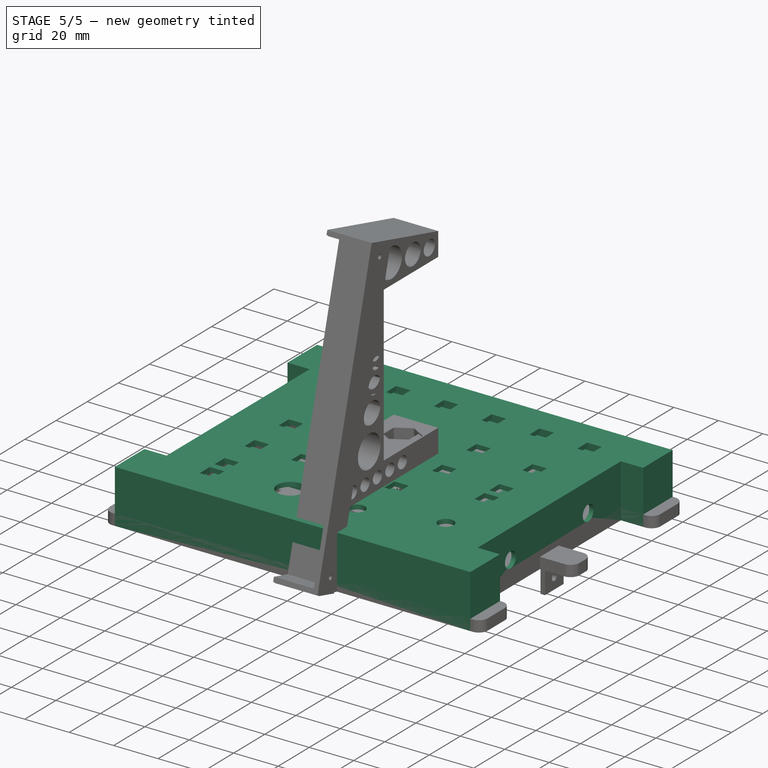
[diagram: stage 5 of 5 — iso view after this stage's code; geometry added in this stage tinted green]
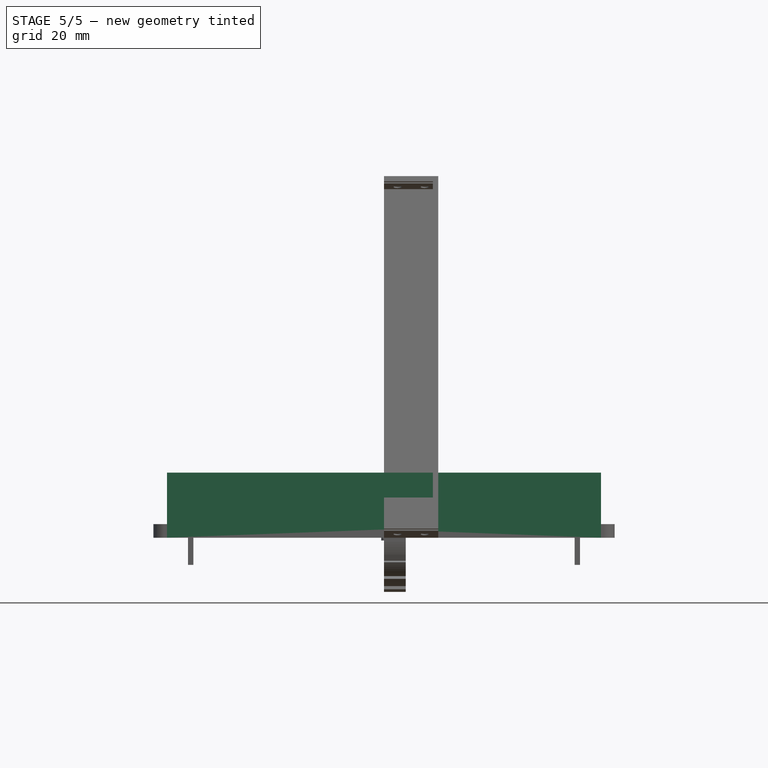
[diagram: stage 5 of 5 — front view after this stage's code; geometry added in this stage tinted green]
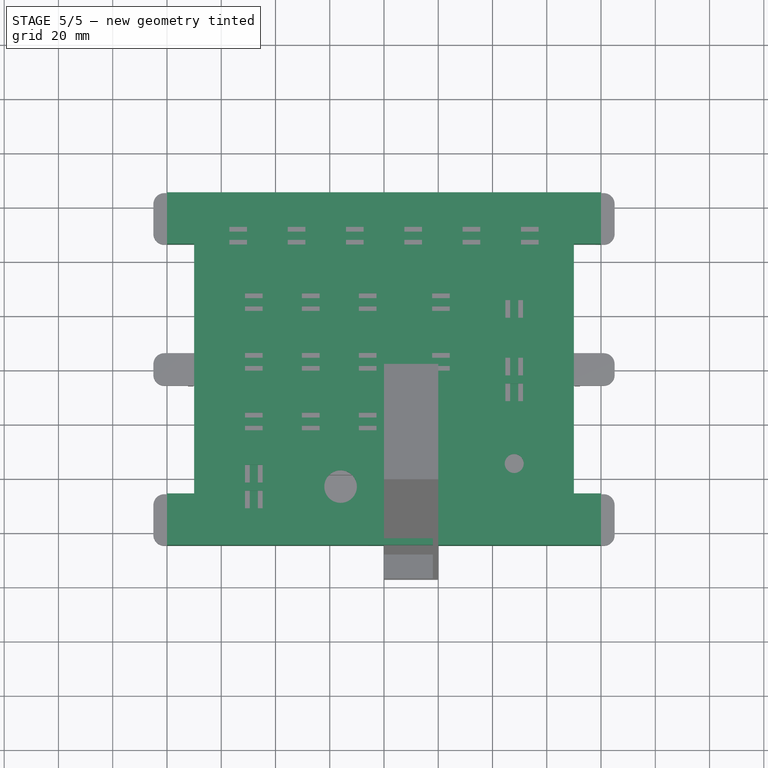
[diagram: stage 5 of 5 — top view after this stage's code; geometry added in this stage tinted green]
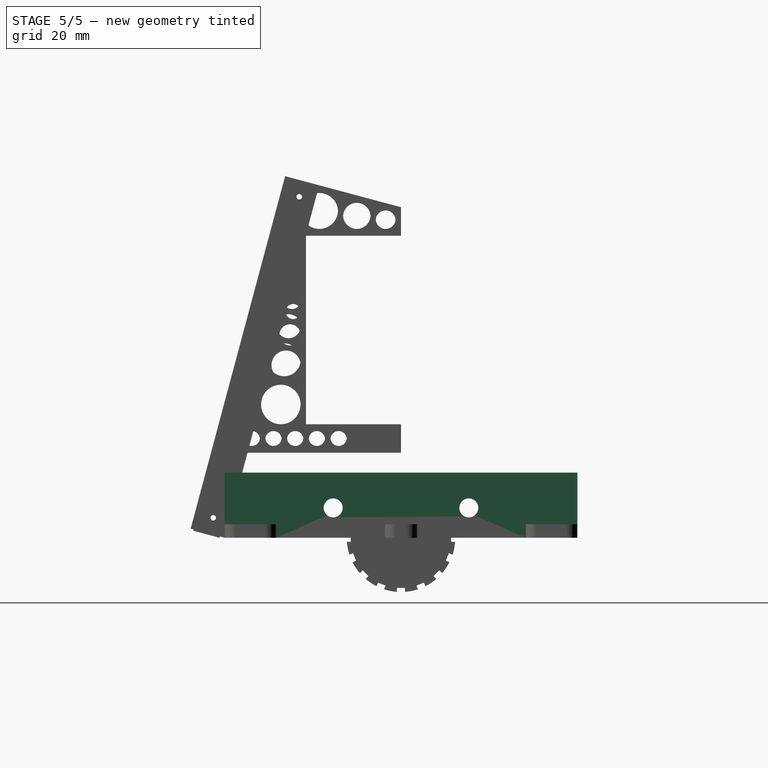
[diagram: stage 5 of 5 — right view after this stage's code; geometry added in this stage tinted green]
FEATURE [Spreadsheet::Sheet] Spreadsheet
  cells = A1=Tolerance; B1(Tolerance)=0.25; A2=Thickness; B2(Thickness)=2; A3=Width; B3(Width)=130; A4=Length; B4(Length)=160; A5=Height; B5(Height)=26; A6=ButtonWidth; B6(ButtonWidth)=6; A7=WireWidth; B7(WireWidth)=3; A8=TableWidth; B8(TableWidth)=70
FEATURE [Image::ImagePlane] ImagePlane
  Placement = pos=(0,0,21) rot=(0,0,1;0rad)
  XSize = 160
  YSize = 130
  expr: XSize = Spreadsheet.Length
  expr: YSize = Spreadsheet.Width
FEATURE [Sketcher::SketchObject] Sketch003
  FullyConstrained = true
  MapMode = 5
  Support = -> [XY_Plane001]
  expr: Constraints[32] = Spreadsheet.Length
  expr: Constraints[33] = Spreadsheet.Width
  sketch-geometry (13):
    g0: LineSegment StartX=-80 StartY=-65 StartZ=0 EndX=80 EndY=-65 EndZ=0
    g1: LineSegment StartX=80 StartY=65 StartZ=0 EndX=-80 EndY=65 EndZ=0
    g2: GeomPoint X=0 Y=0 Z=0
    g3: LineSegment StartX=-80 StartY=46 StartZ=0 EndX=-70 EndY=46 EndZ=0
    g4: LineSegment StartX=-70 StartY=46 StartZ=0 EndX=-70 EndY=-46 EndZ=0
    g5: LineSegment StartX=-70 StartY=-46 StartZ=0 EndX=-80 EndY=-46 EndZ=0
    g6: LineSegment StartX=80 StartY=46 StartZ=0 EndX=70 EndY=46 EndZ=0
    g7: LineSegment StartX=70 StartY=46 StartZ=0 EndX=70 EndY=-46 EndZ=0
    g8: LineSegment StartX=70 StartY=-46 StartZ=0 EndX=80 EndY=-46 EndZ=0
    g9: LineSegment StartX=-80 StartY=65 StartZ=0 EndX=-80 EndY=46 EndZ=0
    g10: LineSegment StartX=-80 StartY=-46 StartZ=0 EndX=-80 EndY=-65 EndZ=0
    g11: LineSegment StartX=80 StartY=65 StartZ=0 EndX=80 EndY=46 EndZ=0
    g12: LineSegment StartX=80 StartY=-46 StartZ=0 EndX=80 EndY=-65 EndZ=0
  constraints (36):
    c: Horizontal(g0)
    c: Horizontal(g1)
    c: Symmetric(g0,g1,g2)
    c: Coincident(g2,g-1)
    c: Horizontal(g3)
    c: Coincident(g3,g4)
    c: Vertical(g4)
    c: Coincident(g4,g5)
    c: Coincident(g6,g7)
    c: Vertical(g7)
    c: Coincident(g7,g8)
    c: Horizontal(g8)
    c: Horizontal(g6)
    c: Horizontal(g5)
    c: Coincident(g1,g9)
    c: Coincident(g9,g3)
    c: Vertical(g9)
    c: Coincident(g5,g10)
    c: Coincident(g10,g0)
    c: Vertical(g10)
    c: Coincident(g1,g11)
    c: Coincident(g11,g6)
    c: Coincident(g8,g12)
    c: Coincident(g12,g0)
    c: Vertical(g11)
    c: Vertical(g12)
    c: Equal(g4,g7)
    c: Equal(g6,g3)
    c: Equal(g11,g9)
    c: Equal(g5,g3)
    c: Equal(g6,g8)
    c: Equal(g10,g9)
    c: DistanceX(g0,g0) = 160
    c: DistanceY(g0,g1) = 130
    c: DistanceX(g3,g3) = 10
    c: DistanceY(g4,g4) = 92
FEATURE [PartDesign::Pad] Pad001
  Direction = (0,0,1)
  Length = 24
  Length2 = 10
  Profile = -> Sketch003
  ReferenceAxis = -> Sketch003 [N_Axis]
  Type = 0
  expr: Length = Spreadsheet.Height - Spreadsheet.Thickness
FEATURE [Sketcher::SketchObject] Sketch004
  FullyConstrained = true
  MapMode = 5
  Placement = pos=(0,0,0) rot=(1,0,0;3.14159rad)
  Support = -> [Pad001]
  expr: Constraints[10] = Spreadsheet.Length - 20 - 2 * Spreadsheet.Thickness
  expr: Constraints[11] = Spreadsheet.Width - 2 * Spreadsheet.Thickness
  sketch-geometry (5):
    g0: LineSegment StartX=-68 StartY=63 StartZ=0 EndX=-68 EndY=-63 EndZ=0
    g1: LineSegment StartX=-68 StartY=-63 StartZ=0 EndX=68 EndY=-63 EndZ=0
    g2: LineSegment StartX=68 StartY=-63 StartZ=0 EndX=68 EndY=63 EndZ=0
    g3: LineSegment StartX=68 StartY=63 StartZ=0 EndX=-68 EndY=63 EndZ=0
    g4: GeomPoint X=0 Y=0 Z=0
  constraints (12):
    c: Coincident(g0,g1)
    c: Coincident(g1,g2)
    c: Coincident(g2,g3)
    c: Coincident(g3,g0)
    c: Horizontal(g1)
    c: Horizontal(g3)
    c: Vertical(g0)
    c: Vertical(g2)
    c: Symmetric(g1,g0,g4)
    c: Coincident(g4,g-1)
    c: DistanceX(g1,g1) = 136
    c: DistanceY(g2,g2) = 126
FEATURE [PartDesign::Pocket] Pocket002
  BaseFeature = -> Pad001
  Direction = (0,0,1)
  Length = 22
  Length2 = 5
  Profile = -> Sketch004
  ReferenceAxis = -> Sketch004 [N_Axis]
  Type = 0
  expr: Length = Spreadsheet.Height - 2 * Spreadsheet.Thickness
FEATURE [Sketcher::SketchObject] Sketch005
  ExternalGeometry = -> [Pocket002]
  FullyConstrained = true
  MapMode = 5
  Placement = pos=(70,0,0) rot=(0.57735,0.57735,0.57735;2.0944rad)
  Support = -> [Pocket002]
  expr: Constraints[4] = Spreadsheet.Height / 2
  sketch-geometry (2):
    g0: Circle CenterX=-25 CenterY=11 CenterZ=0 NormalX=0 NormalY=0 NormalZ=1 AngleXU=0 Radius=3.5
    g1: Circle CenterX=25 CenterY=11 CenterZ=0 NormalX=0 NormalY=0 NormalZ=1 AngleXU=0 Radius=3.5
  constraints (5):
    c: Equal(g0,g1)
    c: Diameter(g0) = 7
    c: Symmetric(g0,g1,g-2)
    c: DistanceX(g0,g1) = 50
    c: DistanceY(g0,g-3) = 13
FEATURE [PartDesign::Pocket] Pocket003
  BaseFeature = -> Pocket002
  Direction = (-1,0,0)
  Length = 5
  Length2 = 5
  Profile = -> Sketch005
  ReferenceAxis = -> Sketch005 [N_Axis]
  Type = 1
FEATURE [Sketcher::SketchObject] Sketch006
  FullyConstrained = true
  MapMode = 5
  Placement = pos=(0,-65,0) rot=(1,0,0;1.5708rad)
  Support = -> [Pocket003]
  sketch-geometry (5):
    g0: LineSegment StartX=-1.5 StartY=3 StartZ=0 EndX=-1.5 EndY=0 EndZ=0
    g1: LineSegment StartX=-1.5 StartY=0 StartZ=0 EndX=1.5 EndY=0 EndZ=0
    g2: LineSegment StartX=1.5 StartY=0 StartZ=0 EndX=1.5 EndY=3 EndZ=0
    g3: LineSegment StartX=1.5 StartY=3 StartZ=0 EndX=-1.5 EndY=3 EndZ=0
    g4: GeomPoint X=0 Y=1.5 Z=0
  constraints (13):
    c: Coincident(g0,g1)
    c: Coincident(g1,g2)
    c: Coincident(g2,g3)
    c: Coincident(g3,g0)
    c: Horizontal(g1)
    c: Horizontal(g3)
    c: Vertical(g0)
    c: Vertical(g2)
    c: Symmetric(g1,g0,g4)
    c: Equal(g0,g1)
    c: DistanceX(g3,g3) = 3
    c: PointOnObject(g4,g-2)
    c: PointOnObject(g1,g-1)
FEATURE [PartDesign::Pocket] Pocket004
  BaseFeature = -> Pocket003
  Direction = (0,1,-2e-16)
  Length = 2
  Length2 = 5
  Profile = -> Sketch006
  ReferenceAxis = -> Sketch006 [N_Axis]
  Type = 0
  expr: Length = Spreadsheet.Thickness
FEATURE [Sketcher::SketchObject] Sketch002
  FullyConstrained = true
  MapMode = 5
  Placement = pos=(0,0,24) rot=(0,0,1;0rad)
  Support = -> [Pocket004]
  expr: Constraints[326] = Spreadsheet.ButtonWidth / 2
  expr: Constraints[351] = Spreadsheet.ButtonWidth / 2
  expr: Constraints[65] = Spreadsheet.ButtonWidth + 2 * Spreadsheet.Tolerance
  sketch-geometry (144):
    g0: LineSegment StartX=-48 StartY=24.5 StartZ=0 EndX=-48 EndY=2.5 EndZ=0
    g1: LineSegment StartX=-48 StartY=2.5 StartZ=0 EndX=-48 EndY=-19.5 EndZ=0
    g2: LineSegment StartX=-48 StartY=-19.5 StartZ=0 EndX=-48 EndY=-43.5 EndZ=0
    g3: LineSegment StartX=-48 StartY=24.5 StartZ=0 EndX=-27 EndY=24.5 EndZ=0
    g4: LineSegment StartX=-27 StartY=24.5 StartZ=0 EndX=-6 EndY=24.5 EndZ=0
    g5: LineSegment StartX=-6 StartY=24.5 StartZ=0 EndX=21 EndY=24.5 EndZ=0
    g6: LineSegment StartX=-48 StartY=2.5 StartZ=0 EndX=-27 EndY=2.5 EndZ=0
    g7: LineSegment StartX=-27 StartY=2.5 StartZ=0 EndX=-6 EndY=2.5 EndZ=0
    g8: LineSegment StartX=-6 StartY=2.5 StartZ=0 EndX=21 EndY=2.5 EndZ=0
    g9: LineSegment StartX=-48 StartY=-19.5 StartZ=0 EndX=-27 EndY=-19.5 EndZ=0
    g10: LineSegment StartX=-27 StartY=-19.5 StartZ=0 EndX=-6 EndY=-19.5 EndZ=0
    g11: LineSegment StartX=-6 StartY=-19.5 StartZ=0 EndX=15 EndY=-19.5 EndZ=0
    g12: LineSegment StartX=-48 StartY=-43.5 StartZ=0 EndX=-16 EndY=-43.5 EndZ=0
    g13: LineSegment StartX=-16 StartY=-43.5 StartZ=0 EndX=14 EndY=-43.5 EndZ=0
    g14: LineSegment StartX=14 StartY=-43.5 StartZ=0 EndX=14 EndY=-35 EndZ=0
    g15: LineSegment StartX=14 StartY=-35 StartZ=0 EndX=48 EndY=-35 EndZ=0
    g16: LineSegment StartX=48 StartY=-35 StartZ=0 EndX=48 EndY=-4 EndZ=0
    g17: LineSegment StartX=48 StartY=-4 StartZ=0 EndX=48 EndY=22 EndZ=0
    g18: LineSegment StartX=-57 StartY=52.25 StartZ=0 EndX=-57 EndY=45.75 EndZ=0
    g19: LineSegment StartX=-57 StartY=45.75 StartZ=0 EndX=-50.5 EndY=45.75 EndZ=0
    g20: LineSegment StartX=-50.5 StartY=45.75 StartZ=0 EndX=-50.5 EndY=52.25 EndZ=0
    g21: LineSegment StartX=-50.5 StartY=52.25 StartZ=0 EndX=-57 EndY=52.25 EndZ=0
    g22: GeomPoint X=-53.75 Y=49 Z=0
    g23: LineSegment StartX=-35.5 StartY=52.25 StartZ=0 EndX=-35.5 EndY=45.75 EndZ=0
    g24: LineSegment StartX=-35.5 StartY=45.75 StartZ=0 EndX=-29 EndY=45.75 EndZ=0
    g25: LineSegment StartX=-29 StartY=45.75 StartZ=0 EndX=-29 EndY=52.25 EndZ=0
    g26: LineSegment StartX=-29 StartY=52.25 StartZ=0 EndX=-35.5 EndY=52.25 EndZ=0
    g27: GeomPoint X=-32.25 Y=49 Z=0
    g28: LineSegment StartX=-14 StartY=52.25 StartZ=0 EndX=-14 EndY=45.75 EndZ=0
    g29: LineSegment StartX=-14 StartY=45.75 StartZ=0 EndX=-7.5 EndY=45.75 EndZ=0
    g30: LineSegment StartX=-7.5 StartY=45.75 StartZ=0 EndX=-7.5 EndY=52.25 EndZ=0
    g31: LineSegment StartX=-7.5 StartY=52.25 StartZ=0 EndX=-14 EndY=52.25 EndZ=0
    g32: GeomPoint X=-10.75 Y=49 Z=0
    g33: LineSegment StartX=7.5 StartY=52.25 StartZ=0 EndX=7.5 EndY=45.75 EndZ=0
    g34: LineSegment StartX=7.5 StartY=45.75 StartZ=0 EndX=14 EndY=45.75 EndZ=0
    g35: LineSegment StartX=14 StartY=45.75 StartZ=0 EndX=14 EndY=52.25 EndZ=0
    g36: LineSegment StartX=14 StartY=52.25 StartZ=0 EndX=7.5 EndY=52.25 EndZ=0
    g37: GeomPoint X=10.75 Y=49 Z=0
    g38: LineSegment StartX=29 StartY=52.25 StartZ=0 EndX=29 EndY=45.75 EndZ=0
    g39: LineSegment StartX=29 StartY=45.75 StartZ=0 EndX=35.5 EndY=45.75 EndZ=0
    g40: LineSegment StartX=35.5 StartY=45.75 StartZ=0 EndX=35.5 EndY=52.25 EndZ=0
    g41: LineSegment StartX=35.5 StartY=52.25 StartZ=0 EndX=29 EndY=52.25 EndZ=0
    g42: GeomPoint X=32.25 Y=49 Z=0
    g43: LineSegment StartX=50.5 StartY=52.25 StartZ=0 EndX=50.5 EndY=45.75 EndZ=0
    g44: LineSegment StartX=50.5 StartY=45.75 StartZ=0 EndX=57 EndY=45.75 EndZ=0
    g45: LineSegment StartX=57 StartY=45.75 StartZ=0 EndX=57 EndY=52.25 EndZ=0
    g46: LineSegment StartX=57 StartY=52.25 StartZ=0 EndX=50.5 EndY=52.25 EndZ=0
    g47: GeomPoint X=53.75 Y=49 Z=0
    g48: LineSegment StartX=-53.75 StartY=49 StartZ=0 EndX=-32.25 EndY=49 EndZ=0
    g49: LineSegment StartX=-32.25 StartY=49 StartZ=0 EndX=-10.75 EndY=49 EndZ=0
    g50: LineSegment StartX=10.75 StartY=49 StartZ=0 EndX=32.25 EndY=49 EndZ=0
    g51: LineSegment StartX=32.25 StartY=49 StartZ=0 EndX=53.75 EndY=49 EndZ=0
    g52: LineSegment StartX=-10.75 StartY=49 StartZ=0 EndX=10.75 EndY=49 EndZ=0
    g53: LineSegment StartX=-51.25 StartY=27.75 StartZ=0 EndX=-51.25 EndY=21.25 EndZ=0
    g54: LineSegment StartX=-51.25 StartY=21.25 StartZ=0 EndX=-44.75 EndY=21.25 EndZ=0
    g55: LineSegment StartX=-44.75 StartY=21.25 StartZ=0 EndX=-44.75 EndY=27.75 EndZ=0
    g56: LineSegment StartX=-44.75 StartY=27.75 StartZ=0 EndX=-51.25 EndY=27.75 EndZ=0
    g57: GeomPoint X=-48 Y=24.5 Z=0
    g58: LineSegment StartX=-48 StartY=24.5 StartZ=0 EndX=-26.5 EndY=24.5 EndZ=0
    g59: LineSegment StartX=-30.25 StartY=27.75 StartZ=0 EndX=-30.25 EndY=21.25 EndZ=0
    g60: LineSegment StartX=-30.25 StartY=21.25 StartZ=0 EndX=-23.75 EndY=21.25 EndZ=0
    g61: LineSegment StartX=-23.75 StartY=21.25 StartZ=0 EndX=-23.75 EndY=27.75 EndZ=0
    g62: LineSegment StartX=-23.75 StartY=27.75 StartZ=0 EndX=-30.25 EndY=27.75 EndZ=0
    g63: GeomPoint X=-27 Y=24.5 Z=0
    g64: LineSegment StartX=-9.25 StartY=27.75 StartZ=0 EndX=-9.25 EndY=21.25 EndZ=0
    g65: LineSegment StartX=-9.25 StartY=21.25 StartZ=0 EndX=-2.75 EndY=21.25 EndZ=0
    g66: LineSegment StartX=-2.75 StartY=21.25 StartZ=0 EndX=-2.75 EndY=27.75 EndZ=0
    g67: LineSegment StartX=-2.75 StartY=27.75 StartZ=0 EndX=-9.25 EndY=27.75 EndZ=0
    g68: GeomPoint X=-6 Y=24.5 Z=0
    g69: LineSegment StartX=17.75 StartY=27.75 StartZ=0 EndX=17.75 EndY=21.25 EndZ=0
    g70: LineSegment StartX=17.75 StartY=21.25 StartZ=0 EndX=24.25 EndY=21.25 EndZ=0
    g71: LineSegment StartX=24.25 StartY=21.25 StartZ=0 EndX=24.25 EndY=27.75 EndZ=0
    g72: LineSegment StartX=24.25 StartY=27.75 StartZ=0 EndX=17.75 EndY=27.75 EndZ=0
    g73: GeomPoint X=21 Y=24.5 Z=0
    g74: LineSegment StartX=-51.25 StartY=5.75 StartZ=0 EndX=-51.25 EndY=-0.75 EndZ=0
    g75: LineSegment StartX=-51.25 StartY=-0.75 StartZ=0 EndX=-44.75 EndY=-0.75 EndZ=0
    g76: LineSegment StartX=-44.75 StartY=-0.75 StartZ=0 EndX=-44.75 EndY=5.75 EndZ=0
    g77: LineSegment StartX=-44.75 StartY=5.75 StartZ=0 EndX=-51.25 EndY=5.75 EndZ=0
    g78: GeomPoint X=-48 Y=2.5 Z=0
    g79: LineSegment StartX=-30.25 StartY=5.75 StartZ=0 EndX=-30.25 EndY=-0.75 EndZ=0
    g80: LineSegment StartX=-30.25 StartY=-0.75 StartZ=0 EndX=-23.75 EndY=-0.75 EndZ=0
    g81: LineSegment StartX=-23.75 StartY=-0.75 StartZ=0 EndX=-23.75 EndY=5.75 EndZ=0
    g82: LineSegment StartX=-23.75 StartY=5.75 StartZ=0 EndX=-30.25 EndY=5.75 EndZ=0
    g83: GeomPoint X=-27 Y=2.5 Z=0
    g84: LineSegment StartX=-9.25 StartY=5.75 StartZ=0 EndX=-9.25 EndY=-0.75 EndZ=0
    g85: LineSegment StartX=-9.25 StartY=-0.75 StartZ=0 EndX=-2.75 EndY=-0.75 EndZ=0
    g86: LineSegment StartX=-2.75 StartY=-0.75 StartZ=0 EndX=-2.75 EndY=5.75 EndZ=0
    g87: LineSegment StartX=-2.75 StartY=5.75 StartZ=0 EndX=-9.25 EndY=5.75 EndZ=0
    g88: GeomPoint X=-6 Y=2.5 Z=0
    g89: LineSegment StartX=17.75 StartY=5.75 StartZ=0 EndX=17.75 EndY=-0.75 EndZ=0
    g90: LineSegment StartX=17.75 StartY=-0.75 StartZ=0 EndX=24.25 EndY=-0.75 EndZ=0
    g91: LineSegment StartX=24.25 StartY=-0.75 StartZ=0 EndX=24.25 EndY=5.75 EndZ=0
    g92: LineSegment StartX=24.25 StartY=5.75 StartZ=0 EndX=17.75 EndY=5.75 EndZ=0
    g93: GeomPoint X=21 Y=2.5 Z=0
    g94: LineSegment StartX=-51.25 StartY=-16.25 StartZ=0 EndX=-51.25 EndY=-22.75 EndZ=0
    g95: LineSegment StartX=-51.25 StartY=-22.75 StartZ=0 EndX=-44.75 EndY=-22.75 EndZ=0
    g96: LineSegment StartX=-44.75 StartY=-22.75 StartZ=0 EndX=-44.75 EndY=-16.25 EndZ=0
    g97: LineSegment StartX=-44.75 StartY=-16.25 StartZ=0 EndX=-51.25 EndY=-16.25 EndZ=0
    g98: GeomPoint X=-48 Y=-19.5 Z=0
    g99: LineSegment StartX=-30.25 StartY=-16.25 StartZ=0 EndX=-30.25 EndY=-22.75 EndZ=0
    g100: LineSegment StartX=-30.25 StartY=-22.75 StartZ=0 EndX=-23.75 EndY=-22.75 EndZ=0
    g101: LineSegment StartX=-23.75 StartY=-22.75 StartZ=0 EndX=-23.75 EndY=-16.25 EndZ=0
    g102: LineSegment StartX=-23.75 StartY=-16.25 StartZ=0 EndX=-30.25 EndY=-16.25 EndZ=0
    g103: GeomPoint X=-27 Y=-19.5 Z=0
    g104: LineSegment StartX=-9.25 StartY=-16.25 StartZ=0 EndX=-9.25 EndY=-22.75 EndZ=0
    g105: LineSegment StartX=-9.25 StartY=-22.75 StartZ=0 EndX=-2.75 EndY=-22.75 EndZ=0
    g106: LineSegment StartX=-2.75 StartY=-22.75 StartZ=0 EndX=-2.75 EndY=-16.25 EndZ=0
    g107: LineSegment StartX=-2.75 StartY=-16.25 StartZ=0 EndX=-9.25 EndY=-16.25 EndZ=0
    g108: GeomPoint X=-6 Y=-19.5 Z=0
    g109: LineSegment StartX=11.75 StartY=-16.25 StartZ=0 EndX=11.75 EndY=-22.75 EndZ=0
    g110: LineSegment StartX=11.75 StartY=-22.75 StartZ=0 EndX=18.25 EndY=-22.75 EndZ=0
    g111: LineSegment StartX=18.25 StartY=-22.75 StartZ=0 EndX=18.25 EndY=-16.25 EndZ=0
    g112: LineSegment StartX=18.25 StartY=-16.25 StartZ=0 EndX=11.75 EndY=-16.25 EndZ=0
    g113: GeomPoint X=15 Y=-19.5 Z=0
    g114: LineSegment StartX=44.75 StartY=25.25 StartZ=0 EndX=44.75 EndY=18.75 EndZ=0
    g115: LineSegment StartX=44.75 StartY=18.75 StartZ=0 EndX=51.25 EndY=18.75 EndZ=0
    g116: LineSegment StartX=51.25 StartY=18.75 StartZ=0 EndX=51.25 EndY=25.25 EndZ=0
    g117: LineSegment StartX=51.25 StartY=25.25 StartZ=0 EndX=44.75 EndY=25.25 EndZ=0
    g118: GeomPoint X=48 Y=22 Z=0
    g119: LineSegment StartX=-51.25 StartY=-35.5 StartZ=0 EndX=-51.25 EndY=-42 EndZ=0
    g120: LineSegment StartX=-51.25 StartY=-42 StartZ=0 EndX=-44.75 EndY=-42 EndZ=0
    g121: LineSegment StartX=-44.75 StartY=-42 StartZ=0 EndX=-44.75 EndY=-35.5 EndZ=0
    g122: LineSegment StartX=-44.75 StartY=-35.5 StartZ=0 EndX=-51.25 EndY=-35.5 EndZ=0
    g123: GeomPoint X=-48 Y=-38.75 Z=0
    g124: LineSegment StartX=-51.25 StartY=-45 StartZ=0 EndX=-51.25 EndY=-51.5 EndZ=0
    g125: LineSegment StartX=-51.25 StartY=-51.5 StartZ=0 EndX=-44.75 EndY=-51.5 EndZ=0
    g126: LineSegment StartX=-44.75 StartY=-51.5 StartZ=0 EndX=-44.75 EndY=-45 EndZ=0
    g127: LineSegment StartX=-44.75 StartY=-45 StartZ=0 EndX=-51.25 EndY=-45 EndZ=0
    g128: GeomPoint X=-48 Y=-48.25 Z=0
    g129: LineSegment StartX=-48 StartY=-38.75 StartZ=0 EndX=-48 EndY=-48.25 EndZ=0
    g130: LineSegment StartX=44.75 StartY=4 StartZ=0 EndX=44.75 EndY=-2.5 EndZ=0
    g131: LineSegment StartX=44.75 StartY=-2.5 StartZ=0 EndX=51.25 EndY=-2.5 EndZ=0
    g132: LineSegment StartX=51.25 StartY=-2.5 StartZ=0 EndX=51.25 EndY=4 EndZ=0
    g133: LineSegment StartX=51.25 StartY=4 StartZ=0 EndX=44.75 EndY=4 EndZ=0
    g134: GeomPoint X=48 Y=0.75 Z=0
    g135: LineSegment StartX=44.75 StartY=-5.5 StartZ=0 EndX=44.75 EndY=-12 EndZ=0
    g136: LineSegment StartX=44.75 StartY=-12 StartZ=0 EndX=51.25 EndY=-12 EndZ=0
    g137: LineSegment StartX=51.25 StartY=-12 StartZ=0 EndX=51.25 EndY=-5.5 EndZ=0
    g138: LineSegment StartX=51.25 StartY=-5.5 StartZ=0 EndX=44.75 EndY=-5.5 EndZ=0
    g139: GeomPoint X=48 Y=-8.75 Z=0
    g140: LineSegment StartX=48 StartY=0.75 StartZ=0 EndX=48 EndY=-8.75 EndZ=0
    g141: Circle CenterX=48 CenterY=-35 CenterZ=0 NormalX=0 NormalY=0 NormalZ=1 AngleXU=0 Radius=3.5
    g142: Circle CenterX=-16 CenterY=-43.5 CenterZ=0 NormalX=0 NormalY=0 NormalZ=1 AngleXU=0 Radius=6
    g143: Circle CenterX=14 CenterY=-43.5 CenterZ=0 NormalX=0 NormalY=0 NormalZ=1 AngleXU=0 Radius=3.5
  constraints (361):
    c: Vertical(g0)
    c: Coincident(g0,g1)
    c: Coincident(g1,g2)
    c: Vertical(g2)
    c: Coincident(g0,g3)
    c: Horizontal(g3)
    c: Coincident(g3,g4)
    c: Horizontal(g4)
    c: Coincident(g4,g5)
    c: Horizontal(g5)
    c: Coincident(g0,g6)
    c: Horizontal(g6)
    c: Coincident(g6,g7)
    c: Horizontal(g7)
    c: Coincident(g7,g8)
    c: Horizontal(g8)
    c: Coincident(g1,g9)
    c: Horizontal(g9)
    c: Coincident(g9,g10)
    c: Horizontal(g10)
    c: Coincident(g10,g11)
    c: Horizontal(g11)
    c: DistanceX(g3,g3) = 21
    c: Vertical(g1)
    c: Equal(g3,g6)
    c: Equal(g6,g7)
    c: Equal(g7,g4)
    c: Equal(g4,g11)
    c: Equal(g11,g10)
    c: Equal(g10,g9)
    c: Equal(g5,g8)
    c: DistanceX(g5,g5) = 27
    c: DistanceY(g2,g2) = 24
    c: DistanceY(g-1,g6) = 2.5
    c: DistanceX(g6,g-1) = 27
    c: Equal(g0,g1)
    c: DistanceY(g0,g0) = 22
    c: Coincident(g12,g2)
    c: Horizontal(g12)
    c: Coincident(g13,g12)
    c: Horizontal(g13)
    c: Coincident(g13,g14)
    c: Vertical(g14)
    c: Coincident(g14,g15)
    c: Horizontal(g15)
    c: Coincident(g15,g16)
    c: Vertical(g16)
    c: Coincident(g16,g17)
    c: DistanceX(g15,g15) = 34
    c: DistanceY(g16,g16) = 31
    c: Vertical(g17)
    c: DistanceY(g17,g17) = 26
    c: DistanceY(g14,g14) = 8.5
    c: DistanceX(g13,g13) = 30
    c: DistanceX(g12,g12) = 32
    c: Coincident(g18,g19)
    c: Coincident(g19,g20)
    c: Coincident(g20,g21)
    c: Coincident(g21,g18)
    c: Horizontal(g19)
    c: Horizontal(g21)
    c: Vertical(g18)
    c: Vertical(g20)
    c: Symmetric(g19,g18,g22)
    c: Equal(g18,g21)
    c: DistanceY(g18,g18) = 6.5
    c: Coincident(g23,g24)
    c: Coincident(g24,g25)
    c: Coincident(g25,g26)
    c: Coincident(g26,g23)
    c: Horizontal(g24)
    c: Horizontal(g26)
    c: Vertical(g23)
    c: Vertical(g25)
    c: Symmetric(g24,g23,g27)
    c: Equal(g23,g26)
    c: Equal(g18,g23) = 6.5
    c: Coincident(g28,g29)
    c: Coincident(g29,g30)
    c: Coincident(g30,g31)
    c: Coincident(g31,g28)
    c: Horizontal(g29)
    c: Horizontal(g31)
    c: Vertical(g28)
    c: Vertical(g30)
    c: Symmetric(g29,g28,g32)
    c: Equal(g28,g31)
    c: Equal(g18,g28) = 6.5
    c: Coincident(g33,g34)
    c: Coincident(g34,g35)
    c: Coincident(g35,g36)
    c: Coincident(g36,g33)
    c: Horizontal(g34)
    c: Horizontal(g36)
    c: Vertical(g33)
    c: Vertical(g35)
    c: Symmetric(g34,g33,g37)
    c: Equal(g33,g36)
    c: Equal(g18,g33) = 6.5
    c: Coincident(g38,g39)
    c: Coincident(g39,g40)
    c: Coincident(g40,g41)
    c: Coincident(g41,g38)
    c: Horizontal(g39)
    c: Horizontal(g41)
    c: Vertical(g38)
    c: Vertical(g40)
    c: Symmetric(g39,g38,g42)
    c: Equal(g38,g41)
    c: Equal(g18,g38) = 6.5
    c: Coincident(g43,g44)
    c: Coincident(g44,g45)
    c: Coincident(g45,g46)
    c: Coincident(g46,g43)
    c: Horizontal(g44)
    c: Horizontal(g46)
    c: Vertical(g43)
    c: Vertical(g45)
    c: Symmetric(g44,g43,g47)
    c: Equal(g43,g46)
    c: Equal(g18,g43) = 6.5
    c: Coincident(g48,g22)
    c: Coincident(g48,g27)
    c: Horizontal(g48)
    c: Coincident(g48,g49)
    c: Coincident(g49,g32)
    c: Horizontal(g49)
    c: Coincident(g50,g42)
    c: Horizontal(g50)
    c: Coincident(g50,g51)
    c: Coincident(g51,g47)
    c: Horizontal(g51)
    c: Equal(g48,g49)
    c: Equal(g50,g51)
    c: DistanceX(g48,g48) = 21.5
    c: Coincident(g32,g52)
    c: Coincident(g52,g37)
    c: Coincident(g52,g50)
    c: Symmetric(g32,g37,g-2)
    c: DistanceY(g-1,g22) = 49
    c: Equal(g52,g48)
    c: Equal(g50,g48)
    c: Coincident(g53,g54)
    c: Coincident(g54,g55)
    c: Coincident(g55,g56)
    c: Coincident(g56,g53)
    c: Horizontal(g54)
    c: Horizontal(g56)
    c: Vertical(g53)
    c: Vertical(g55)
    c: Symmetric(g54,g53,g57)
    c: Equal(g53,g56)
    c: Equal(g18,g53) = 6.5
    c: Coincident(g58,g57)
    c: Horizontal(g58)
    c: Equal(g48,g58) = 21.5
    c: Coincident(g58,g0)
    c: Coincident(g59,g60)
    c: Coincident(g60,g61)
    c: Coincident(g61,g62)
    c: Coincident(g62,g59)
    c: Horizontal(g60)
    c: Horizontal(g62)
    c: Vertical(g59)
    c: Vertical(g61)
    c: Symmetric(g60,g59,g63)
    c: Equal(g59,g62)
    c: Equal(g18,g59) = 6.5
    c: Coincident(g63,g3)
    c: Coincident(g64,g65)
    c: Coincident(g65,g66)
    c: Coincident(g66,g67)
    c: Coincident(g67,g64)
    c: Horizontal(g65)
    c: Horizontal(g67)
    c: Vertical(g64)
    c: Vertical(g66)
    c: Symmetric(g65,g64,g68)
    c: Equal(g64,g67)
    c: Equal(g18,g64) = 6.5
    c: Coincident(g68,g4)
    c: Coincident(g69,g70)
    c: Coincident(g70,g71)
    c: Coincident(g71,g72)
    c: Coincident(g72,g69)
    c: Horizontal(g70)
    c: Horizontal(g72)
    c: Vertical(g69)
    c: Vertical(g71)
    c: Symmetric(g70,g69,g73)
    c: Equal(g69,g72)
    c: Equal(g18,g69) = 6.5
    c: Coincident(g73,g5)
    c: Coincident(g74,g75)
    c: Coincident(g75,g76)
    c: Coincident(g76,g77)
    c: Coincident(g77,g74)
    c: Horizontal(g75)
    c: Horizontal(g77)
    c: Vertical(g74)
    c: Vertical(g76)
    c: Symmetric(g75,g74,g78)
    c: Equal(g74,g77)
    c: Equal(g18,g74) = 6.5
    c: Coincident(g78,g0)
    c: Coincident(g79,g80)
    c: Coincident(g80,g81)
    c: Coincident(g81,g82)
    c: Coincident(g82,g79)
    c: Horizontal(g80)
    c: Horizontal(g82)
    c: Vertical(g79)
    c: Vertical(g81)
    c: Symmetric(g80,g79,g83)
    c: Equal(g79,g82)
    c: Equal(g18,g79) = 6.5
    c: Coincident(g83,g6)
    c: Coincident(g84,g85)
    c: Coincident(g85,g86)
    c: Coincident(g86,g87)
    c: Coincident(g87,g84)
    c: Horizontal(g85)
    c: Horizontal(g87)
    c: Vertical(g84)
    c: Vertical(g86)
    c: Symmetric(g85,g84,g88)
    c: Equal(g84,g87)
    c: Equal(g18,g84) = 6.5
    c: Coincident(g88,g7)
    c: Coincident(g89,g90)
    c: Coincident(g90,g91)
    c: Coincident(g91,g92)
    c: Coincident(g92,g89)
    c: Horizontal(g90)
    c: Horizontal(g92)
    c: Vertical(g89)
    c: Vertical(g91)
    c: Symmetric(g90,g89,g93)
    c: Equal(g89,g92)
    c: Equal(g18,g89) = 6.5
    c: Coincident(g93,g8)
    c: Coincident(g94,g95)
    c: Coincident(g95,g96)
    c: Coincident(g96,g97)
    c: Coincident(g97,g94)
    c: Horizontal(g95)
    c: Horizontal(g97)
    c: Vertical(g94)
    c: Vertical(g96)
    c: Symmetric(g95,g94,g98)
    c: Equal(g94,g97)
    c: Equal(g18,g94) = 6.5
    c: Coincident(g98,g1)
    c: Coincident(g99,g100)
    c: Coincident(g100,g101)
    c: Coincident(g101,g102)
    c: Coincident(g102,g99)
    c: Horizontal(g100)
    c: Horizontal(g102)
    c: Vertical(g99)
    c: Vertical(g101)
    c: Symmetric(g100,g99,g103)
    c: Equal(g99,g102)
    c: Equal(g18,g99) = 6.5
    c: Coincident(g103,g9)
    c: Coincident(g104,g105)
    c: Coincident(g105,g106)
    c: Coincident(g106,g107)
    c: Coincident(g107,g104)
    c: Horizontal(g105)
    c: Horizontal(g107)
    c: Vertical(g104)
    c: Vertical(g106)
    c: Symmetric(g105,g104,g108)
    c: Equal(g104,g107)
    c: Equal(g18,g104) = 6.5
    c: Coincident(g108,g10)
    c: Coincident(g109,g110)
    c: Coincident(g110,g111)
    c: Coincident(g111,g112)
    c: Coincident(g112,g109)
    c: Horizontal(g110)
    c: Horizontal(g112)
    c: Vertical(g109)
    c: Vertical(g111)
    c: Symmetric(g110,g109,g113)
    c: Equal(g109,g112)
    c: Equal(g18,g109) = 6.5
    c: Coincident(g113,g11)
    c: Coincident(g114,g115)
    c: Coincident(g115,g116)
    c: Coincident(g116,g117)
    c: Coincident(g117,g114)
    c: Horizontal(g115)
    c: Horizontal(g117)
    c: Vertical(g114)
    c: Vertical(g116)
    c: Symmetric(g115,g114,g118)
    c: Equal(g114,g117)
    c: Equal(g18,g114) = 6.5
    c: Coincident(g118,g17)
    c: Coincident(g119,g120)
    c: Coincident(g120,g121)
    c: Coincident(g121,g122)
    c: Coincident(g122,g119)
    c: Horizontal(g120)
    c: Horizontal(g122)
    c: Vertical(g119)
    c: Vertical(g121)
    c: Symmetric(g120,g119,g123)
    c: Equal(g119,g122)
    c: Equal(g18,g119) = 6.5
    c: Coincident(g124,g125)
    c: Coincident(g125,g126)
    c: Coincident(g126,g127)
    c: Coincident(g127,g124)
    c: Horizontal(g125)
    c: Horizontal(g127)
    c: Vertical(g124)
    c: Vertical(g126)
    c: Symmetric(g125,g124,g128)
    c: Equal(g124,g127)
    c: Equal(g18,g124) = 6.5
    c: Coincident(g129,g123)
    c: Coincident(g129,g128)
    c: Vertical(g129)
    c: DistanceY(g124,g119) = 3
    c: Symmetric(g123,g128,g2)
    c: Coincident(g130,g131)
    c: Coincident(g131,g132)
    c: Coincident(g132,g133)
    c: Coincident(g133,g130)
    c: Horizontal(g131)
    c: Horizontal(g133)
    c: Vertical(g130)
    c: Vertical(g132)
    c: Symmetric(g131,g130,g134)
    c: Equal(g130,g133)
    c: Coincident(g135,g136)
    c: Coincident(g136,g137)
    c: Coincident(g137,g138)
    c: Coincident(g138,g135)
    c: Horizontal(g136)
    c: Horizontal(g138)
    c: Vertical(g135)
    c: Vertical(g137)
    c: Symmetric(g136,g135,g139)
    c: Equal(g135,g138)
    c: Coincident(g140,g134)
    c: Coincident(g140,g139)
    c: Vertical(g140)
    c: DistanceY(g135,g130) = 3
    c: Equal(g130,g18)
    c: Equal(g130,g135)
    c: Symmetric(g134,g139,g16)
    c: Coincident(g141,g15)
    c: Coincident(g142,g12)
    c: Diameter(g142) = 12
    c: Diameter(g141) = 7
    c: Coincident(g143,g13)
    c: Equal(g141,g143)
FEATURE [PartDesign::Pocket] Pocket
  BaseFeature = -> Pocket004
  Direction = (0,0,-1)
  Length = 2
  Length2 = 5
  Profile = -> Sketch002
  ReferenceAxis = -> Sketch002 [N_Axis]
  Type = 0
  expr: Length = Spreadsheet.Thickness
FEATURE [Sketcher::SketchObject] Sketch
  ExternalGeometry = -> [Pocket]
  FullyConstrained = true
  MapMode = 5
  Placement = pos=(0,0,22) rot=(1,0,0;3.14159rad)
  Support = -> [Pocket]
  expr: Constraints[105] = Spreadsheet.Thickness
  expr: Constraints[106] = Spreadsheet.Thickness
  expr: Constraints[11] = Spreadsheet.Thickness
  expr: Constraints[23] = Spreadsheet.Thickness
  expr: Constraints[53] = Spreadsheet.Thickness
  expr: Constraints[56] = Spreadsheet.Thickness
  expr: Constraints[57] = Spreadsheet.Thickness
  expr: Constraints[71] = Spreadsheet.Thickness
  expr: Constraints[90] = Spreadsheet.Thickness
  expr: Constraints[91] = Spreadsheet.Thickness
  expr: Constraints[9] = Spreadsheet.ButtonWidth / 2
  sketch-geometry (45):
    g0: LineSegment StartX=-59 StartY=-47.5 StartZ=0 EndX=-59 EndY=-50.5 EndZ=0
    g1: LineSegment StartX=-59 StartY=-50.5 StartZ=0 EndX=59 EndY=-50.5 EndZ=0
    g2: LineSegment StartX=59 StartY=-50.5 StartZ=0 EndX=59 EndY=-47.5 EndZ=0
    g3: LineSegment StartX=59 StartY=-47.5 StartZ=0 EndX=-59 EndY=-47.5 EndZ=0
    g4: GeomPoint X=-1.94e-14 Y=-49 Z=0
    g5: LineSegment StartX=-53.25 StartY=-23 StartZ=0 EndX=-53.25 EndY=-26 EndZ=0
    g6: LineSegment StartX=-53.25 StartY=-26 StartZ=0 EndX=26.25 EndY=-26 EndZ=0
    g7: LineSegment StartX=26.25 StartY=-26 StartZ=0 EndX=26.25 EndY=-23 EndZ=0
    g8: LineSegment StartX=26.25 StartY=-23 StartZ=0 EndX=-53.25 EndY=-23 EndZ=0
    g9: GeomPoint X=-13.5 Y=-24.5 Z=0
    g10: LineSegment StartX=-53.25 StartY=21 StartZ=0 EndX=-53.25 EndY=18 EndZ=0
    g11: LineSegment StartX=-53.25 StartY=18 StartZ=0 EndX=20.25 EndY=18 EndZ=0
    g12: LineSegment StartX=20.25 StartY=18 StartZ=0 EndX=20.25 EndY=21 EndZ=0
    g13: LineSegment StartX=20.25 StartY=21 StartZ=0 EndX=-53.25 EndY=21 EndZ=0
    g14: GeomPoint X=-16.5 Y=19.5 Z=0
    g15: LineSegment StartX=-53.25 StartY=-1 StartZ=0 EndX=-53.25 EndY=-4 EndZ=0
    g16: LineSegment StartX=-53.25 StartY=-4 StartZ=0 EndX=26.25 EndY=-4 EndZ=0
    g17: LineSegment StartX=26.25 StartY=-4 StartZ=0 EndX=26.25 EndY=-1 EndZ=0
    g18: LineSegment StartX=26.25 StartY=-1 StartZ=0 EndX=-53.25 EndY=-1 EndZ=0
    g19: GeomPoint X=-13.5 Y=-2.5 Z=0
    g20: LineSegment StartX=49.5 StartY=-27.25 StartZ=0 EndX=49.5 EndY=14 EndZ=0
    g21: LineSegment StartX=49.5 StartY=14 StartZ=0 EndX=46.5 EndY=14 EndZ=0
    g22: LineSegment StartX=46.5 StartY=14 StartZ=0 EndX=46.5 EndY=-27.25 EndZ=0
    g23: LineSegment StartX=46.5 StartY=-27.25 StartZ=0 EndX=49.5 EndY=-27.25 EndZ=0
    g24: GeomPoint X=48 Y=-6.625 Z=0
    g25: LineSegment StartX=-49.5 StartY=53.5 StartZ=0 EndX=-49.5 EndY=33.5 EndZ=0
    g26: LineSegment StartX=-49.5 StartY=33.5 StartZ=0 EndX=-46.5 EndY=33.5 EndZ=0
    g27: LineSegment StartX=-46.5 StartY=33.5 StartZ=0 EndX=-46.5 EndY=53.5 EndZ=0
    g28: LineSegment StartX=-46.5 StartY=53.5 StartZ=0 EndX=-49.5 EndY=53.5 EndZ=0
    g29: GeomPoint X=-48 Y=43.5 Z=0
    g30: LineSegment StartX=-27 StartY=54.5 StartZ=0 EndX=-27 EndY=35.5 EndZ=0
    g31: LineSegment StartX=-27 StartY=35.5 StartZ=0 EndX=-8 EndY=35.5 EndZ=0
    g32: LineSegment StartX=-8 StartY=35.5 StartZ=0 EndX=-8 EndY=54.5 EndZ=0
    g33: LineSegment StartX=-8 StartY=54.5 StartZ=0 EndX=-27 EndY=54.5 EndZ=0
    g34: GeomPoint X=-16 Y=43.5 Z=0
    g35: LineSegment StartX=-29 StartY=56.5 StartZ=0 EndX=-29 EndY=33.5 EndZ=0
    g36: LineSegment StartX=-29 StartY=33.5 StartZ=0 EndX=-6 EndY=33.5 EndZ=0
    g37: LineSegment StartX=-6 StartY=33.5 StartZ=0 EndX=-6 EndY=56.5 EndZ=0
    g38: LineSegment StartX=-6 StartY=56.5 StartZ=0 EndX=-29 EndY=56.5 EndZ=0
    g39: GeomPoint X=-16 Y=43.5 Z=0
    g40: LineSegment StartX=-24 StartY=51.5 StartZ=0 EndX=-24 EndY=35.5 EndZ=0
    g41: LineSegment StartX=-24 StartY=35.5 StartZ=0 EndX=-8 EndY=35.5 EndZ=0
    g42: LineSegment StartX=-8 StartY=35.5 StartZ=0 EndX=-8 EndY=51.5 EndZ=0
    g43: LineSegment StartX=-8 StartY=51.5 StartZ=0 EndX=-24 EndY=51.5 EndZ=0
    g44: GeomPoint X=-16 Y=43.5 Z=0
  constraints (109):
    c: Coincident(g0,g1)
    c: Coincident(g1,g2)
    c: Coincident(g2,g3)
    c: Coincident(g3,g0)
    c: Horizontal(g1)
    c: Horizontal(g3)
    c: Vertical(g0)
    c: Vertical(g2)
    c: Symmetric(g1,g0,g4)
    c: DistanceY(g0,g0) = 3
    c: Symmetric(g-3,g-4,g4)
    c: DistanceX(g0,g-3) = 2
    c: Coincident(g5,g6)
    c: Coincident(g6,g7)
    c: Coincident(g7,g8)
    c: Coincident(g8,g5)
    c: Horizontal(g6)
    c: Horizontal(g8)
    c: Vertical(g5)
    c: Vertical(g7)
    c: Symmetric(g6,g5,g9)
    c: Symmetric(g-5,g-6,g9)
    c: Equal(g0,g5)
    c: DistanceX(g5,g-5) = 2
    c: Coincident(g10,g11)
    c: Coincident(g11,g12)
    c: Coincident(g12,g13)
    c: Coincident(g13,g10)
    c: Horizontal(g11)
    c: Horizontal(g13)
    c: Vertical(g10)
    c: Vertical(g12)
    c: Symmetric(g11,g10,g14)
    c: Coincident(g15,g16)
    c: Coincident(g16,g17)
    c: Coincident(g17,g18)
    c: Coincident(g18,g15)
    c: Horizontal(g16)
    c: Horizontal(g18)
    c: Vertical(g15)
    c: Vertical(g17)
    c: Symmetric(g16,g15,g19)
    c: Coincident(g20,g21)
    c: Coincident(g21,g22)
    c: Coincident(g22,g23)
    c: Coincident(g23,g20)
    c: Horizontal(g21)
    c: Horizontal(g23)
    c: Vertical(g20)
    c: Vertical(g22)
    c: Symmetric(g21,g20,g24)
    c: Symmetric(g-11,g-12,g24)
    c: Equal(g0,g23)
    c: DistanceY(g22,g-12) = 2
    c: Equal(g5,g15)
    c: Symmetric(g-7,g-8,g19)
    c: DistanceX(g15,g-7) = 2
    c: DistanceX(g10,g-10) = 2
    c: Symmetric(g-10,g-9,g14)
    c: Equal(g15,g0)
    c: Coincident(g25,g26)
    c: Coincident(g26,g27)
    c: Coincident(g27,g28)
    c: Coincident(g28,g25)
    c: Horizontal(g26)
    c: Horizontal(g28)
    c: Vertical(g25)
    c: Vertical(g27)
    c: Symmetric(g26,g25,g29)
    c: Equal(g26,g0)
    c: Symmetric(g-13,g-14,g29)
    c: DistanceY(g25,g-14) = 2
    c: Coincident(g30,g31)
    c: Coincident(g31,g32)
    c: Coincident(g32,g33)
    c: Coincident(g33,g30)
    c: Horizontal(g31)
    c: Horizontal(g33)
    c: Vertical(g30)
    c: Vertical(g32)
    c: Coincident(g34,g-15)
    c: Coincident(g35,g36)
    c: Coincident(g36,g37)
    c: Coincident(g37,g38)
    c: Coincident(g38,g35)
    c: Horizontal(g36)
    c: Horizontal(g38)
    c: Vertical(g35)
    c: Vertical(g37)
    c: Coincident(g39,g34)
    c: DistanceY(g30,g35) = 2
    c: DistanceX(g35,g30) = 2
    c: Equal(g30,g33)
    c: Coincident(g40,g41)
    c: Coincident(g41,g42)
    c: Coincident(g42,g43)
    c: Coincident(g43,g40)
    c: Horizontal(g41)
    c: Horizontal(g43)
    c: Vertical(g40)
    c: Vertical(g42)
    c: Symmetric(g41,g40,g44)
    c: Coincident(g44,g34)
    c: Equal(g40,g43)
    c: DistanceX(g43,g43) = 16
    c: DistanceY(g36,g31) = 2
    c: DistanceX(g31,g36) = 2
    c: Coincident(g31,g41)
    c: DistanceX(g33,g33) = 19
FEATURE [PartDesign::Pad] Pad
  BaseFeature = -> Pocket
  Direction = (0,0,-1)
  Length = 2
  Length2 = 10
  Profile = -> Sketch
  ReferenceAxis = -> Sketch [N_Axis]
  Type = 0
  expr: Length = Spreadsheet.Thickness
FEATURE [Sketcher::SketchObject] Sketch014
  FullyConstrained = true
  MapMode = 5
  Support = -> [XY_Plane]
  sketch-geometry (1):
    g0: Circle CenterX=0 CenterY=0 CenterZ=0 NormalX=0 NormalY=0 NormalZ=1 AngleXU=0 Radius=8.5
  constraints (2):
    c: Coincident(g0,g-1)
    c: Diameter(g0) = 17
FEATURE [PartDesign::Pad] Pad005
  Direction = (0,0,1)
  Length = 6
  Length2 = 10
  Profile = -> Sketch014
  ReferenceAxis = -> Sketch014 [N_Axis]
  Type = 0
FEATURE [Sketcher::SketchObject] Sketch015
  FullyConstrained = true
  MapMode = 5
  Placement = pos=(0,0,6) rot=(0,0,1;0rad)
  Support = -> [Pad005]
  expr: Constraints[10] = Spreadsheet.ButtonWidth + 3 * Spreadsheet.Tolerance
  sketch-geometry (5):
    g0: LineSegment StartX=-3.375 StartY=3.375 StartZ=0 EndX=-3.375 EndY=-3.375 EndZ=0
    g1: LineSegment StartX=-3.375 StartY=-3.375 StartZ=0 EndX=3.375 EndY=-3.375 EndZ=0
    g2: LineSegment StartX=3.375 StartY=-3.375 StartZ=0 EndX=3.375 EndY=3.375 EndZ=0
    g3: LineSegment StartX=3.375 StartY=3.375 StartZ=0 EndX=-3.375 EndY=3.375 EndZ=0
    g4: GeomPoint X=0 Y=0 Z=0
  constraints (12):
    c: Coincident(g0,g1)
    c: Coincident(g1,g2)
    c: Coincident(g2,g3)
    c: Coincident(g3,g0)
    c: Horizontal(g1)
    c: Horizontal(g3)
    c: Vertical(g0)
    c: Vertical(g2)
    c: Symmetric(g1,g0,g4)
    c: Coincident(g4,g-1)
    c: DistanceX(g3,g3) = 6.75
    c: Equal(g0,g3)
FEATURE [PartDesign::Pocket] Pocket010
  BaseFeature = -> Pad005
  Direction = (0,0,-1)
  Length = 3
  Length2 = 5
  Profile = -> Sketch015
  ReferenceAxis = -> Sketch015 [N_Axis]
  Type = 0
  expr: Length = 3
FEATURE [Sketcher::SketchObject] Sketch016
  FullyConstrained = true
  MapMode = 5
  Placement = pos=(0,0,0) rot=(1,0,0;3.14159rad)
  Support = -> [Pocket010]
  sketch-geometry (2):
    g0: Circle CenterX=0 CenterY=0 CenterZ=0 NormalX=0 NormalY=0 NormalZ=1 AngleXU=0 Radius=8.5
    g1: Circle CenterX=0 CenterY=0 CenterZ=0 NormalX=0 NormalY=0 NormalZ=1 AngleXU=0 Radius=7
  constraints (4):
    c: Coincident(g0,g-1)
    c: Diameter(g0) = 17
    c: Coincident(g1,g0)
    c: Diameter(g1) = 14
FEATURE [PartDesign::Pocket] Pocket011
  BaseFeature = -> Pocket010
  Direction = (0,0,1)
  Length = 5
  Length2 = 5
  Profile = -> Sketch016
  ReferenceAxis = -> Sketch016 [N_Axis]
  Type = 0
FEATURE [PartDesign::Body] Body  label="Button.Round"
  Group = -> [Sketch014,Pad005,Sketch015,Pocket010,Sketch016,Pocket011]
  Origin = -> Origin
  Placement = pos=(-53.82,49.02,30.34) rot=(0,1,0;3.14159rad)
  Tip = -> Pocket011
FEATURE [Sketcher::SketchObject] Sketch017
  FullyConstrained = true
  MapMode = 5
  Support = -> [XY_Plane003]
  sketch-geometry (1):
    g0: Circle CenterX=0 CenterY=0 CenterZ=0 NormalX=0 NormalY=0 NormalZ=1 AngleXU=0 Radius=8.5
  constraints (2):
    c: Coincident(g0,g-1)
    c: Diameter(g0) = 17
FEATURE [PartDesign::Pad] Pad006
  Direction = (0,0,1)
  Length = 6
  Length2 = 10
  Profile = -> Sketch017
  ReferenceAxis = -> Sketch017 [N_Axis]
  Type = 0
FEATURE [Sketcher::SketchObject] Sketch018
  FullyConstrained = true
  MapMode = 5
  Placement = pos=(0,0,6) rot=(0,0,1;0rad)
  Support = -> [Pad006]
  expr: Constraints[10] = Spreadsheet.ButtonWidth + 3 * Spreadsheet.Tolerance
  sketch-geometry (5):
    g0: LineSegment StartX=-3.375 StartY=3.375 StartZ=0 EndX=-3.375 EndY=-3.375 EndZ=0
    g1: LineSegment StartX=-3.375 StartY=-3.375 StartZ=0 EndX=3.375 EndY=-3.375 EndZ=0
    g2: LineSegment StartX=3.375 StartY=-3.375 StartZ=0 EndX=3.375 EndY=3.375 EndZ=0
    g3: LineSegment StartX=3.375 StartY=3.375 StartZ=0 EndX=-3.375 EndY=3.375 EndZ=0
    g4: GeomPoint X=0 Y=0 Z=0
  constraints (12):
    c: Coincident(g0,g1)
    c: Coincident(g1,g2)
    c: Coincident(g2,g3)
    c: Coincident(g3,g0)
    c: Horizontal(g1)
    c: Horizontal(g3)
    c: Vertical(g0)
    c: Vertical(g2)
    c: Symmetric(g1,g0,g4)
    c: Coincident(g4,g-1)
    c: DistanceX(g3,g3) = 6.75
    c: Equal(g0,g3)
FEATURE [PartDesign::Pocket] Pocket012
  BaseFeature = -> Pad006
  Direction = (0,0,-1)
  Length = 3
  Length2 = 5
  Profile = -> Sketch018
  ReferenceAxis = -> Sketch018 [N_Axis]
  Type = 0
  expr: Length = 3
FEATURE [Sketcher::SketchObject] Sketch019
  FullyConstrained = true
  MapMode = 5
  Placement = pos=(0,0,0) rot=(1,0,0;3.14159rad)
  Support = -> [Pocket012]
  sketch-geometry (2):
    g0: Circle CenterX=0 CenterY=0 CenterZ=0 NormalX=0 NormalY=0 NormalZ=1 AngleXU=0 Radius=8.5
    g1: Circle CenterX=0 CenterY=0 CenterZ=0 NormalX=0 NormalY=0 NormalZ=1 AngleXU=0 Radius=7
  constraints (4):
    c: Coincident(g0,g-1)
    c: Diameter(g0) = 17
    c: Coincident(g1,g0)
    c: Diameter(g1) = 14
FEATURE [PartDesign::Pocket] Pocket013
  BaseFeature = -> Pocket012
  Direction = (0,0,1)
  Length = 5
  Length2 = 5
  Profile = -> Sketch019
  ReferenceAxis = -> Sketch019 [N_Axis]
  Type = 0
FEATURE [Sketcher::SketchObject] Sketch020
  FullyConstrained = true
  MapMode = 5
  Placement = pos=(0,0,0) rot=(1,0,0;3.14159rad)
  Support = -> [Pocket013]
  sketch-geometry (1):
    g0: Circle CenterX=0 CenterY=0 CenterZ=0 NormalX=0 NormalY=0 NormalZ=1 AngleXU=0 Radius=1
  constraints (2):
    c: Coincident(g0,g-1)
    c: Diameter(g0) = 2
FEATURE [PartDesign::Pad] Pad007
  BaseFeature = -> Pocket013
  Direction = (0,0,-1)
  Length = 1
  Length2 = 10
  Profile = -> Sketch020
  ReferenceAxis = -> Sketch020 [N_Axis]
  Type = 0
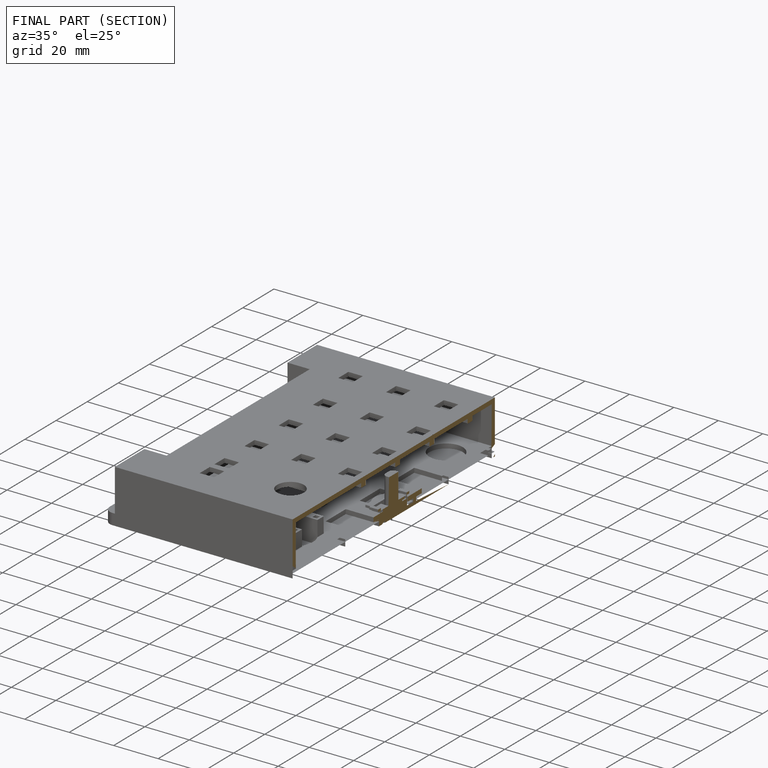
[diagram: finished part — half-section view (interior)]
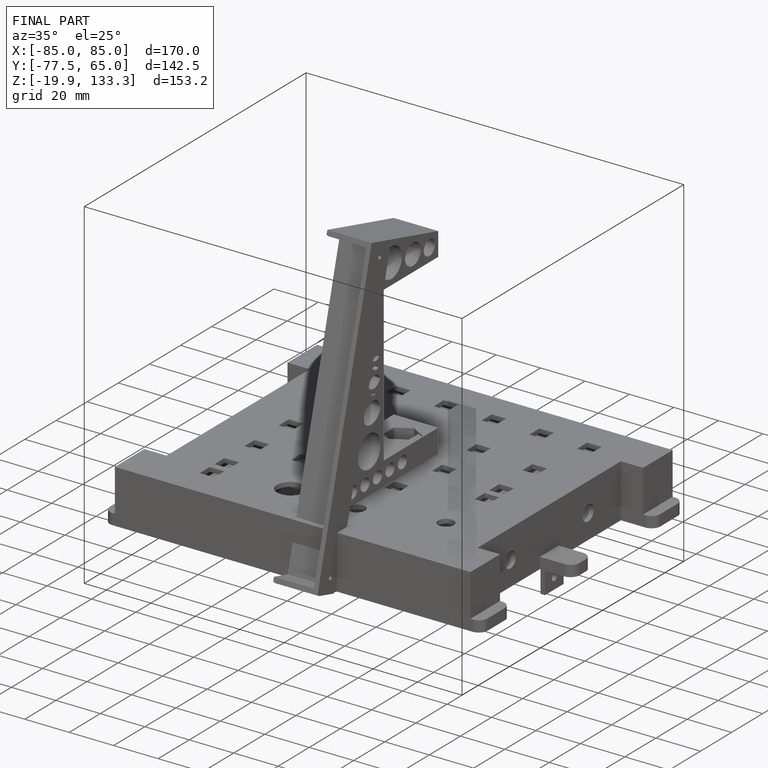
[diagram: finished part — iso view with bounding-box wireframe]
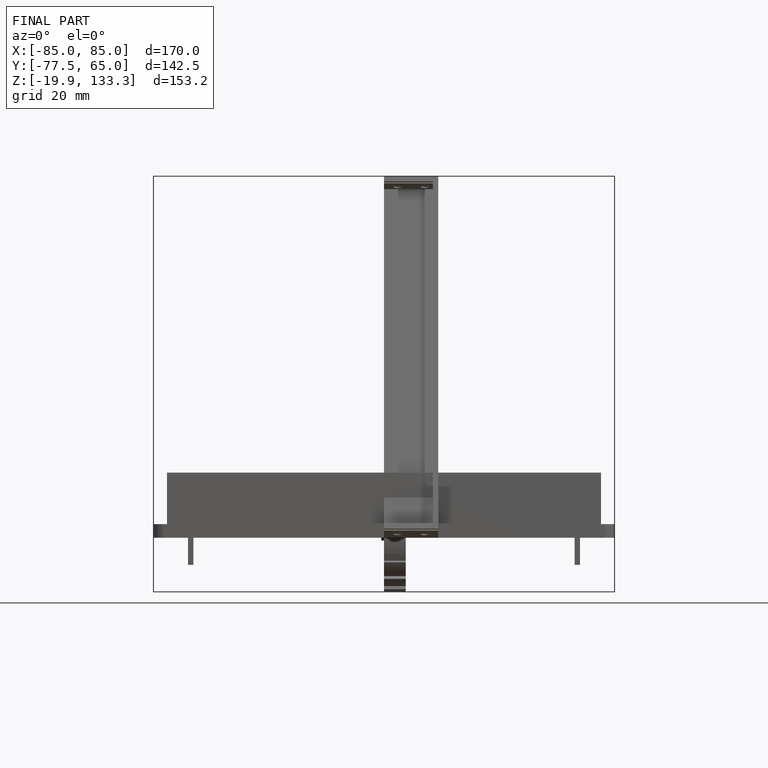
[diagram: finished part — front view with bounding-box wireframe]
